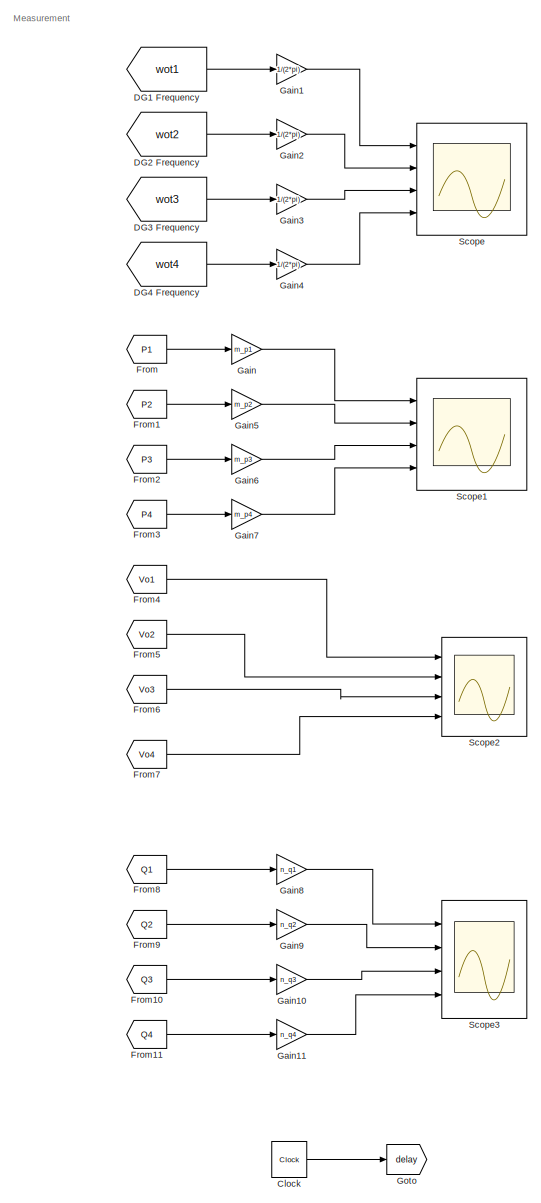
[diagram: root canvas - part 1/3, center side, full height]
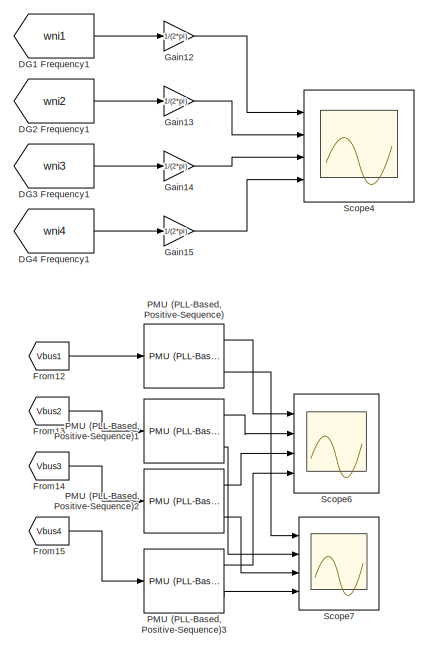
[diagram: root canvas - part 2/3, top right region]
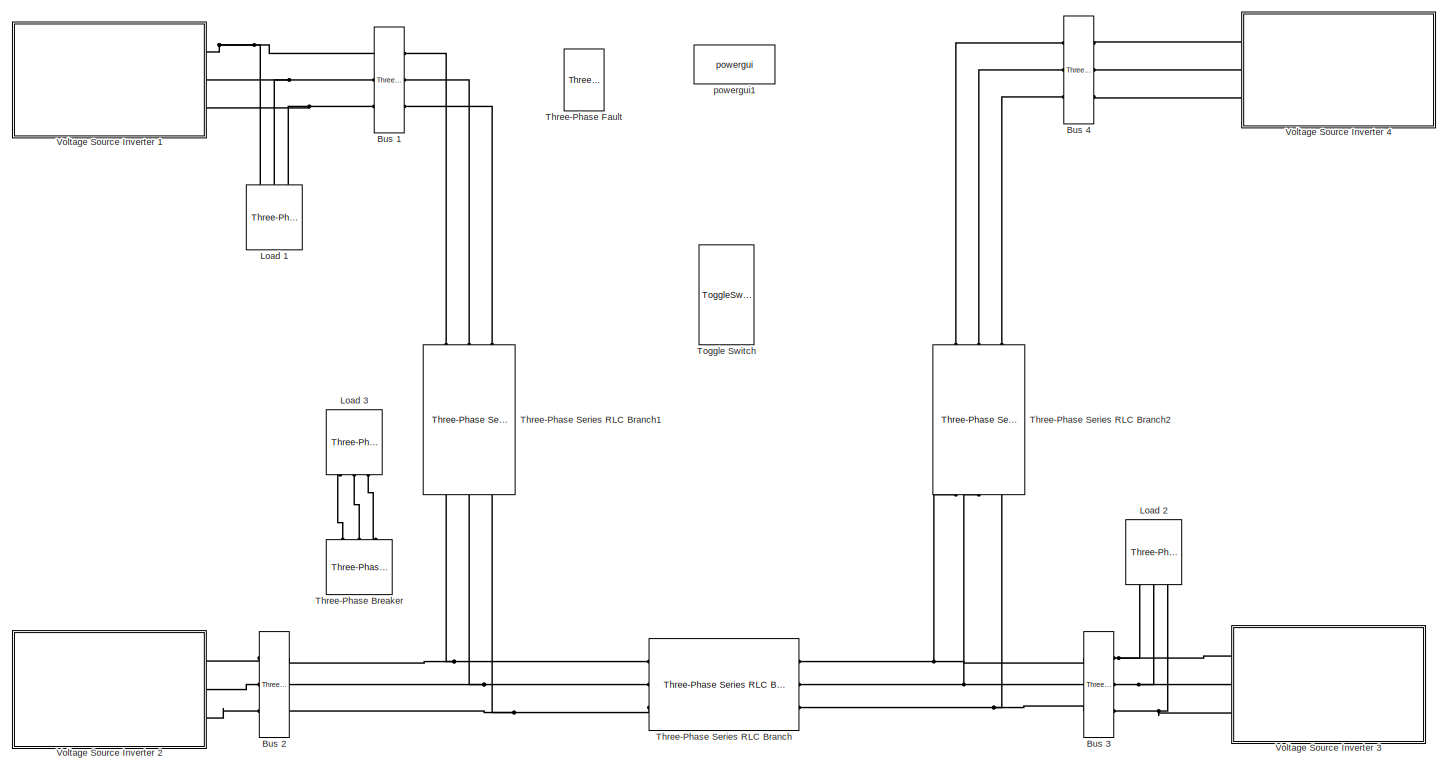
[diagram: root canvas - part 3/3, middle left region]
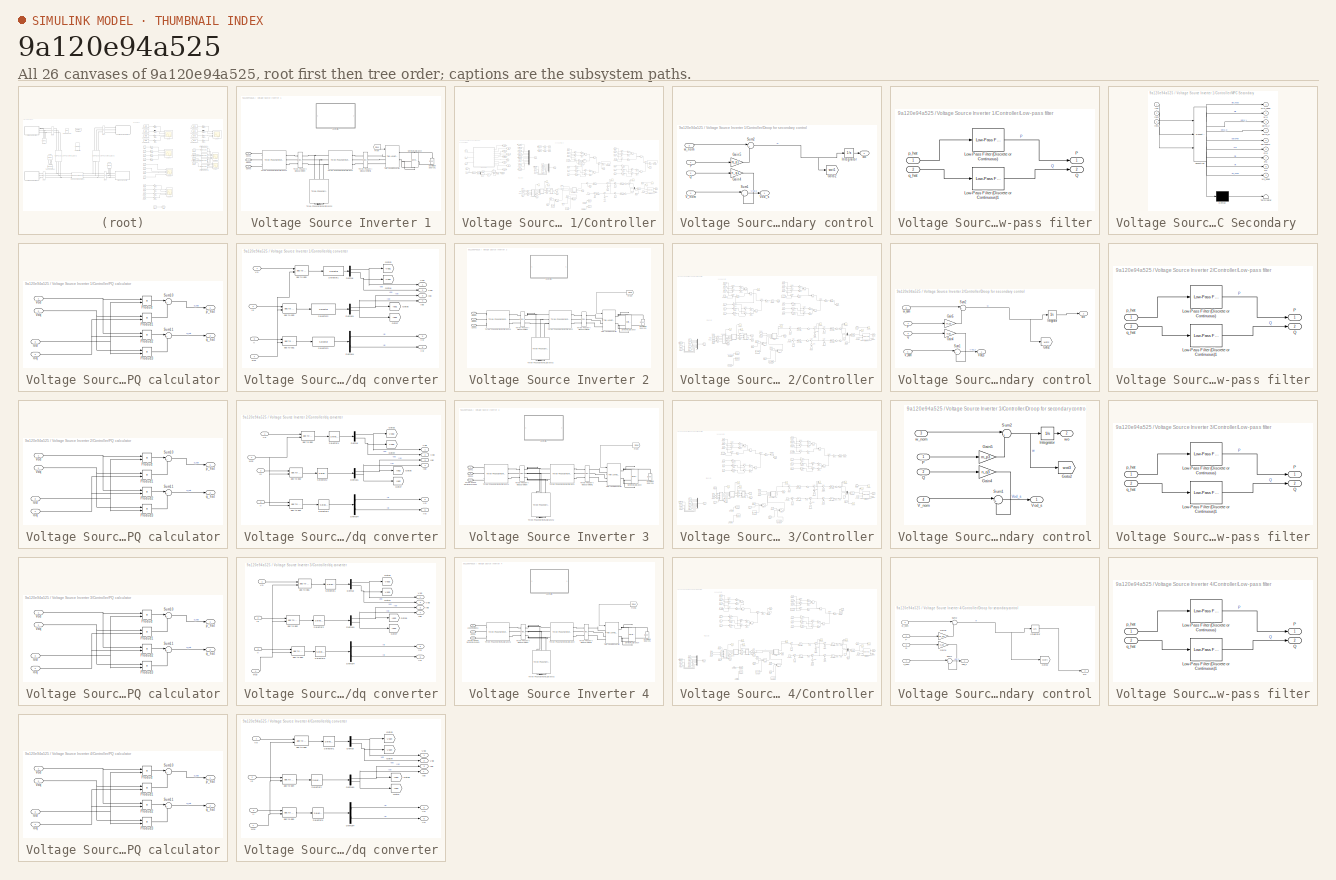
[diagram: thumbnail index - all 26 canvases of the model, root first then tree order]
MODEL slx_9a120e94a525
KIND model
CONFIG AbsTol = auto
CONFIG EnableMultiTasking = off
CONFIG FixedStep = auto
CONFIG MaxStep = auto
CONFIG MinStep = auto
CONFIG RelTol = 1e-3
CONFIG SampleTimeConstraint = Unconstrained
CONFIG SolverName = ode23tb
CONFIG StartTime = 0.0
CONFIG StopTime = 10
WORKSPACE source: mxarray member
WORKSPACE Ts: Simulink.Parameter (value not decoded)
WORKSPACE secondary_on: Simulink.Parameter (value not decoded)
BLOCK [Reference] Bus 1  REF=spsThreePhaseVIMeasurementLib/Three-Phase
V-I Measurement
  Ports = [0, 0, 0, 0, 0, 3, 3]
  SourceBlock = spsThreePhaseVIMeasurementLib/Three-Phase\nV-I Measurement
  SourceProductBaseCode = PS
  SourceType = Three-Phase VI Measurement
BLOCK [Reference] Bus 2  REF=spsThreePhaseVIMeasurementLib/Three-Phase
V-I Measurement
  Ports = [0, 0, 0, 0, 0, 3, 3]
  SourceBlock = spsThreePhaseVIMeasurementLib/Three-Phase\nV-I Measurement
  SourceProductBaseCode = PS
  SourceType = Three-Phase VI Measurement
BLOCK [Reference] Bus 3  REF=spsThreePhaseVIMeasurementLib/Three-Phase
V-I Measurement
  Ports = [0, 0, 0, 0, 0, 3, 3]
  SourceBlock = spsThreePhaseVIMeasurementLib/Three-Phase\nV-I Measurement
  SourceProductBaseCode = PS
  SourceType = Three-Phase VI Measurement
BLOCK [Reference] Bus 4  REF=spsThreePhaseVIMeasurementLib/Three-Phase
V-I Measurement
  Ports = [0, 0, 0, 0, 0, 3, 3]
  SourceBlock = spsThreePhaseVIMeasurementLib/Three-Phase\nV-I Measurement
  SourceProductBaseCode = PS
  SourceType = Three-Phase VI Measurement
BLOCK [Clock] Clock
  DisplayTime = on
BLOCK [From] DG1 Frequency
  GotoTag = wot1
  TagVisibility = global
BLOCK [From] DG1 Frequency1
  GotoTag = wni1
  TagVisibility = global
BLOCK [From] DG2 Frequency
  GotoTag = wot2
  TagVisibility = global
BLOCK [From] DG2 Frequency1
  GotoTag = wni2
  TagVisibility = global
BLOCK [From] DG3 Frequency
  GotoTag = wot3
  TagVisibility = global
BLOCK [From] DG3 Frequency1
  GotoTag = wni3
  TagVisibility = global
BLOCK [From] DG4 Frequency
  GotoTag = wot4
  TagVisibility = global
BLOCK [From] DG4 Frequency1
  GotoTag = wni4
  TagVisibility = global
BLOCK [From] From
  GotoTag = P1
  TagVisibility = global
BLOCK [From] From1
  GotoTag = P2
  TagVisibility = global
BLOCK [From] From10
  GotoTag = Q3
  TagVisibility = global
BLOCK [From] From11
  GotoTag = Q4
  TagVisibility = global
BLOCK [From] From12
  GotoTag = Vbus1
  TagVisibility = global
BLOCK [From] From13
  GotoTag = Vbus2
  TagVisibility = global
BLOCK [From] From14
  GotoTag = Vbus3
  TagVisibility = global
BLOCK [From] From15
  GotoTag = Vbus4
  TagVisibility = global
BLOCK [From] From2
  GotoTag = P3
  TagVisibility = global
BLOCK [From] From3
  GotoTag = P4
  TagVisibility = global
BLOCK [From] From4
  GotoTag = Vo1
  TagVisibility = global
BLOCK [From] From5
  GotoTag = Vo2
  TagVisibility = global
BLOCK [From] From6
  GotoTag = Vo3
  TagVisibility = global
BLOCK [From] From7
  GotoTag = Vo4
  TagVisibility = global
BLOCK [From] From8
  GotoTag = Q1
  TagVisibility = global
BLOCK [From] From9
  GotoTag = Q2
  TagVisibility = global
BLOCK [Gain] Gain
  Gain = m_p1
BLOCK [Gain] Gain1
  Gain = 1/(2*pi)
BLOCK [Gain] Gain10
  Gain = n_q3
BLOCK [Gain] Gain11
  Gain = n_q4
BLOCK [Gain] Gain12
  Gain = 1/(2*pi)
BLOCK [Gain] Gain13
  Gain = 1/(2*pi)
BLOCK [Gain] Gain14
  Gain = 1/(2*pi)
BLOCK [Gain] Gain15
  Gain = 1/(2*pi)
BLOCK [Gain] Gain2
  Gain = 1/(2*pi)
BLOCK [Gain] Gain3
  Gain = 1/(2*pi)
BLOCK [Gain] Gain4
  Gain = 1/(2*pi)
BLOCK [Gain] Gain5
  Gain = m_p2
BLOCK [Gain] Gain6
  Gain = m_p3
BLOCK [Gain] Gain7
  Gain = m_p4
BLOCK [Gain] Gain8
  Gain = n_q1
BLOCK [Gain] Gain9
  Gain = n_q2
BLOCK [Goto] Goto
  GotoTag = delay
  TagVisibility = global
BLOCK [Reference] Load 1  REF=spsThreePhaseSeriesRLCLoadLib/Three-Phase
Series RLC Load
  AttributesFormatString = \n
  NameLocation = right
  Ports = [0, 0, 0, 0, 0, 3]
  SourceBlock = spsThreePhaseSeriesRLCLoadLib/Three-Phase\nSeries RLC Load
  SourceProductBaseCode = PS
  SourceType = Three-Phase Series RLC Load
BLOCK [Reference] Load 2  REF=spsThreePhaseSeriesRLCLoadLib/Three-Phase
Series RLC Load
  AttributesFormatString = \n
  NameLocation = right
  Ports = [0, 0, 0, 0, 0, 3]
  SourceBlock = spsThreePhaseSeriesRLCLoadLib/Three-Phase\nSeries RLC Load
  SourceProductBaseCode = PS
  SourceType = Three-Phase Series RLC Load
BLOCK [Reference] Load 3  REF=spsThreePhaseSeriesRLCLoadLib/Three-Phase
Series RLC Load
  AttributesFormatString = \n
  NameLocation = left
  Ports = [0, 0, 0, 0, 0, 3]
  SourceBlock = spsThreePhaseSeriesRLCLoadLib/Three-Phase\nSeries RLC Load
  SourceProductBaseCode = PS
  SourceType = Three-Phase Series RLC Load
BLOCK [Reference] PMU (PLL-Based, Positive-Sequence)  REF=spsPMUPLLBasedPositiveSequenceLib/PMU
(PLL-Based,
Positive-Sequence)
  Ports = [1, 3]
  SourceBlock = spsPMUPLLBasedPositiveSequenceLib/PMU\n(PLL-Based,\nPositive-Sequence)
  SourceProductBaseCode = PS
  SourceType = PMU (PLL-Based, Positive-Sequence)
BLOCK [Reference] PMU (PLL-Based, Positive-Sequence)1  REF=spsPMUPLLBasedPositiveSequenceLib/PMU
(PLL-Based,
Positive-Sequence)
  Ports = [1, 3]
  SourceBlock = spsPMUPLLBasedPositiveSequenceLib/PMU\n(PLL-Based,\nPositive-Sequence)
  SourceProductBaseCode = PS
  SourceType = PMU (PLL-Based, Positive-Sequence)
BLOCK [Reference] PMU (PLL-Based, Positive-Sequence)2  REF=spsPMUPLLBasedPositiveSequenceLib/PMU
(PLL-Based,
Positive-Sequence)
  Ports = [1, 3]
  SourceBlock = spsPMUPLLBasedPositiveSequenceLib/PMU\n(PLL-Based,\nPositive-Sequence)
  SourceProductBaseCode = PS
  SourceType = PMU (PLL-Based, Positive-Sequence)
BLOCK [Reference] PMU (PLL-Based, Positive-Sequence)3  REF=spsPMUPLLBasedPositiveSequenceLib/PMU
(PLL-Based,
Positive-Sequence)
  Ports = [1, 3]
  SourceBlock = spsPMUPLLBasedPositiveSequenceLib/PMU\n(PLL-Based,\nPositive-Sequence)
  SourceProductBaseCode = PS
  SourceType = PMU (PLL-Based, Positive-Sequence)
BLOCK [Scope] Scope
  Floating = off
  NumInputPorts = 4
  Ports = [4]
  ScopeSpecificationString = Simulink.scopes.TimeScopeBlockCfg('CurrentConfiguration', extmgr.ConfigurationSet(extmgr.Configuration('Core','General UI',true,'FigureColor',[1 1 1]),extmgr.Configuration('Core','Source UI',true),extmgr.Configuration('Sources','WiredSimulink',true,'DataLoggingVariableName','ScopeData1'),extmgr.Configuration('Visuals','Time Domain',true,'SerializedDisplays',{struct('MinYLimReal','49.60348','MaxYLi...<+2287ch>
BLOCK [Scope] Scope1
  Floating = off
  NumInputPorts = 4
  Ports = [4]
  ScopeSpecificationString = Simulink.scopes.TimeScopeBlockCfg('CurrentConfiguration', extmgr.ConfigurationSet(extmgr.Configuration('Core','General UI',true,'FigureColor',[1 1 1]),extmgr.Configuration('Core','Source UI',true),extmgr.Configuration('Sources','WiredSimulink',true,'DataLoggingVariableName','ScopeData1'),extmgr.Configuration('Visuals','Time Domain',true,'SerializedDisplays',{struct('MinYLimReal','-1.83894','MaxYLi...<+1945ch>
BLOCK [Scope] Scope2
  Floating = off
  NumInputPorts = 4
  Ports = [4]
  ScopeSpecificationString = Simulink.scopes.TimeScopeBlockCfg('CurrentConfiguration', extmgr.ConfigurationSet(extmgr.Configuration('Core','General UI',true,'FigureColor',[1 1 1]),extmgr.Configuration('Core','Source UI',true),extmgr.Configuration('Sources','WiredSimulink',true,'DataLoggingVariableName','ScopeData2'),extmgr.Configuration('Visuals','Time Domain',true,'SerializedDisplays',{struct('MinYLimReal','-341.47125','MaxY...<+4454ch>
BLOCK [Scope] Scope3
  Floating = off
  NumInputPorts = 4
  Ports = [4]
  ScopeSpecificationString = Simulink.scopes.TimeScopeBlockCfg('CurrentConfiguration', extmgr.ConfigurationSet(extmgr.Configuration('Core','General UI',true),extmgr.Configuration('Core','Source UI',true),extmgr.Configuration('Sources','WiredSimulink',true,'DataLoggingVariableName','ScopeData3'),extmgr.Configuration('Visuals','Time Domain',true,'SerializedDisplays',{struct('MinYLimReal','-21.21342','MaxYLimReal','10.77202','YL...<+1472ch>
BLOCK [Scope] Scope4
  Floating = off
  NumInputPorts = 4
  Ports = [4]
  ScopeSpecificationString = Simulink.scopes.TimeScopeBlockCfg('CurrentConfiguration', extmgr.ConfigurationSet(extmgr.Configuration('Core','General UI',true,'FigureColor',[1 1 1]),extmgr.Configuration('Core','Source UI',true),extmgr.Configuration('Sources','WiredSimulink',true,'DataLoggingVariableName','ScopeData1'),extmgr.Configuration('Visuals','Time Domain',true,'SerializedDisplays',{struct('MinYLimReal','49.08707','MaxYLi...<+1960ch>
BLOCK [Scope] Scope6
  Floating = off
  NumInputPorts = 4
  Ports = [4]
  ScopeSpecificationString = Simulink.scopes.TimeScopeBlockCfg('CurrentConfiguration', extmgr.ConfigurationSet(extmgr.Configuration('Core','General UI',true,'FigureColor',[1 1 1]),extmgr.Configuration('Core','Source UI',true),extmgr.Configuration('Sources','WiredSimulink',true,'DataLoggingVariableName','ScopeData1'),extmgr.Configuration('Visuals','Time Domain',true,'SerializedDisplays',{struct('MinYLimReal','0.77004','MaxYLim...<+4385ch>
BLOCK [Scope] Scope7
  Floating = off
  NumInputPorts = 4
  Ports = [4]
  ScopeSpecificationString = Simulink.scopes.TimeScopeBlockCfg('CurrentConfiguration', extmgr.ConfigurationSet(extmgr.Configuration('Core','General UI',true,'FigureColor',[1 1 1]),extmgr.Configuration('Core','Source UI',true),extmgr.Configuration('Sources','WiredSimulink',true,'DataLoggingVariableName','ScopeData1'),extmgr.Configuration('Visuals','Time Domain',true,'SerializedDisplays',{struct('MinYLimReal','49.55323','MaxYLi...<+1950ch>
BLOCK [Reference] Three-Phase Breaker  REF=spsThreePhaseBreakerLib/Three-Phase Breaker
  NameLocation = right
  Ports = [0, 0, 0, 0, 0, 3, 3]
  SourceBlock = spsThreePhaseBreakerLib/Three-Phase Breaker
  SourceProductBaseCode = PS
  SourceType = Three-Phase Breaker
BLOCK [Reference] Three-Phase Fault  REF=spsThreePhaseFaultLib/Three-Phase Fault
  Commented = on
  Ports = [0, 0, 0, 0, 0, 3]
  SourceBlock = spsThreePhaseFaultLib/Three-Phase Fault
  SourceProductBaseCode = PS
  SourceType = Three-Phase Fault
BLOCK [Reference] Three-Phase Series RLC Branch  REF=spsThreePhaseSeriesRLCBranchLib/Three-Phase
Series RLC Branch
  AttributesFormatString = \n
  Ports = [0, 0, 0, 0, 0, 3, 3]
  SourceBlock = spsThreePhaseSeriesRLCBranchLib/Three-Phase\nSeries RLC Branch
  SourceProductBaseCode = PS
  SourceType = Three-Phase Series RLC Branch
BLOCK [Reference] Three-Phase Series RLC Branch1  REF=spsThreePhaseSeriesRLCBranchLib/Three-Phase
Series RLC Branch
  AttributesFormatString = \n
  NameLocation = left
  Ports = [0, 0, 0, 0, 0, 3, 3]
  SourceBlock = spsThreePhaseSeriesRLCBranchLib/Three-Phase\nSeries RLC Branch
  SourceProductBaseCode = PS
  SourceType = Three-Phase Series RLC Branch
BLOCK [Reference] Three-Phase Series RLC Branch2  REF=spsThreePhaseSeriesRLCBranchLib/Three-Phase
Series RLC Branch
  AttributesFormatString = \n
  NameLocation = left
  Ports = [0, 0, 0, 0, 0, 3, 3]
  SourceBlock = spsThreePhaseSeriesRLCBranchLib/Three-Phase\nSeries RLC Branch
  SourceProductBaseCode = PS
  SourceType = Three-Phase Series RLC Branch
BLOCK [ToggleSwitchBlock] Toggle Switch
BLOCK [SubSystem] Voltage Source Inverter 1
  Ports = [0, 0, 0, 0, 0, 3]
  RequestExecContextInheritance = off
BLOCK [PMIOPort] Voltage Source Inverter 1/Conn1
  Side = Left
BLOCK [PMIOPort] Voltage Source Inverter 1/Conn2
  Port = 2
  Side = Left
BLOCK [PMIOPort] Voltage Source Inverter 1/Conn3
  Port = 3
  Side = Left
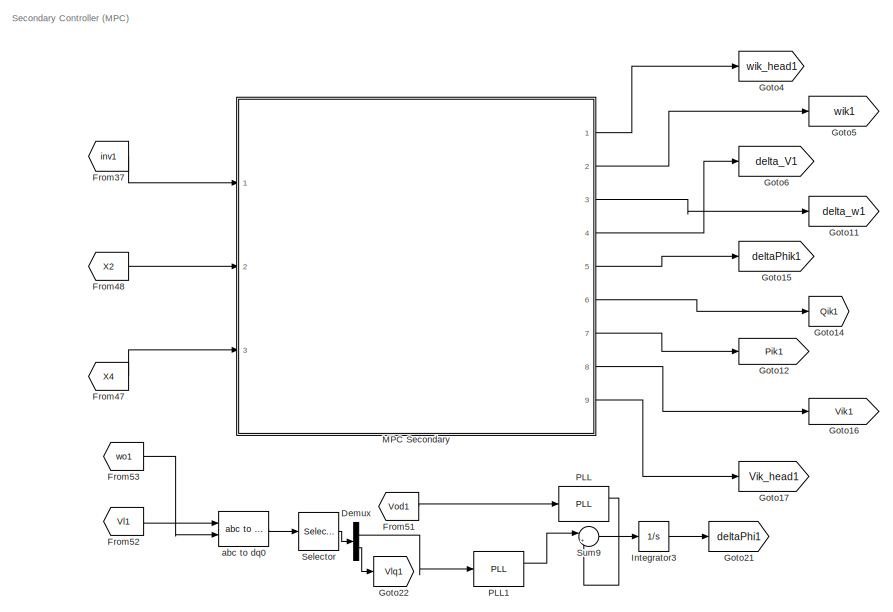
[diagram: Voltage Source Inverter 1/Controller - part 1/5, top left region]
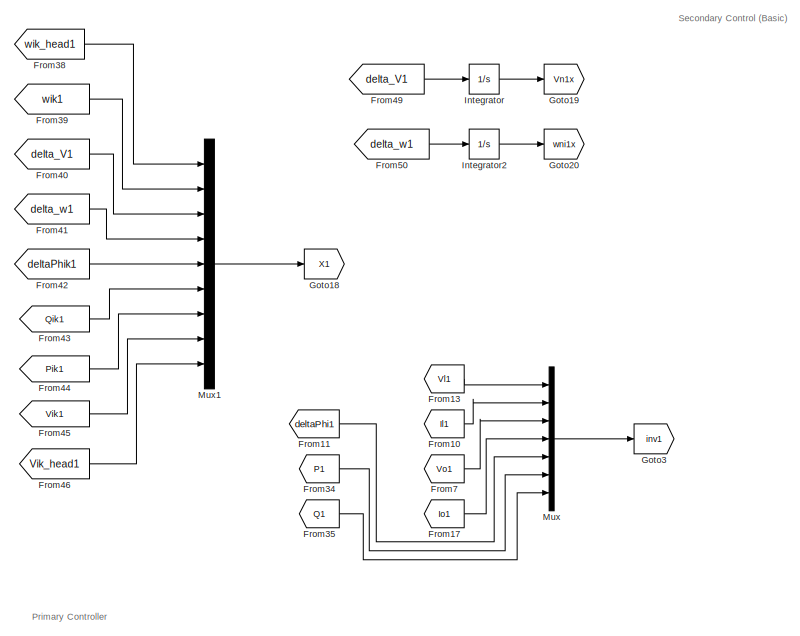
[diagram: Voltage Source Inverter 1/Controller - part 2/5, top center region]
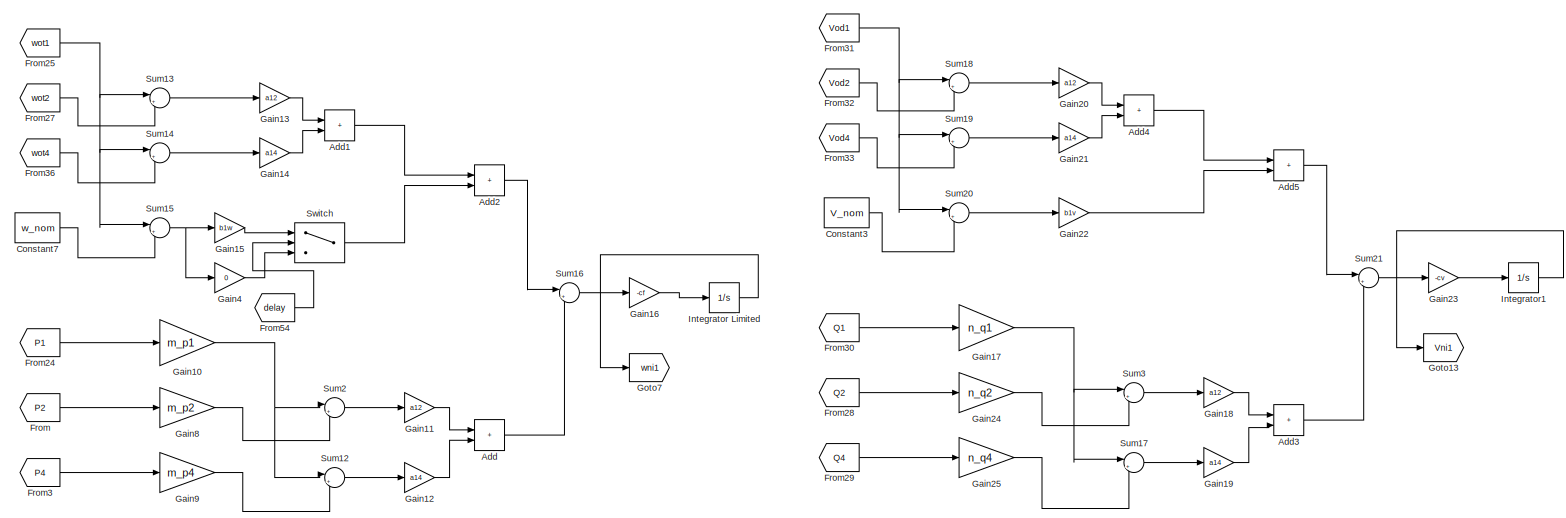
[diagram: Voltage Source Inverter 1/Controller - part 3/5, top right region]
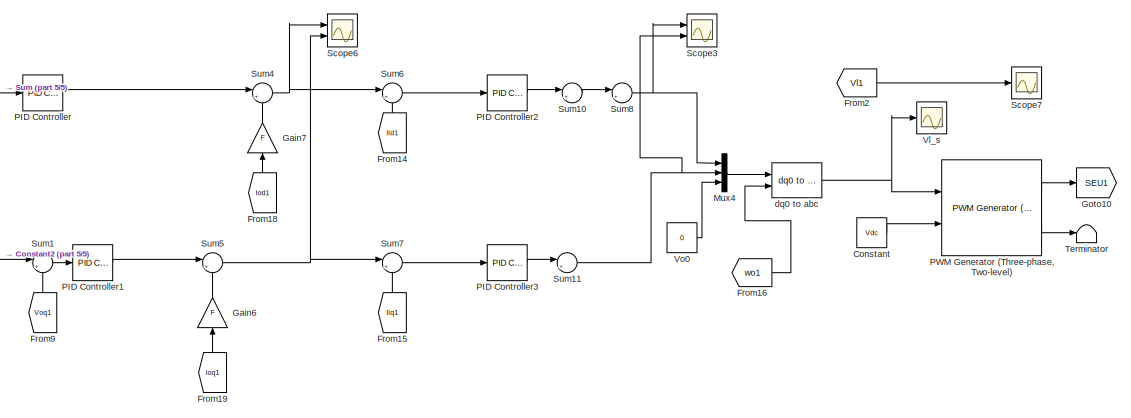
[diagram: Voltage Source Inverter 1/Controller - part 4/5, bottom right region]
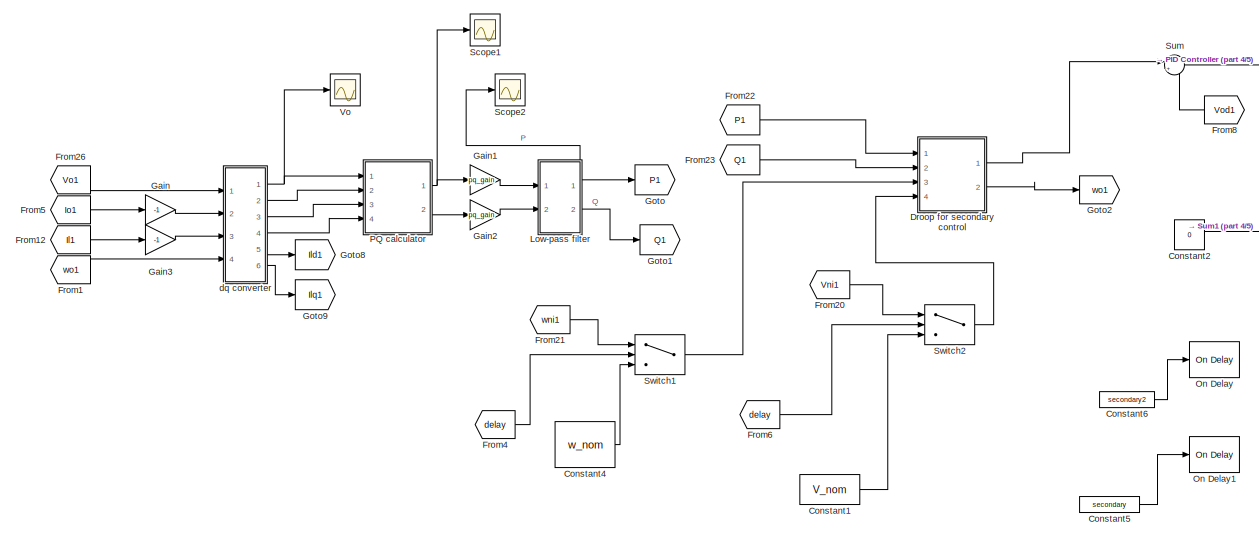
[diagram: Voltage Source Inverter 1/Controller - part 5/5, bottom center region]
BLOCK [SubSystem] Voltage Source Inverter 1/Controller
  Ports = []
  RequestExecContextInheritance = off
BLOCK [Sum] Voltage Source Inverter 1/Controller/Add
  IconShape = rectangular
  Ports = [2, 1]
BLOCK [Sum] Voltage Source Inverter 1/Controller/Add1
  IconShape = rectangular
  Ports = [2, 1]
BLOCK [Sum] Voltage Source Inverter 1/Controller/Add2
  IconShape = rectangular
  Ports = [2, 1]
BLOCK [Sum] Voltage Source Inverter 1/Controller/Add3
  IconShape = rectangular
  Ports = [2, 1]
BLOCK [Sum] Voltage Source Inverter 1/Controller/Add4
  IconShape = rectangular
  Ports = [2, 1]
BLOCK [Sum] Voltage Source Inverter 1/Controller/Add5
  IconShape = rectangular
  Ports = [2, 1]
BLOCK [Constant] Voltage Source Inverter 1/Controller/Constant
  Value = Vdc
BLOCK [Constant] Voltage Source Inverter 1/Controller/Constant1
  Value = V_nom
BLOCK [Constant] Voltage Source Inverter 1/Controller/Constant2
  Value = 0
BLOCK [Constant] Voltage Source Inverter 1/Controller/Constant3
  Value = V_nom
BLOCK [Constant] Voltage Source Inverter 1/Controller/Constant4
  Value = w_nom
BLOCK [Constant] Voltage Source Inverter 1/Controller/Constant5
  Value = secondary
BLOCK [Constant] Voltage Source Inverter 1/Controller/Constant6
  Value = secondary2
BLOCK [Constant] Voltage Source Inverter 1/Controller/Constant7
  Value = w_nom
BLOCK [Demux] Voltage Source Inverter 1/Controller/Demux
  Commented = on
  Outputs = 2
  Ports = [1, 2]
BLOCK [SubSystem] Voltage Source Inverter 1/Controller/Droop for secondary control
  Ports = [4, 2]
  RequestExecContextInheritance = off
BLOCK [Gain] Voltage Source Inverter 1/Controller/Droop for secondary control/Gain4
  Gain = n_q1
BLOCK [Gain] Voltage Source Inverter 1/Controller/Droop for secondary control/Gain5
  Gain = m_p1
BLOCK [Goto] Voltage Source Inverter 1/Controller/Droop for secondary control/Goto2
  GotoTag = wot1
  TagVisibility = global
BLOCK [Integrator] Voltage Source Inverter 1/Controller/Droop for secondary control/Integrator
  Ports = [1, 1]
  WrapState = on
  WrappedStateLowerValue = 0
  WrappedStateUpperValue = 2*pi
BLOCK [Inport] Voltage Source Inverter 1/Controller/Droop for secondary control/P
BLOCK [Inport] Voltage Source Inverter 1/Controller/Droop for secondary control/Q
  Port = 2
BLOCK [Sum] Voltage Source Inverter 1/Controller/Droop for secondary control/Sum1
  Inputs = |+-
  Ports = [2, 1]
BLOCK [Sum] Voltage Source Inverter 1/Controller/Droop for secondary control/Sum2
  Inputs = |+-
  Ports = [2, 1]
BLOCK [Inport] Voltage Source Inverter 1/Controller/Droop for secondary control/V_nom
  Port = 4
BLOCK [Outport] Voltage Source Inverter 1/Controller/Droop for secondary control/Vod_s
BLOCK [Inport] Voltage Source Inverter 1/Controller/Droop for secondary control/w_nom
  Port = 3
BLOCK [Outport] Voltage Source Inverter 1/Controller/Droop for secondary control/wo
  Port = 2
BLOCK [From] Voltage Source Inverter 1/Controller/From
  GotoTag = P2
  TagVisibility = global
BLOCK [From] Voltage Source Inverter 1/Controller/From1
  GotoTag = wo1
  TagVisibility = global
BLOCK [From] Voltage Source Inverter 1/Controller/From10
  Commented = on
  GotoTag = Il1
  TagVisibility = global
BLOCK [From] Voltage Source Inverter 1/Controller/From11
  Commented = on
  GotoTag = deltaPhi1
  TagVisibility = global
BLOCK [From] Voltage Source Inverter 1/Controller/From12
  GotoTag = Il1
  TagVisibility = global
BLOCK [From] Voltage Source Inverter 1/Controller/From13
  Commented = on
  GotoTag = Vl1
  TagVisibility = global
BLOCK [From] Voltage Source Inverter 1/Controller/From14
  GotoTag = Ild1
  NameLocation = right
  TagVisibility = global
BLOCK [From] Voltage Source Inverter 1/Controller/From15
  GotoTag = Ilq1
  NameLocation = right
  TagVisibility = global
BLOCK [From] Voltage Source Inverter 1/Controller/From16
  GotoTag = wo1
  TagVisibility = global
BLOCK [From] Voltage Source Inverter 1/Controller/From17
  Commented = on
  GotoTag = Io1
  TagVisibility = global
BLOCK [From] Voltage Source Inverter 1/Controller/From18
  GotoTag = Iod1
  NameLocation = right
  TagVisibility = global
BLOCK [From] Voltage Source Inverter 1/Controller/From19
  GotoTag = Ioq1
  NameLocation = right
  TagVisibility = global
BLOCK [From] Voltage Source Inverter 1/Controller/From2
  GotoTag = Vl1
  TagVisibility = global
BLOCK [From] Voltage Source Inverter 1/Controller/From20
  GotoTag = Vni1
  TagVisibility = global
BLOCK [From] Voltage Source Inverter 1/Controller/From21
  GotoTag = wni1
  TagVisibility = global
BLOCK [From] Voltage Source Inverter 1/Controller/From22
  GotoTag = P1
  TagVisibility = global
BLOCK [From] Voltage Source Inverter 1/Controller/From23
  GotoTag = Q1
  TagVisibility = global
BLOCK [From] Voltage Source Inverter 1/Controller/From24
  GotoTag = P1
  TagVisibility = global
BLOCK [From] Voltage Source Inverter 1/Controller/From25
  GotoTag = wot1
  TagVisibility = global
BLOCK [From] Voltage Source Inverter 1/Controller/From26
  GotoTag = Vo1
  TagVisibility = global
BLOCK [From] Voltage Source Inverter 1/Controller/From27
  GotoTag = wot2
  TagVisibility = global
BLOCK [From] Voltage Source Inverter 1/Controller/From28
  GotoTag = Q2
  TagVisibility = global
BLOCK [From] Voltage Source Inverter 1/Controller/From29
  GotoTag = Q4
  TagVisibility = global
BLOCK [From] Voltage Source Inverter 1/Controller/From3
  GotoTag = P4
  TagVisibility = global
BLOCK [From] Voltage Source Inverter 1/Controller/From30
  GotoTag = Q1
  TagVisibility = global
BLOCK [From] Voltage Source Inverter 1/Controller/From31
  GotoTag = Vod1
  TagVisibility = global
BLOCK [From] Voltage Source Inverter 1/Controller/From32
  GotoTag = Vod2
  TagVisibility = global
BLOCK [From] Voltage Source Inverter 1/Controller/From33
  GotoTag = Vod4
  TagVisibility = global
BLOCK [From] Voltage Source Inverter 1/Controller/From34
  Commented = on
  GotoTag = P1
  TagVisibility = global
BLOCK [From] Voltage Source Inverter 1/Controller/From35
  Commented = on
  GotoTag = Q1
  TagVisibility = global
BLOCK [From] Voltage Source Inverter 1/Controller/From36
  GotoTag = wot4
  TagVisibility = global
BLOCK [From] Voltage Source Inverter 1/Controller/From37
  Commented = on
  GotoTag = inv1
  TagVisibility = global
BLOCK [From] Voltage Source Inverter 1/Controller/From38
  Commented = on
  GotoTag = wik_head1
  TagVisibility = global
BLOCK [From] Voltage Source Inverter 1/Controller/From39
  Commented = on
  GotoTag = wik1
  TagVisibility = global
BLOCK [From] Voltage Source Inverter 1/Controller/From4
  GotoTag = delay
  TagVisibility = global
BLOCK [From] Voltage Source Inverter 1/Controller/From40
  Commented = on
  GotoTag = delta_V1
  TagVisibility = global
BLOCK [From] Voltage Source Inverter 1/Controller/From41
  Commented = on
  GotoTag = delta_w1
  TagVisibility = global
BLOCK [From] Voltage Source Inverter 1/Controller/From42
  Commented = on
  GotoTag = deltaPhik1
  TagVisibility = global
BLOCK [From] Voltage Source Inverter 1/Controller/From43
  Commented = on
  GotoTag = Qik1
  TagVisibility = global
BLOCK [From] Voltage Source Inverter 1/Controller/From44
  Commented = on
  GotoTag = Pik1
  TagVisibility = global
BLOCK [From] Voltage Source Inverter 1/Controller/From45
  Commented = on
  GotoTag = Vik1
  TagVisibility = global
BLOCK [From] Voltage Source Inverter 1/Controller/From46
  Commented = on
  GotoTag = Vik_head1
  TagVisibility = global
BLOCK [From] Voltage Source Inverter 1/Controller/From47
  Commented = on
  GotoTag = X4
BLOCK [From] Voltage Source Inverter 1/Controller/From48
  Commented = on
  GotoTag = X2
BLOCK [From] Voltage Source Inverter 1/Controller/From49
  Commented = on
  GotoTag = delta_V1
  TagVisibility = global
BLOCK [From] Voltage Source Inverter 1/Controller/From5
  GotoTag = Io1
  TagVisibility = global
BLOCK [From] Voltage Source Inverter 1/Controller/From50
  Commented = on
  GotoTag = delta_w1
  TagVisibility = global
BLOCK [From] Voltage Source Inverter 1/Controller/From51
  Commented = on
  GotoTag = Vod1
  TagVisibility = global
BLOCK [From] Voltage Source Inverter 1/Controller/From52
  Commented = on
  GotoTag = Vl1
  TagVisibility = global
BLOCK [From] Voltage Source Inverter 1/Controller/From53
  Commented = on
  GotoTag = wo1
  TagVisibility = global
BLOCK [From] Voltage Source Inverter 1/Controller/From54
  GotoTag = delay
  TagVisibility = global
BLOCK [From] Voltage Source Inverter 1/Controller/From6
  GotoTag = delay
  TagVisibility = global
BLOCK [From] Voltage Source Inverter 1/Controller/From7
  Commented = on
  GotoTag = Vo1
  TagVisibility = global
BLOCK [From] Voltage Source Inverter 1/Controller/From8
  GotoTag = Vod1
  NameLocation = top
  TagVisibility = global
BLOCK [From] Voltage Source Inverter 1/Controller/From9
  GotoTag = Voq1
  NameLocation = right
  TagVisibility = global
BLOCK [Gain] Voltage Source Inverter 1/Controller/Gain
  Gain = -1
BLOCK [Gain] Voltage Source Inverter 1/Controller/Gain1
  Gain = pq_gain
BLOCK [Gain] Voltage Source Inverter 1/Controller/Gain10
  Gain = m_p1
BLOCK [Gain] Voltage Source Inverter 1/Controller/Gain11
  Gain = a12
BLOCK [Gain] Voltage Source Inverter 1/Controller/Gain12
  Gain = a14
BLOCK [Gain] Voltage Source Inverter 1/Controller/Gain13
  Gain = a12
BLOCK [Gain] Voltage Source Inverter 1/Controller/Gain14
  Gain = a14
BLOCK [Gain] Voltage Source Inverter 1/Controller/Gain15
  Gain = b1w
BLOCK [Gain] Voltage Source Inverter 1/Controller/Gain16
  Gain = -cf
BLOCK [Gain] Voltage Source Inverter 1/Controller/Gain17
  Gain = n_q1
BLOCK [Gain] Voltage Source Inverter 1/Controller/Gain18
  Gain = a12
BLOCK [Gain] Voltage Source Inverter 1/Controller/Gain19
  Gain = a14
BLOCK [Gain] Voltage Source Inverter 1/Controller/Gain2
  Gain = pq_gain
BLOCK [Gain] Voltage Source Inverter 1/Controller/Gain20
  Gain = a12
BLOCK [Gain] Voltage Source Inverter 1/Controller/Gain21
  Gain = a14
BLOCK [Gain] Voltage Source Inverter 1/Controller/Gain22
  Gain = b1v
BLOCK [Gain] Voltage Source Inverter 1/Controller/Gain23
  Gain = -cv
BLOCK [Gain] Voltage Source Inverter 1/Controller/Gain24
  Gain = n_q2
BLOCK [Gain] Voltage Source Inverter 1/Controller/Gain25
  Gain = n_q4
BLOCK [Gain] Voltage Source Inverter 1/Controller/Gain3
  Gain = -1
BLOCK [Gain] Voltage Source Inverter 1/Controller/Gain4
  Gain = 0
BLOCK [Gain] Voltage Source Inverter 1/Controller/Gain6
  Gain = F
  NameLocation = right
BLOCK [Gain] Voltage Source Inverter 1/Controller/Gain7
  Gain = F
  NameLocation = right
BLOCK [Gain] Voltage Source Inverter 1/Controller/Gain8
  Gain = m_p2
BLOCK [Gain] Voltage Source Inverter 1/Controller/Gain9
  Gain = m_p4
BLOCK [Goto] Voltage Source Inverter 1/Controller/Goto
  GotoTag = P1
  TagVisibility = global
BLOCK [Goto] Voltage Source Inverter 1/Controller/Goto1
  GotoTag = Q1
  TagVisibility = global
BLOCK [Goto] Voltage Source Inverter 1/Controller/Goto10
  GotoTag = SEU1
  TagVisibility = global
BLOCK [Goto] Voltage Source Inverter 1/Controller/Goto11
  Commented = on
  GotoTag = delta_w1
  TagVisibility = global
BLOCK [Goto] Voltage Source Inverter 1/Controller/Goto12
  Commented = on
  GotoTag = Pik1
  TagVisibility = global
BLOCK [Goto] Voltage Source Inverter 1/Controller/Goto13
  GotoTag = Vni1
  TagVisibility = global
BLOCK [Goto] Voltage Source Inverter 1/Controller/Goto14
  Commented = on
  GotoTag = Qik1
  TagVisibility = global
BLOCK [Goto] Voltage Source Inverter 1/Controller/Goto15
  Commented = on
  GotoTag = deltaPhik1
  TagVisibility = global
BLOCK [Goto] Voltage Source Inverter 1/Controller/Goto16
  Commented = on
  GotoTag = Vik1
  TagVisibility = global
BLOCK [Goto] Voltage Source Inverter 1/Controller/Goto17
  Commented = on
  GotoTag = Vik_head1
  TagVisibility = global
BLOCK [Goto] Voltage Source Inverter 1/Controller/Goto18
  Commented = on
  GotoTag = X1
BLOCK [Goto] Voltage Source Inverter 1/Controller/Goto19
  Commented = on
  GotoTag = Vn1x
BLOCK [Goto] Voltage Source Inverter 1/Controller/Goto2
  GotoTag = wo1
  TagVisibility = global
BLOCK [Goto] Voltage Source Inverter 1/Controller/Goto20
  Commented = on
  GotoTag = wni1x
BLOCK [Goto] Voltage Source Inverter 1/Controller/Goto21
  Commented = on
  GotoTag = deltaPhi1
  TagVisibility = global
BLOCK [Goto] Voltage Source Inverter 1/Controller/Goto22
  Commented = on
  GotoTag = Vlq1
  TagVisibility = global
BLOCK [Goto] Voltage Source Inverter 1/Controller/Goto3
  Commented = on
  GotoTag = inv1
  TagVisibility = global
BLOCK [Goto] Voltage Source Inverter 1/Controller/Goto4
  Commented = on
  GotoTag = wik_head1
  TagVisibility = global
BLOCK [Goto] Voltage Source Inverter 1/Controller/Goto5
  Commented = on
  GotoTag = wik1
  TagVisibility = global
BLOCK [Goto] Voltage Source Inverter 1/Controller/Goto6
  Commented = on
  GotoTag = delta_V1
  TagVisibility = global
BLOCK [Goto] Voltage Source Inverter 1/Controller/Goto7
  GotoTag = wni1
  TagVisibility = global
BLOCK [Goto] Voltage Source Inverter 1/Controller/Goto8
  GotoTag = Ild1
  TagVisibility = global
BLOCK [Goto] Voltage Source Inverter 1/Controller/Goto9
  GotoTag = Ilq1
  TagVisibility = global
BLOCK [Integrator] Voltage Source Inverter 1/Controller/Integrator
  Commented = on
  Ports = [1, 1]
BLOCK [Integrator] Voltage Source Inverter 1/Controller/Integrator Limited
  InitialCondition = 50*2*pi
  LowerSaturationLimit = 50*2*pi
  Ports = [1, 1]
  UpperSaturationLimit = 51*2*pi
BLOCK [Integrator] Voltage Source Inverter 1/Controller/Integrator1
  InitialCondition = 311
  LowerSaturationLimit = 248.90
  Ports = [1, 1]
  UpperSaturationLimit = 373.35
BLOCK [Integrator] Voltage Source Inverter 1/Controller/Integrator2
  Commented = on
  Ports = [1, 1]
BLOCK [Integrator] Voltage Source Inverter 1/Controller/Integrator3
  Commented = on
  Ports = [1, 1]
BLOCK [SubSystem] Voltage Source Inverter 1/Controller/Low-pass filter
  Ports = [2, 2]
  RequestExecContextInheritance = off
BLOCK [Reference] Voltage Source Inverter 1/Controller/Low-pass filter/Low-Pass Filter (Discrete or Continuous)  REF=eeGeneralControl/Low-Pass Filter
(Discrete or Continuous)
  Ports = [1, 1]
  SourceBlock = eeGeneralControl/Low-Pass Filter\n(Discrete or Continuous)
  SourceProductBaseCode = PS
  SourceType = Low-Pass Filter (Discrete or Continuous)
BLOCK [Reference] Voltage Source Inverter 1/Controller/Low-pass filter/Low-Pass Filter (Discrete or Continuous)1  REF=eeGeneralControl/Low-Pass Filter
(Discrete or Continuous)
  Ports = [1, 1]
  SourceBlock = eeGeneralControl/Low-Pass Filter\n(Discrete or Continuous)
  SourceProductBaseCode = PS
  SourceType = Low-Pass Filter (Discrete or Continuous)
BLOCK [Outport] Voltage Source Inverter 1/Controller/Low-pass filter/P
BLOCK [Outport] Voltage Source Inverter 1/Controller/Low-pass filter/Q
  Port = 2
BLOCK [Inport] Voltage Source Inverter 1/Controller/Low-pass filter/p_hat
BLOCK [Inport] Voltage Source Inverter 1/Controller/Low-pass filter/q_hat
  Port = 2
BLOCK [SubSystem] Voltage Source Inverter 1/Controller/MPC Secondary  
  Commented = on
  ErrorFcn = Stateflow.Translate.translate
  PermitHierarchicalResolution = ExplicitOnly
  Ports = [3, 9]
  RequestExecContextInheritance = off
  SFBlockType = MATLAB Function
  TreatAsAtomicUnit = on
BLOCK [Demux] Voltage Source Inverter 1/Controller/MPC Secondary  / Demux 
  Outputs = 1
  Ports = [1, 1]
BLOCK [S-Function] Voltage Source Inverter 1/Controller/MPC Secondary  / SFunction 
  EnableBusSupport = on
  FunctionName = sf_sfun
  PortCounts = [3 10]
  Ports = [3, 10]
  SFcnIsStateOwnerBlock = off
  SFunctionDeploymentMode = off
  Tag = Stateflow S-Function 2
BLOCK [Terminator] Voltage Source Inverter 1/Controller/MPC Secondary  / Terminator 
BLOCK [Outport] Voltage Source Inverter 1/Controller/MPC Secondary  /Pik
  Port = 7
BLOCK [Outport] Voltage Source Inverter 1/Controller/MPC Secondary  /Qik
  Port = 6
BLOCK [Outport] Voltage Source Inverter 1/Controller/MPC Secondary  /Vik
  Port = 8
BLOCK [Outport] Voltage Source Inverter 1/Controller/MPC Secondary  /Vik_head
  Port = 9
BLOCK [Outport] Voltage Source Inverter 1/Controller/MPC Secondary  /deltaPhik
  Port = 5
BLOCK [Outport] Voltage Source Inverter 1/Controller/MPC Secondary  /delta_V
  Port = 3
BLOCK [Outport] Voltage Source Inverter 1/Controller/MPC Secondary  /delta_w
  Port = 4
BLOCK [Inport] Voltage Source Inverter 1/Controller/MPC Secondary  /invi
BLOCK [Inport] Voltage Source Inverter 1/Controller/MPC Secondary  /invj1
  Port = 2
BLOCK [Inport] Voltage Source Inverter 1/Controller/MPC Secondary  /invj2
  Port = 3
BLOCK [Outport] Voltage Source Inverter 1/Controller/MPC Secondary  /wik
  Port = 2
BLOCK [Outport] Voltage Source Inverter 1/Controller/MPC Secondary  /wik_head
BLOCK [Mux] Voltage Source Inverter 1/Controller/Mux
  Commented = on
  DisplayOption = bar
  Inputs = 7
  Ports = [7, 1]
BLOCK [Mux] Voltage Source Inverter 1/Controller/Mux1
  Commented = on
  DisplayOption = bar
  Inputs = 9
  Ports = [9, 1]
BLOCK [Mux] Voltage Source Inverter 1/Controller/Mux4
  DisplayOption = bar
  Inputs = 3
  Ports = [3, 1]
BLOCK [Reference] Voltage Source Inverter 1/Controller/On Delay  REF=spsOnDelayLib/On Delay
  Ports = [1, 1]
  SourceBlock = spsOnDelayLib/On Delay
  SourceProductBaseCode = PS
  SourceType = On/Off Delay
BLOCK [Reference] Voltage Source Inverter 1/Controller/On Delay1  REF=spsOnDelayLib/On Delay
  Ports = [1, 1]
  SourceBlock = spsOnDelayLib/On Delay
  SourceProductBaseCode = PS
  SourceType = On/Off Delay
BLOCK [Reference] Voltage Source Inverter 1/Controller/PID Controller  REF=slpidlib/PID Controller
  Ports = [1, 1]
  SourceBlock = slpidlib/PID Controller
  SourceProductBaseCode = SL
  SourceType = PID 1dof
BLOCK [Reference] Voltage Source Inverter 1/Controller/PID Controller1  REF=slpidlib/PID Controller
  Ports = [1, 1]
  SourceBlock = slpidlib/PID Controller
  SourceProductBaseCode = SL
  SourceType = PID 1dof
BLOCK [Reference] Voltage Source Inverter 1/Controller/PID Controller2  REF=slpidlib/PID Controller
  Ports = [1, 1]
  SourceBlock = slpidlib/PID Controller
  SourceProductBaseCode = SL
  SourceType = PID 1dof
BLOCK [Reference] Voltage Source Inverter 1/Controller/PID Controller3  REF=slpidlib/PID Controller
  Ports = [1, 1]
  SourceBlock = slpidlib/PID Controller
  SourceProductBaseCode = SL
  SourceType = PID 1dof
BLOCK [Reference] Voltage Source Inverter 1/Controller/PLL  REF=spsPLLLib/PLL
  Commented = on
  Ports = [1, 2]
  SourceBlock = spsPLLLib/PLL
  SourceProductBaseCode = PS
  SourceType = PLL
BLOCK [Reference] Voltage Source Inverter 1/Controller/PLL1  REF=spsPLLLib/PLL
  Commented = on
  Ports = [1, 2]
  SourceBlock = spsPLLLib/PLL
  SourceProductBaseCode = PS
  SourceType = PLL
BLOCK [SubSystem] Voltage Source Inverter 1/Controller/PQ calculator
  Ports = [4, 2]
  RequestExecContextInheritance = off
BLOCK [Inport] Voltage Source Inverter 1/Controller/PQ calculator/Iod
  Port = 3
BLOCK [Inport] Voltage Source Inverter 1/Controller/PQ calculator/Ioq
  Port = 4
BLOCK [Product] Voltage Source Inverter 1/Controller/PQ calculator/Product
  Ports = [2, 1]
BLOCK [Product] Voltage Source Inverter 1/Controller/PQ calculator/Product1
  Ports = [2, 1]
BLOCK [Product] Voltage Source Inverter 1/Controller/PQ calculator/Product2
  Ports = [2, 1]
BLOCK [Product] Voltage Source Inverter 1/Controller/PQ calculator/Product3
  Ports = [2, 1]
BLOCK [Sum] Voltage Source Inverter 1/Controller/PQ calculator/Sum10
  Inputs = |++
  Ports = [2, 1]
BLOCK [Sum] Voltage Source Inverter 1/Controller/PQ calculator/Sum11
  Inputs = |+-
  Ports = [2, 1]
BLOCK [Inport] Voltage Source Inverter 1/Controller/PQ calculator/Vod
BLOCK [Inport] Voltage Source Inverter 1/Controller/PQ calculator/Voq
  Port = 2
BLOCK [Outport] Voltage Source Inverter 1/Controller/PQ calculator/p_hat
BLOCK [Outport] Voltage Source Inverter 1/Controller/PQ calculator/q_hat
  Port = 2
BLOCK [Reference] Voltage Source Inverter 1/Controller/PWM Generator (Three-phase, Two-level)  REF=eePwmGeneratorTwoLevel/PWM Generator
(Three-phase, Two-level)
  Ports = [2, 2]
  SourceBlock = eePwmGeneratorTwoLevel/PWM Generator\n(Three-phase, Two-level)
  SourceProductBaseCode = PS
  SourceType = PWM Generator (three-phase, two-level)
BLOCK [Scope] Voltage Source Inverter 1/Controller/Scope1
  Floating = off
  NumInputPorts = 1
  Ports = [1]
  ScopeSpecificationString = Simulink.scopes.TimeScopeBlockCfg('CurrentConfiguration', extmgr.ConfigurationSet(extmgr.Configuration('Core','General UI',true),extmgr.Configuration('Core','Source UI',true),extmgr.Configuration('Sources','WiredSimulink',true,'DataLoggingVariableName','ScopeData1'),extmgr.Configuration('Visuals','Time Domain',true,'SerializedDisplays',{struct('MinYLimReal','-52645.80614','MaxYLimReal','52688.4231...<+1480ch>
BLOCK [Scope] Voltage Source Inverter 1/Controller/Scope2
  Floating = off
  NumInputPorts = 1
  Ports = [1]
  ScopeSpecificationString = Simulink.scopes.TimeScopeBlockCfg('CurrentConfiguration', extmgr.ConfigurationSet(extmgr.Configuration('Core','General UI',true),extmgr.Configuration('Core','Source UI',true),extmgr.Configuration('Sources','WiredSimulink',true,'DataLoggingVariableName','ScopeData3'),extmgr.Configuration('Visuals','Time Domain',true,'SerializedDisplays',{struct('MinYLimReal','24129.24563','MaxYLimReal','24649.37208...<+1465ch>
BLOCK [Scope] Voltage Source Inverter 1/Controller/Scope3
  Floating = off
  NumInputPorts = 2
  Ports = [2]
  ScopeSpecificationString = Simulink.scopes.TimeScopeBlockCfg('CurrentConfiguration', extmgr.ConfigurationSet(extmgr.Configuration('Core','General UI',true),extmgr.Configuration('Core','Source UI',true),extmgr.Configuration('Sources','WiredSimulink',true,'DataLoggingVariableName','ScopeData1'),extmgr.Configuration('Visuals','Time Domain',true,'SerializedDisplays',{struct('MinYLimReal','-874954225.79032','MaxYLimReal','787458...<+1509ch>
BLOCK [Scope] Voltage Source Inverter 1/Controller/Scope6
  Floating = off
  NumInputPorts = 2
  Ports = [2]
  ScopeSpecificationString = Simulink.scopes.TimeScopeBlockCfg('CurrentConfiguration', extmgr.ConfigurationSet(extmgr.Configuration('Core','General UI',true),extmgr.Configuration('Core','Source UI',true),extmgr.Configuration('Sources','WiredSimulink',true,'DataLoggingVariableName','ScopeData2'),extmgr.Configuration('Visuals','Time Domain',true,'SerializedDisplays',{struct('MinYLimReal','-24992.7013','MaxYLimReal','221710.2938...<+1477ch>
BLOCK [Scope] Voltage Source Inverter 1/Controller/Scope7
  Floating = off
  NumInputPorts = 1
  Ports = [1]
  ScopeSpecificationString = Simulink.scopes.TimeScopeBlockCfg('CurrentConfiguration', extmgr.ConfigurationSet(extmgr.Configuration('Core','General UI',true),extmgr.Configuration('Core','Source UI',true),extmgr.Configuration('Sources','WiredSimulink',true,'DataLoggingVariableName','ScopeData1'),extmgr.Configuration('Visuals','Time Domain',true,'SerializedDisplays',{struct('MinYLimReal','-348.26875','MaxYLimReal','323.63162','...<+1598ch>
BLOCK [Selector] Voltage Source Inverter 1/Controller/Selector
  Commented = on
  IndexOptions = Index vector (dialog)
  Indices = [1 2]
  InputPortWidth = 3
  OutputSizes = 1
  Ports = [1, 1]
BLOCK [Sum] Voltage Source Inverter 1/Controller/Sum
  Inputs = |+-
  Ports = [2, 1]
BLOCK [Sum] Voltage Source Inverter 1/Controller/Sum1
  Inputs = |+-
  Ports = [2, 1]
BLOCK [Sum] Voltage Source Inverter 1/Controller/Sum10
  Inputs = |++
  Ports = [2, 1]
BLOCK [Sum] Voltage Source Inverter 1/Controller/Sum11
  Inputs = |++
  Ports = [2, 1]
BLOCK [Sum] Voltage Source Inverter 1/Controller/Sum12
  Inputs = |+-
  Ports = [2, 1]
BLOCK [Sum] Voltage Source Inverter 1/Controller/Sum13
  Inputs = |+-
  Ports = [2, 1]
BLOCK [Sum] Voltage Source Inverter 1/Controller/Sum14
  Inputs = |+-
  Ports = [2, 1]
BLOCK [Sum] Voltage Source Inverter 1/Controller/Sum15
  Inputs = |+-
  Ports = [2, 1]
BLOCK [Sum] Voltage Source Inverter 1/Controller/Sum16
  Inputs = |++
  Ports = [2, 1]
BLOCK [Sum] Voltage Source Inverter 1/Controller/Sum17
  Inputs = |+-
  Ports = [2, 1]
BLOCK [Sum] Voltage Source Inverter 1/Controller/Sum18
  Inputs = |+-
  Ports = [2, 1]
BLOCK [Sum] Voltage Source Inverter 1/Controller/Sum19
  Inputs = |+-
  Ports = [2, 1]
BLOCK [Sum] Voltage Source Inverter 1/Controller/Sum2
  Inputs = |+-
  Ports = [2, 1]
BLOCK [Sum] Voltage Source Inverter 1/Controller/Sum20
  Inputs = |+-
  Ports = [2, 1]
BLOCK [Sum] Voltage Source Inverter 1/Controller/Sum21
  Inputs = |++
  Ports = [2, 1]
BLOCK [Sum] Voltage Source Inverter 1/Controller/Sum3
  Inputs = |+-
  Ports = [2, 1]
BLOCK [Sum] Voltage Source Inverter 1/Controller/Sum4
  Inputs = |++
  Ports = [2, 1]
BLOCK [Sum] Voltage Source Inverter 1/Controller/Sum5
  Inputs = |++
  Ports = [2, 1]
BLOCK [Sum] Voltage Source Inverter 1/Controller/Sum6
  Inputs = |+-
  Ports = [2, 1]
BLOCK [Sum] Voltage Source Inverter 1/Controller/Sum7
  Inputs = |+-
  Ports = [2, 1]
BLOCK [Sum] Voltage Source Inverter 1/Controller/Sum8
  Inputs = |+-
  Ports = [2, 1]
BLOCK [Sum] Voltage Source Inverter 1/Controller/Sum9
  Commented = on
  Inputs = |+-
  Ports = [2, 1]
BLOCK [Switch] Voltage Source Inverter 1/Controller/Switch
  Criteria = u2 > Threshold
  InputSameDT = off
  SaturateOnIntegerOverflow = off
  Threshold = time_thresh
BLOCK [Switch] Voltage Source Inverter 1/Controller/Switch1
  Criteria = u2 > Threshold
  InputSameDT = off
  SaturateOnIntegerOverflow = off
  Threshold = time_thresh
BLOCK [Switch] Voltage Source Inverter 1/Controller/Switch2
  Criteria = u2 > Threshold
  InputSameDT = off
  SaturateOnIntegerOverflow = off
  Threshold = time_thresh
BLOCK [Terminator] Voltage Source Inverter 1/Controller/Terminator
BLOCK [Scope] Voltage Source Inverter 1/Controller/Vl_s
  Floating = off
  NumInputPorts = 1
  Ports = [1]
  ScopeSpecificationString = Simulink.scopes.TimeScopeBlockCfg('CurrentConfiguration', extmgr.ConfigurationSet(extmgr.Configuration('Core','General UI',true),extmgr.Configuration('Core','Source UI',true),extmgr.Configuration('Sources','WiredSimulink',true,'DataLoggingVariableName','ScopeData1'),extmgr.Configuration('Visuals','Time Domain',true,'SerializedDisplays',{struct('MinYLimReal','-1184.88867','MaxYLimReal','1601.92925'...<+2116ch>
BLOCK [Scope] Voltage Source Inverter 1/Controller/Vo
  Floating = off
  NumInputPorts = 1
  Ports = [1]
  ScopeSpecificationString = Simulink.scopes.TimeScopeBlockCfg('CurrentConfiguration', extmgr.ConfigurationSet(extmgr.Configuration('Core','General UI',true),extmgr.Configuration('Core','Source UI',true),extmgr.Configuration('Sources','WiredSimulink',true,'DataLoggingVariableName','ScopeData2'),extmgr.Configuration('Visuals','Time Domain',true,'SerializedDisplays',{struct('MinYLimReal','-461.98203','MaxYLimReal','898.51158','...<+1763ch>
BLOCK [Constant] Voltage Source Inverter 1/Controller/Vo0
  Value = 0
BLOCK [Reference] Voltage Source Inverter 1/Controller/abc to dq0  REF=spsabctodq0Lib/abc to dq0
  Commented = on
  Ports = [2, 1]
  SourceBlock = spsabctodq0Lib/abc to dq0
  SourceProductBaseCode = PS
  SourceType = abc to dq0 Transformation
BLOCK [SubSystem] Voltage Source Inverter 1/Controller/dq converter
  Ports = [4, 6]
  RequestExecContextInheritance = off
BLOCK [Demux] Voltage Source Inverter 1/Controller/dq converter/Demux
  Outputs = 2
  Ports = [1, 2]
BLOCK [Demux] Voltage Source Inverter 1/Controller/dq converter/Demux1
  Outputs = 2
  Ports = [1, 2]
BLOCK [Demux] Voltage Source Inverter 1/Controller/dq converter/Demux4
  Outputs = 2
  Ports = [1, 2]
BLOCK [Goto] Voltage Source Inverter 1/Controller/dq converter/Goto3
  GotoTag = Vod1
  TagVisibility = global
BLOCK [Goto] Voltage Source Inverter 1/Controller/dq converter/Goto4
  GotoTag = Voq1
  TagVisibility = global
BLOCK [Goto] Voltage Source Inverter 1/Controller/dq converter/Goto6
  GotoTag = Iod1
  TagVisibility = global
BLOCK [Goto] Voltage Source Inverter 1/Controller/dq converter/Goto7
  GotoTag = Ioq1
  TagVisibility = global
BLOCK [Inport] Voltage Source Inverter 1/Controller/dq converter/Il
  Port = 3
BLOCK [Outport] Voltage Source Inverter 1/Controller/dq converter/Ild
  Port = 5
BLOCK [Outport] Voltage Source Inverter 1/Controller/dq converter/Ilq
  Port = 6
BLOCK [Inport] Voltage Source Inverter 1/Controller/dq converter/Io
  Port = 2
BLOCK [Outport] Voltage Source Inverter 1/Controller/dq converter/Iod
  Port = 3
BLOCK [Outport] Voltage Source Inverter 1/Controller/dq converter/Ioq
  Port = 4
BLOCK [Selector] Voltage Source Inverter 1/Controller/dq converter/Selector1
  IndexOptions = Index vector (dialog)
  Indices = [1 2]
  InputPortWidth = 3
  OutputSizes = 1
  Ports = [1, 1]
BLOCK [Selector] Voltage Source Inverter 1/Controller/dq converter/Selector2
  IndexOptions = Index vector (dialog)
  Indices = [1 2]
  InputPortWidth = 3
  OutputSizes = 1
  Ports = [1, 1]
BLOCK [Selector] Voltage Source Inverter 1/Controller/dq converter/Selector3
  IndexOptions = Index vector (dialog)
  Indices = [1 2]
  InputPortWidth = 3
  OutputSizes = 1
  Ports = [1, 1]
BLOCK [Inport] Voltage Source Inverter 1/Controller/dq converter/Vo
BLOCK [Outport] Voltage Source Inverter 1/Controller/dq converter/Vod
BLOCK [Outport] Voltage Source Inverter 1/Controller/dq converter/Voq
  Port = 2
BLOCK [Reference] Voltage Source Inverter 1/Controller/dq converter/abc to dq0  REF=spsabctodq0Lib/abc to dq0
  Ports = [2, 1]
  SourceBlock = spsabctodq0Lib/abc to dq0
  SourceProductBaseCode = PS
  SourceType = abc to dq0 Transformation
BLOCK [Reference] Voltage Source Inverter 1/Controller/dq converter/abc to dq1  REF=spsabctodq0Lib/abc to dq0
  Ports = [2, 1]
  SourceBlock = spsabctodq0Lib/abc to dq0
  SourceProductBaseCode = PS
  SourceType = abc to dq0 Transformation
BLOCK [Reference] Voltage Source Inverter 1/Controller/dq converter/abc to dq2  REF=spsabctodq0Lib/abc to dq0
  Ports = [2, 1]
  SourceBlock = spsabctodq0Lib/abc to dq0
  SourceProductBaseCode = PS
  SourceType = abc to dq0 Transformation
BLOCK [Inport] Voltage Source Inverter 1/Controller/dq converter/wo1
  Port = 4
BLOCK [Reference] Voltage Source Inverter 1/Controller/dq0 to abc  REF=spsdq0toabcLib/dq0 to abc
  Ports = [2, 1]
  SourceBlock = spsdq0toabcLib/dq0 to abc
  SourceProductBaseCode = PS
  SourceType = dq0 to abc Transformation
BLOCK [Reference] Voltage Source Inverter 1/DC Voltage Source1  REF=spsDCVoltageSourceLib/DC Voltage Source
  NameLocation = right
  Ports = [0, 0, 0, 0, 0, 1, 1]
  SourceBlock = spsDCVoltageSourceLib/DC Voltage Source
  SourceProductBaseCode = PS
  SourceType = DC Voltage Source
BLOCK [From] Voltage Source Inverter 1/From
  GotoTag = SEU1
  NameLocation = top
  TagVisibility = global
BLOCK [Reference] Voltage Source Inverter 1/Series RLC Branch  REF=spsSeriesRLCBranchLib/Series RLC Branch
  NameLocation = left
  Ports = [0, 0, 0, 0, 0, 1, 1]
  SourceBlock = spsSeriesRLCBranchLib/Series RLC Branch
  SourceProductBaseCode = PS
  SourceType = Series RLC Branch
BLOCK [Reference] Voltage Source Inverter 1/Three-Phase Series RLC Branch  REF=spsThreePhaseSeriesRLCBranchLib/Three-Phase
Series RLC Branch
  AttributesFormatString = \n
  Ports = [0, 0, 0, 0, 0, 3, 3]
  SourceBlock = spsThreePhaseSeriesRLCBranchLib/Three-Phase\nSeries RLC Branch
  SourceProductBaseCode = PS
  SourceType = Three-Phase Series RLC Branch
BLOCK [Reference] Voltage Source Inverter 1/Three-Phase Series RLC Branch1  REF=spsThreePhaseSeriesRLCBranchLib/Three-Phase
Series RLC Branch
  AttributesFormatString = \n
  Ports = [0, 0, 0, 0, 0, 3, 3]
  SourceBlock = spsThreePhaseSeriesRLCBranchLib/Three-Phase\nSeries RLC Branch
  SourceProductBaseCode = PS
  SourceType = Three-Phase Series RLC Branch
BLOCK [Reference] Voltage Source Inverter 1/Three-Phase Series RLC Branch2  REF=spsThreePhaseSeriesRLCBranchLib/Three-Phase
Series RLC Branch
  AttributesFormatString = \n
  NameLocation = left
  Ports = [0, 0, 0, 0, 0, 3, 3]
  SourceBlock = spsThreePhaseSeriesRLCBranchLib/Three-Phase\nSeries RLC Branch
  SourceProductBaseCode = PS
  SourceType = Three-Phase Series RLC Branch
BLOCK [Reference] Voltage Source Inverter 1/Three-Phase V-I Measurement  REF=spsThreePhaseVIMeasurementLib/Three-Phase
V-I Measurement
  Ports = [0, 0, 0, 0, 0, 3, 3]
  SourceBlock = spsThreePhaseVIMeasurementLib/Three-Phase\nV-I Measurement
  SourceProductBaseCode = PS
  SourceType = Three-Phase VI Measurement
BLOCK [Reference] Voltage Source Inverter 1/Three-Phase V-I Measurement1  REF=spsThreePhaseVIMeasurementLib/Three-Phase
V-I Measurement
  Ports = [0, 0, 0, 0, 0, 3, 3]
  SourceBlock = spsThreePhaseVIMeasurementLib/Three-Phase\nV-I Measurement
  SourceProductBaseCode = PS
  SourceType = Three-Phase VI Measurement
BLOCK [Reference] Voltage Source Inverter 1/Two-Level Converter  REF=spsTwoLevelConverterLib/Two-Level Converter
  Ports = [2, 0, 0, 0, 0, 3, 2]
  SourceBlock = spsTwoLevelConverterLib/Two-Level Converter
  SourceProductBaseCode = PS
  SourceType = Two-Level Converter
BLOCK [SubSystem] Voltage Source Inverter 2
  Ports = [0, 0, 0, 0, 0, 3]
  RequestExecContextInheritance = off
BLOCK [PMIOPort] Voltage Source Inverter 2/Conn1
  Side = Left
BLOCK [PMIOPort] Voltage Source Inverter 2/Conn2
  Port = 2
  Side = Left
BLOCK [PMIOPort] Voltage Source Inverter 2/Conn3
  Port = 3
  Side = Left
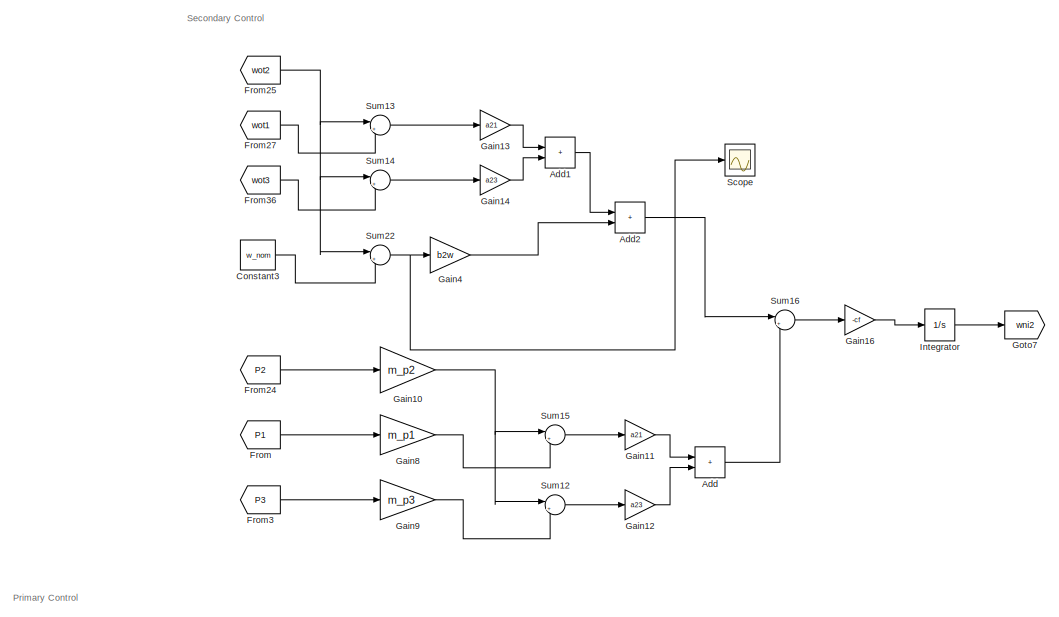
[diagram: Voltage Source Inverter 2/Controller - part 1/4, top left region]
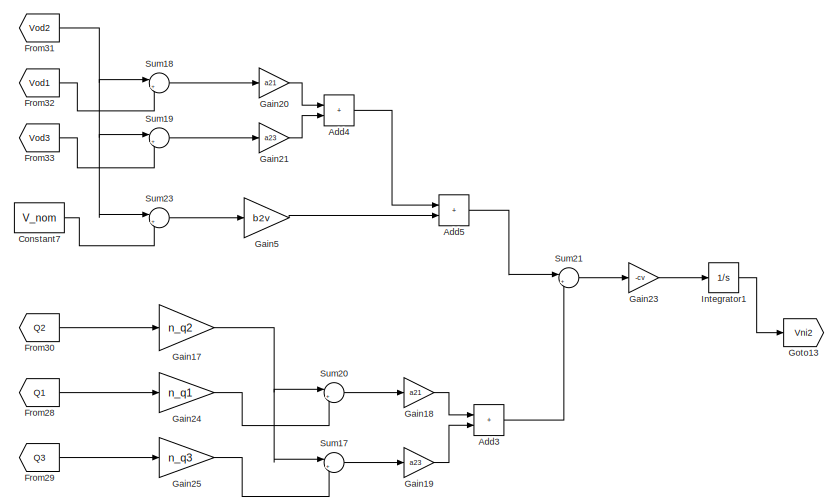
[diagram: Voltage Source Inverter 2/Controller - part 2/4, top right region]
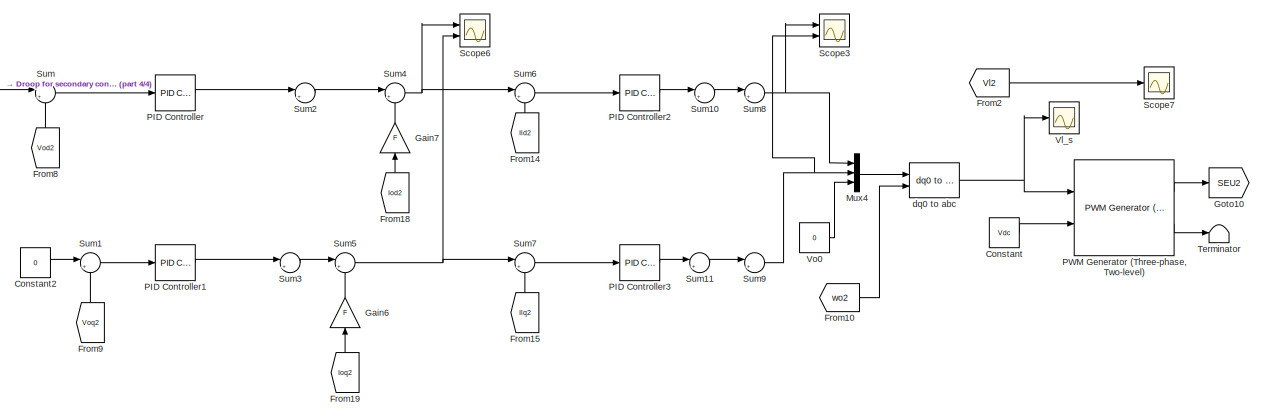
[diagram: Voltage Source Inverter 2/Controller - part 3/4, middle right region]
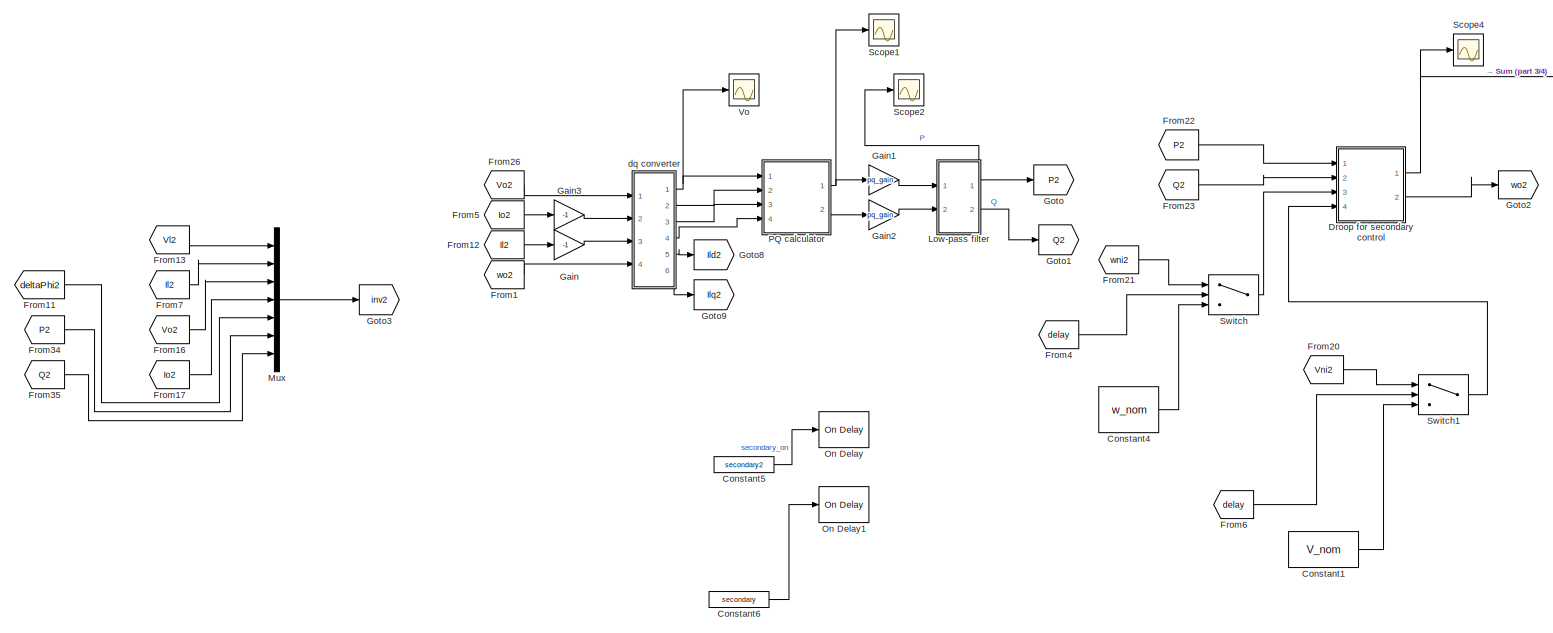
[diagram: Voltage Source Inverter 2/Controller - part 4/4, bottom left region]
BLOCK [SubSystem] Voltage Source Inverter 2/Controller
  Ports = []
  RequestExecContextInheritance = off
BLOCK [Sum] Voltage Source Inverter 2/Controller/Add
  IconShape = rectangular
  Ports = [2, 1]
BLOCK [Sum] Voltage Source Inverter 2/Controller/Add1
  IconShape = rectangular
  Ports = [2, 1]
BLOCK [Sum] Voltage Source Inverter 2/Controller/Add2
  IconShape = rectangular
  Ports = [2, 1]
BLOCK [Sum] Voltage Source Inverter 2/Controller/Add3
  IconShape = rectangular
  Ports = [2, 1]
BLOCK [Sum] Voltage Source Inverter 2/Controller/Add4
  IconShape = rectangular
  Ports = [2, 1]
BLOCK [Sum] Voltage Source Inverter 2/Controller/Add5
  IconShape = rectangular
  Ports = [2, 1]
BLOCK [Constant] Voltage Source Inverter 2/Controller/Constant
  Value = Vdc
BLOCK [Constant] Voltage Source Inverter 2/Controller/Constant1
  Value = V_nom
BLOCK [Constant] Voltage Source Inverter 2/Controller/Constant2
  Value = 0
BLOCK [Constant] Voltage Source Inverter 2/Controller/Constant3
  Value = w_nom
BLOCK [Constant] Voltage Source Inverter 2/Controller/Constant4
  Value = w_nom
BLOCK [Constant] Voltage Source Inverter 2/Controller/Constant5
  Value = secondary2
BLOCK [Constant] Voltage Source Inverter 2/Controller/Constant6
  Value = secondary
BLOCK [Constant] Voltage Source Inverter 2/Controller/Constant7
  Value = V_nom
BLOCK [SubSystem] Voltage Source Inverter 2/Controller/Droop for secondary control
  Ports = [4, 2]
  RequestExecContextInheritance = off
BLOCK [Gain] Voltage Source Inverter 2/Controller/Droop for secondary control/Gain4
  Gain = n_q2
BLOCK [Gain] Voltage Source Inverter 2/Controller/Droop for secondary control/Gain5
  Gain = m_p2
BLOCK [Goto] Voltage Source Inverter 2/Controller/Droop for secondary control/Goto2
  GotoTag = wot2
  TagVisibility = global
BLOCK [Integrator] Voltage Source Inverter 2/Controller/Droop for secondary control/Integrator
  Ports = [1, 1]
  WrapState = on
  WrappedStateLowerValue = 0
  WrappedStateUpperValue = 2*pi
BLOCK [Inport] Voltage Source Inverter 2/Controller/Droop for secondary control/P
BLOCK [Inport] Voltage Source Inverter 2/Controller/Droop for secondary control/Q
  Port = 2
BLOCK [Sum] Voltage Source Inverter 2/Controller/Droop for secondary control/Sum1
  Inputs = |+-
  Ports = [2, 1]
BLOCK [Sum] Voltage Source Inverter 2/Controller/Droop for secondary control/Sum2
  Inputs = |+-
  Ports = [2, 1]
BLOCK [Inport] Voltage Source Inverter 2/Controller/Droop for secondary control/V_nom
  Port = 4
BLOCK [Outport] Voltage Source Inverter 2/Controller/Droop for secondary control/Vod_s
BLOCK [Inport] Voltage Source Inverter 2/Controller/Droop for secondary control/w_nom
  Port = 3
BLOCK [Outport] Voltage Source Inverter 2/Controller/Droop for secondary control/wo
  Port = 2
BLOCK [From] Voltage Source Inverter 2/Controller/From
  GotoTag = P1
  TagVisibility = global
BLOCK [From] Voltage Source Inverter 2/Controller/From1
  GotoTag = wo2
  TagVisibility = global
BLOCK [From] Voltage Source Inverter 2/Controller/From10
  GotoTag = wo2
  TagVisibility = global
BLOCK [From] Voltage Source Inverter 2/Controller/From11
  GotoTag = deltaPhi2
BLOCK [From] Voltage Source Inverter 2/Controller/From12
  GotoTag = Il2
  TagVisibility = global
BLOCK [From] Voltage Source Inverter 2/Controller/From13
  GotoTag = Vl2
  TagVisibility = global
BLOCK [From] Voltage Source Inverter 2/Controller/From14
  GotoTag = Ild2
  NameLocation = right
  TagVisibility = global
BLOCK [From] Voltage Source Inverter 2/Controller/From15
  GotoTag = Ilq2
  NameLocation = right
  TagVisibility = global
BLOCK [From] Voltage Source Inverter 2/Controller/From16
  GotoTag = Vo2
  TagVisibility = global
BLOCK [From] Voltage Source Inverter 2/Controller/From17
  GotoTag = Io2
  TagVisibility = global
BLOCK [From] Voltage Source Inverter 2/Controller/From18
  GotoTag = Iod2
  NameLocation = right
  TagVisibility = global
BLOCK [From] Voltage Source Inverter 2/Controller/From19
  GotoTag = Ioq2
  NameLocation = right
  TagVisibility = global
BLOCK [From] Voltage Source Inverter 2/Controller/From2
  GotoTag = Vl2
  TagVisibility = global
BLOCK [From] Voltage Source Inverter 2/Controller/From20
  GotoTag = Vni2
  TagVisibility = global
BLOCK [From] Voltage Source Inverter 2/Controller/From21
  GotoTag = wni2
  TagVisibility = global
BLOCK [From] Voltage Source Inverter 2/Controller/From22
  GotoTag = P2
  TagVisibility = global
BLOCK [From] Voltage Source Inverter 2/Controller/From23
  GotoTag = Q2
  TagVisibility = global
BLOCK [From] Voltage Source Inverter 2/Controller/From24
  GotoTag = P2
  TagVisibility = global
BLOCK [From] Voltage Source Inverter 2/Controller/From25
  GotoTag = wot2
  TagVisibility = global
BLOCK [From] Voltage Source Inverter 2/Controller/From26
  GotoTag = Vo2
  TagVisibility = global
BLOCK [From] Voltage Source Inverter 2/Controller/From27
  GotoTag = wot1
  TagVisibility = global
BLOCK [From] Voltage Source Inverter 2/Controller/From28
  GotoTag = Q1
  TagVisibility = global
BLOCK [From] Voltage Source Inverter 2/Controller/From29
  GotoTag = Q3
  TagVisibility = global
BLOCK [From] Voltage Source Inverter 2/Controller/From3
  GotoTag = P3
  TagVisibility = global
BLOCK [From] Voltage Source Inverter 2/Controller/From30
  GotoTag = Q2
  TagVisibility = global
BLOCK [From] Voltage Source Inverter 2/Controller/From31
  GotoTag = Vod2
  TagVisibility = global
BLOCK [From] Voltage Source Inverter 2/Controller/From32
  GotoTag = Vod1
  TagVisibility = global
BLOCK [From] Voltage Source Inverter 2/Controller/From33
  GotoTag = Vod3
  TagVisibility = global
BLOCK [From] Voltage Source Inverter 2/Controller/From34
  GotoTag = P2
  TagVisibility = global
BLOCK [From] Voltage Source Inverter 2/Controller/From35
  GotoTag = Q2
  TagVisibility = global
BLOCK [From] Voltage Source Inverter 2/Controller/From36
  GotoTag = wot3
  TagVisibility = global
BLOCK [From] Voltage Source Inverter 2/Controller/From4
  GotoTag = delay
  TagVisibility = global
BLOCK [From] Voltage Source Inverter 2/Controller/From5
  GotoTag = Io2
  TagVisibility = global
BLOCK [From] Voltage Source Inverter 2/Controller/From6
  GotoTag = delay
  TagVisibility = global
BLOCK [From] Voltage Source Inverter 2/Controller/From7
  GotoTag = Il2
  TagVisibility = global
BLOCK [From] Voltage Source Inverter 2/Controller/From8
  GotoTag = Vod2
  NameLocation = right
  TagVisibility = global
BLOCK [From] Voltage Source Inverter 2/Controller/From9
  GotoTag = Voq2
  NameLocation = right
  TagVisibility = global
BLOCK [Gain] Voltage Source Inverter 2/Controller/Gain
  Gain = -1
BLOCK [Gain] Voltage Source Inverter 2/Controller/Gain1
  Gain = pq_gain
BLOCK [Gain] Voltage Source Inverter 2/Controller/Gain10
  Gain = m_p2
BLOCK [Gain] Voltage Source Inverter 2/Controller/Gain11
  Gain = a21
BLOCK [Gain] Voltage Source Inverter 2/Controller/Gain12
  Gain = a23
BLOCK [Gain] Voltage Source Inverter 2/Controller/Gain13
  Gain = a21
BLOCK [Gain] Voltage Source Inverter 2/Controller/Gain14
  Gain = a23
BLOCK [Gain] Voltage Source Inverter 2/Controller/Gain16
  Gain = -cf
BLOCK [Gain] Voltage Source Inverter 2/Controller/Gain17
  Gain = n_q2
BLOCK [Gain] Voltage Source Inverter 2/Controller/Gain18
  Gain = a21
BLOCK [Gain] Voltage Source Inverter 2/Controller/Gain19
  Gain = a23
BLOCK [Gain] Voltage Source Inverter 2/Controller/Gain2
  Gain = pq_gain
BLOCK [Gain] Voltage Source Inverter 2/Controller/Gain20
  Gain = a21
BLOCK [Gain] Voltage Source Inverter 2/Controller/Gain21
  Gain = a23
BLOCK [Gain] Voltage Source Inverter 2/Controller/Gain23
  Gain = -cv
BLOCK [Gain] Voltage Source Inverter 2/Controller/Gain24
  Gain = n_q1
BLOCK [Gain] Voltage Source Inverter 2/Controller/Gain25
  Gain = n_q3
BLOCK [Gain] Voltage Source Inverter 2/Controller/Gain3
  Gain = -1
BLOCK [Gain] Voltage Source Inverter 2/Controller/Gain4
  Gain = b2w
BLOCK [Gain] Voltage Source Inverter 2/Controller/Gain5
  Gain = b2v
BLOCK [Gain] Voltage Source Inverter 2/Controller/Gain6
  Gain = F
  NameLocation = right
BLOCK [Gain] Voltage Source Inverter 2/Controller/Gain7
  Gain = F
  NameLocation = right
BLOCK [Gain] Voltage Source Inverter 2/Controller/Gain8
  Gain = m_p1
BLOCK [Gain] Voltage Source Inverter 2/Controller/Gain9
  Gain = m_p3
BLOCK [Goto] Voltage Source Inverter 2/Controller/Goto
  GotoTag = P2
  TagVisibility = global
BLOCK [Goto] Voltage Source Inverter 2/Controller/Goto1
  GotoTag = Q2
  TagVisibility = global
BLOCK [Goto] Voltage Source Inverter 2/Controller/Goto10
  GotoTag = SEU2
  TagVisibility = global
BLOCK [Goto] Voltage Source Inverter 2/Controller/Goto13
  GotoTag = Vni2
  TagVisibility = global
BLOCK [Goto] Voltage Source Inverter 2/Controller/Goto2
  GotoTag = wo2
  TagVisibility = global
BLOCK [Goto] Voltage Source Inverter 2/Controller/Goto3
  GotoTag = inv2
  TagVisibility = global
BLOCK [Goto] Voltage Source Inverter 2/Controller/Goto7
  GotoTag = wni2
  TagVisibility = global
BLOCK [Goto] Voltage Source Inverter 2/Controller/Goto8
  GotoTag = Ild2
  TagVisibility = global
BLOCK [Goto] Voltage Source Inverter 2/Controller/Goto9
  GotoTag = Ilq2
  TagVisibility = global
BLOCK [Integrator] Voltage Source Inverter 2/Controller/Integrator
  InitialCondition = 50*2*pi
  LowerSaturationLimit = 50*2*pi
  Ports = [1, 1]
  UpperSaturationLimit = 51*2*pi
BLOCK [Integrator] Voltage Source Inverter 2/Controller/Integrator1
  InitialCondition = 311
  LowerSaturationLimit = 248.90
  Ports = [1, 1]
  UpperSaturationLimit = 373.35
BLOCK [SubSystem] Voltage Source Inverter 2/Controller/Low-pass filter
  Ports = [2, 2]
  RequestExecContextInheritance = off
BLOCK [Reference] Voltage Source Inverter 2/Controller/Low-pass filter/Low-Pass Filter (Discrete or Continuous)  REF=eeGeneralControl/Low-Pass Filter
(Discrete or Continuous)
  Ports = [1, 1]
  SourceBlock = eeGeneralControl/Low-Pass Filter\n(Discrete or Continuous)
  SourceProductBaseCode = PS
  SourceType = Low-Pass Filter (Discrete or Continuous)
BLOCK [Reference] Voltage Source Inverter 2/Controller/Low-pass filter/Low-Pass Filter (Discrete or Continuous)1  REF=eeGeneralControl/Low-Pass Filter
(Discrete or Continuous)
  Ports = [1, 1]
  SourceBlock = eeGeneralControl/Low-Pass Filter\n(Discrete or Continuous)
  SourceProductBaseCode = PS
  SourceType = Low-Pass Filter (Discrete or Continuous)
BLOCK [Outport] Voltage Source Inverter 2/Controller/Low-pass filter/P
BLOCK [Outport] Voltage Source Inverter 2/Controller/Low-pass filter/Q
  Port = 2
BLOCK [Inport] Voltage Source Inverter 2/Controller/Low-pass filter/p_hat
BLOCK [Inport] Voltage Source Inverter 2/Controller/Low-pass filter/q_hat
  Port = 2
BLOCK [Mux] Voltage Source Inverter 2/Controller/Mux
  DisplayOption = bar
  Inputs = 7
  Ports = [7, 1]
BLOCK [Mux] Voltage Source Inverter 2/Controller/Mux4
  DisplayOption = bar
  Inputs = 3
  Ports = [3, 1]
BLOCK [Reference] Voltage Source Inverter 2/Controller/On Delay  REF=spsOnDelayLib/On Delay
  Ports = [1, 1]
  SourceBlock = spsOnDelayLib/On Delay
  SourceProductBaseCode = PS
  SourceType = On/Off Delay
BLOCK [Reference] Voltage Source Inverter 2/Controller/On Delay1  REF=spsOnDelayLib/On Delay
  Ports = [1, 1]
  SourceBlock = spsOnDelayLib/On Delay
  SourceProductBaseCode = PS
  SourceType = On/Off Delay
BLOCK [Reference] Voltage Source Inverter 2/Controller/PID Controller  REF=slpidlib/PID Controller
  Ports = [1, 1]
  SourceBlock = slpidlib/PID Controller
  SourceProductBaseCode = SL
  SourceType = PID 1dof
BLOCK [Reference] Voltage Source Inverter 2/Controller/PID Controller1  REF=slpidlib/PID Controller
  Ports = [1, 1]
  SourceBlock = slpidlib/PID Controller
  SourceProductBaseCode = SL
  SourceType = PID 1dof
BLOCK [Reference] Voltage Source Inverter 2/Controller/PID Controller2  REF=slpidlib/PID Controller
  Ports = [1, 1]
  SourceBlock = slpidlib/PID Controller
  SourceProductBaseCode = SL
  SourceType = PID 1dof
BLOCK [Reference] Voltage Source Inverter 2/Controller/PID Controller3  REF=slpidlib/PID Controller
  Ports = [1, 1]
  SourceBlock = slpidlib/PID Controller
  SourceProductBaseCode = SL
  SourceType = PID 1dof
BLOCK [SubSystem] Voltage Source Inverter 2/Controller/PQ calculator
  Ports = [4, 2]
  RequestExecContextInheritance = off
BLOCK [Inport] Voltage Source Inverter 2/Controller/PQ calculator/Iod
  Port = 3
BLOCK [Inport] Voltage Source Inverter 2/Controller/PQ calculator/Ioq
  Port = 4
BLOCK [Product] Voltage Source Inverter 2/Controller/PQ calculator/Product
  Ports = [2, 1]
BLOCK [Product] Voltage Source Inverter 2/Controller/PQ calculator/Product1
  Ports = [2, 1]
BLOCK [Product] Voltage Source Inverter 2/Controller/PQ calculator/Product2
  Ports = [2, 1]
BLOCK [Product] Voltage Source Inverter 2/Controller/PQ calculator/Product3
  Ports = [2, 1]
BLOCK [Sum] Voltage Source Inverter 2/Controller/PQ calculator/Sum10
  Inputs = |++
  Ports = [2, 1]
BLOCK [Sum] Voltage Source Inverter 2/Controller/PQ calculator/Sum11
  Inputs = |+-
  Ports = [2, 1]
BLOCK [Inport] Voltage Source Inverter 2/Controller/PQ calculator/Vod
BLOCK [Inport] Voltage Source Inverter 2/Controller/PQ calculator/Voq
  Port = 2
BLOCK [Outport] Voltage Source Inverter 2/Controller/PQ calculator/p_hat
BLOCK [Outport] Voltage Source Inverter 2/Controller/PQ calculator/q_hat
  Port = 2
BLOCK [Reference] Voltage Source Inverter 2/Controller/PWM Generator (Three-phase, Two-level)  REF=eePwmGeneratorTwoLevel/PWM Generator
(Three-phase, Two-level)
  Ports = [2, 2]
  SourceBlock = eePwmGeneratorTwoLevel/PWM Generator\n(Three-phase, Two-level)
  SourceProductBaseCode = PS
  SourceType = PWM Generator (three-phase, two-level)
BLOCK [Scope] Voltage Source Inverter 2/Controller/Scope
  Floating = off
  NumInputPorts = 1
  Ports = [1]
  ScopeSpecificationString = Simulink.scopes.TimeScopeBlockCfg('CurrentConfiguration', extmgr.ConfigurationSet(extmgr.Configuration('Core','General UI',true),extmgr.Configuration('Core','Source UI',true),extmgr.Configuration('Sources','WiredSimulink',true,'DataLoggingVariableName','ScopeData1'),extmgr.Configuration('Visuals','Time Domain',true,'SerializedDisplays',{struct('MinYLimReal','-2.45383','MaxYLimReal','0.79823','YLab...<+1418ch>
BLOCK [Scope] Voltage Source Inverter 2/Controller/Scope1
  Floating = off
  NumInputPorts = 1
  Ports = [1]
  ScopeSpecificationString = Simulink.scopes.TimeScopeBlockCfg('CurrentConfiguration', extmgr.ConfigurationSet(extmgr.Configuration('Core','General UI',true),extmgr.Configuration('Core','Source UI',true),extmgr.Configuration('Sources','WiredSimulink',true,'DataLoggingVariableName','ScopeData1'),extmgr.Configuration('Visuals','Time Domain',true,'SerializedDisplays',{struct('MinYLimReal','-65275.35448','MaxYLimReal','27152.4241...<+1486ch>
BLOCK [Scope] Voltage Source Inverter 2/Controller/Scope2
  Floating = off
  NumInputPorts = 1
  Ports = [1]
  ScopeSpecificationString = Simulink.scopes.TimeScopeBlockCfg('CurrentConfiguration', extmgr.ConfigurationSet(extmgr.Configuration('Core','General UI',true),extmgr.Configuration('Core','Source UI',true),extmgr.Configuration('Sources','WiredSimulink',true,'DataLoggingVariableName','ScopeData3'),extmgr.Configuration('Visuals','Time Domain',true,'SerializedDisplays',{struct('MinYLimReal','-96681.51611','MaxYLimReal','36276.9768...<+1468ch>
BLOCK [Scope] Voltage Source Inverter 2/Controller/Scope3
  Floating = off
  NumInputPorts = 2
  Ports = [2]
  ScopeSpecificationString = Simulink.scopes.TimeScopeBlockCfg('CurrentConfiguration', extmgr.ConfigurationSet(extmgr.Configuration('Core','General UI',true),extmgr.Configuration('Core','Source UI',true),extmgr.Configuration('Sources','WiredSimulink',true,'DataLoggingVariableName','ScopeData1'),extmgr.Configuration('Visuals','Time Domain',true,'SerializedDisplays',{struct('MinYLimReal','-2922228.58829','MaxYLimReal','4834627....<+1488ch>
BLOCK [Scope] Voltage Source Inverter 2/Controller/Scope4
  Floating = off
  NumInputPorts = 1
  Ports = [1]
  ScopeSpecificationString = Simulink.scopes.TimeScopeBlockCfg('CurrentConfiguration', extmgr.ConfigurationSet(extmgr.Configuration('Core','General UI',true),extmgr.Configuration('Core','Source UI',true),extmgr.Configuration('Sources','WiredSimulink',true,'DataLoggingVariableName','ScopeData2'),extmgr.Configuration('Visuals','Time Domain',true,'SerializedDisplays',{struct('MinYLimReal','229.48563','MaxYLimReal','323.95263','Y...<+1786ch>
BLOCK [Scope] Voltage Source Inverter 2/Controller/Scope6
  Floating = off
  NumInputPorts = 2
  Ports = [2]
  ScopeSpecificationString = Simulink.scopes.TimeScopeBlockCfg('CurrentConfiguration', extmgr.ConfigurationSet(extmgr.Configuration('Core','General UI',true),extmgr.Configuration('Core','Source UI',true),extmgr.Configuration('Sources','WiredSimulink',true,'DataLoggingVariableName','ScopeData2'),extmgr.Configuration('Visuals','Time Domain',true,'SerializedDisplays',{struct('MinYLimReal','-6068.59058','MaxYLimReal','6923.02451'...<+1467ch>
BLOCK [Scope] Voltage Source Inverter 2/Controller/Scope7
  Floating = off
  NumInputPorts = 1
  Ports = [1]
  ScopeSpecificationString = Simulink.scopes.TimeScopeBlockCfg('CurrentConfiguration', extmgr.ConfigurationSet(extmgr.Configuration('Core','General UI',true),extmgr.Configuration('Core','Source UI',true),extmgr.Configuration('Sources','WiredSimulink',true,'DataLoggingVariableName','ScopeData1'),extmgr.Configuration('Visuals','Time Domain',true,'SerializedDisplays',{struct('MinYLimReal','-434.23111','MaxYLimReal','461.43356','...<+1598ch>
BLOCK [Sum] Voltage Source Inverter 2/Controller/Sum
  Inputs = |+-
  Ports = [2, 1]
BLOCK [Sum] Voltage Source Inverter 2/Controller/Sum1
  Inputs = |+-
  Ports = [2, 1]
BLOCK [Sum] Voltage Source Inverter 2/Controller/Sum10
  Inputs = |++
  Ports = [2, 1]
BLOCK [Sum] Voltage Source Inverter 2/Controller/Sum11
  Inputs = |++
  Ports = [2, 1]
BLOCK [Sum] Voltage Source Inverter 2/Controller/Sum12
  Inputs = |+-
  Ports = [2, 1]
BLOCK [Sum] Voltage Source Inverter 2/Controller/Sum13
  Inputs = |+-
  Ports = [2, 1]
BLOCK [Sum] Voltage Source Inverter 2/Controller/Sum14
  Inputs = |+-
  Ports = [2, 1]
BLOCK [Sum] Voltage Source Inverter 2/Controller/Sum15
  Inputs = |+-
  Ports = [2, 1]
BLOCK [Sum] Voltage Source Inverter 2/Controller/Sum16
  Inputs = |++
  Ports = [2, 1]
BLOCK [Sum] Voltage Source Inverter 2/Controller/Sum17
  Inputs = |+-
  Ports = [2, 1]
BLOCK [Sum] Voltage Source Inverter 2/Controller/Sum18
  Inputs = |+-
  Ports = [2, 1]
BLOCK [Sum] Voltage Source Inverter 2/Controller/Sum19
  Inputs = |+-
  Ports = [2, 1]
BLOCK [Sum] Voltage Source Inverter 2/Controller/Sum2
  Inputs = |+-
  Ports = [2, 1]
BLOCK [Sum] Voltage Source Inverter 2/Controller/Sum20
  Inputs = |+-
  Ports = [2, 1]
BLOCK [Sum] Voltage Source Inverter 2/Controller/Sum21
  Inputs = |++
  Ports = [2, 1]
BLOCK [Sum] Voltage Source Inverter 2/Controller/Sum22
  Inputs = |+-
  Ports = [2, 1]
BLOCK [Sum] Voltage Source Inverter 2/Controller/Sum23
  Inputs = |+-
  Ports = [2, 1]
BLOCK [Sum] Voltage Source Inverter 2/Controller/Sum3
  Inputs = |++
  Ports = [2, 1]
BLOCK [Sum] Voltage Source Inverter 2/Controller/Sum4
  Inputs = |++
  Ports = [2, 1]
BLOCK [Sum] Voltage Source Inverter 2/Controller/Sum5
  Inputs = |++
  Ports = [2, 1]
BLOCK [Sum] Voltage Source Inverter 2/Controller/Sum6
  Inputs = |+-
  Ports = [2, 1]
BLOCK [Sum] Voltage Source Inverter 2/Controller/Sum7
  Inputs = |+-
  Ports = [2, 1]
BLOCK [Sum] Voltage Source Inverter 2/Controller/Sum8
  Inputs = |+-
  Ports = [2, 1]
BLOCK [Sum] Voltage Source Inverter 2/Controller/Sum9
  Inputs = |++
  Ports = [2, 1]
BLOCK [Switch] Voltage Source Inverter 2/Controller/Switch
  Criteria = u2 > Threshold
  InputSameDT = off
  SaturateOnIntegerOverflow = off
  Threshold = time_thresh
BLOCK [Switch] Voltage Source Inverter 2/Controller/Switch1
  Criteria = u2 > Threshold
  InputSameDT = off
  SaturateOnIntegerOverflow = off
  Threshold = time_thresh
BLOCK [Terminator] Voltage Source Inverter 2/Controller/Terminator
BLOCK [Scope] Voltage Source Inverter 2/Controller/Vl_s
  Floating = off
  NumInputPorts = 1
  Ports = [1]
  ScopeSpecificationString = Simulink.scopes.TimeScopeBlockCfg('CurrentConfiguration', extmgr.ConfigurationSet(extmgr.Configuration('Core','General UI',true),extmgr.Configuration('Core','Source UI',true),extmgr.Configuration('Sources','WiredSimulink',true,'DataLoggingVariableName','ScopeData1'),extmgr.Configuration('Visuals','Time Domain',true,'SerializedDisplays',{struct('MinYLimReal','-2559293.2844','MaxYLimReal','2606783.9...<+2134ch>
BLOCK [Scope] Voltage Source Inverter 2/Controller/Vo
  Floating = off
  NumInputPorts = 1
  Ports = [1]
  ScopeSpecificationString = Simulink.scopes.TimeScopeBlockCfg('CurrentConfiguration', extmgr.ConfigurationSet(extmgr.Configuration('Core','General UI',true),extmgr.Configuration('Core','Source UI',true),extmgr.Configuration('Sources','WiredSimulink',true,'DataLoggingVariableName','ScopeData2'),extmgr.Configuration('Visuals','Time Domain',true,'SerializedDisplays',{struct('MinYLimReal','282.12361','MaxYLimReal','395.79799','Y...<+1763ch>
BLOCK [Constant] Voltage Source Inverter 2/Controller/Vo0
  Value = 0
BLOCK [SubSystem] Voltage Source Inverter 2/Controller/dq converter
  Ports = [4, 6]
  RequestExecContextInheritance = off
BLOCK [Demux] Voltage Source Inverter 2/Controller/dq converter/Demux
  Outputs = 2
  Ports = [1, 2]
BLOCK [Demux] Voltage Source Inverter 2/Controller/dq converter/Demux1
  Outputs = 2
  Ports = [1, 2]
BLOCK [Demux] Voltage Source Inverter 2/Controller/dq converter/Demux4
  Outputs = 2
  Ports = [1, 2]
BLOCK [Goto] Voltage Source Inverter 2/Controller/dq converter/Goto3
  GotoTag = Vod2
  TagVisibility = global
BLOCK [Goto] Voltage Source Inverter 2/Controller/dq converter/Goto4
  GotoTag = Voq2
  TagVisibility = global
BLOCK [Goto] Voltage Source Inverter 2/Controller/dq converter/Goto6
  GotoTag = Iod2
  TagVisibility = global
BLOCK [Goto] Voltage Source Inverter 2/Controller/dq converter/Goto7
  GotoTag = Ioq2
  TagVisibility = global
BLOCK [Inport] Voltage Source Inverter 2/Controller/dq converter/Il
  Port = 3
BLOCK [Outport] Voltage Source Inverter 2/Controller/dq converter/Ild
  Port = 5
BLOCK [Outport] Voltage Source Inverter 2/Controller/dq converter/Ilq
  Port = 6
BLOCK [Inport] Voltage Source Inverter 2/Controller/dq converter/Io
  Port = 2
BLOCK [Outport] Voltage Source Inverter 2/Controller/dq converter/Iod
  Port = 3
BLOCK [Outport] Voltage Source Inverter 2/Controller/dq converter/Ioq
  Port = 4
BLOCK [Selector] Voltage Source Inverter 2/Controller/dq converter/Selector1
  IndexOptions = Index vector (dialog)
  Indices = [1 2]
  InputPortWidth = 3
  OutputSizes = 1
  Ports = [1, 1]
BLOCK [Selector] Voltage Source Inverter 2/Controller/dq converter/Selector2
  IndexOptions = Index vector (dialog)
  Indices = [1 2]
  InputPortWidth = 3
  OutputSizes = 1
  Ports = [1, 1]
BLOCK [Selector] Voltage Source Inverter 2/Controller/dq converter/Selector3
  IndexOptions = Index vector (dialog)
  Indices = [1 2]
  InputPortWidth = 3
  OutputSizes = 1
  Ports = [1, 1]
BLOCK [Inport] Voltage Source Inverter 2/Controller/dq converter/Vo
BLOCK [Outport] Voltage Source Inverter 2/Controller/dq converter/Vod
BLOCK [Outport] Voltage Source Inverter 2/Controller/dq converter/Voq
  Port = 2
BLOCK [Reference] Voltage Source Inverter 2/Controller/dq converter/abc to dq0  REF=spsabctodq0Lib/abc to dq0
  Ports = [2, 1]
  SourceBlock = spsabctodq0Lib/abc to dq0
  SourceProductBaseCode = PS
  SourceType = abc to dq0 Transformation
BLOCK [Reference] Voltage Source Inverter 2/Controller/dq converter/abc to dq1  REF=spsabctodq0Lib/abc to dq0
  Ports = [2, 1]
  SourceBlock = spsabctodq0Lib/abc to dq0
  SourceProductBaseCode = PS
  SourceType = abc to dq0 Transformation
BLOCK [Reference] Voltage Source Inverter 2/Controller/dq converter/abc to dq2  REF=spsabctodq0Lib/abc to dq0
  Ports = [2, 1]
  SourceBlock = spsabctodq0Lib/abc to dq0
  SourceProductBaseCode = PS
  SourceType = abc to dq0 Transformation
BLOCK [Inport] Voltage Source Inverter 2/Controller/dq converter/wo2
  Port = 4
BLOCK [Reference] Voltage Source Inverter 2/Controller/dq0 to abc  REF=spsdq0toabcLib/dq0 to abc
  Ports = [2, 1]
  SourceBlock = spsdq0toabcLib/dq0 to abc
  SourceProductBaseCode = PS
  SourceType = dq0 to abc Transformation
BLOCK [Reference] Voltage Source Inverter 2/DC Voltage Source1  REF=spsDCVoltageSourceLib/DC Voltage Source
  NameLocation = right
  Ports = [0, 0, 0, 0, 0, 1, 1]
  SourceBlock = spsDCVoltageSourceLib/DC Voltage Source
  SourceProductBaseCode = PS
  SourceType = DC Voltage Source
BLOCK [From] Voltage Source Inverter 2/From
  GotoTag = SEU2
  TagVisibility = global
BLOCK [Reference] Voltage Source Inverter 2/Series RLC Branch  REF=spsSeriesRLCBranchLib/Series RLC Branch
  NameLocation = left
  Ports = [0, 0, 0, 0, 0, 1, 1]
  SourceBlock = spsSeriesRLCBranchLib/Series RLC Branch
  SourceProductBaseCode = PS
  SourceType = Series RLC Branch
BLOCK [Reference] Voltage Source Inverter 2/Three-Phase Series RLC Branch  REF=spsThreePhaseSeriesRLCBranchLib/Three-Phase
Series RLC Branch
  AttributesFormatString = \n
  Ports = [0, 0, 0, 0, 0, 3, 3]
  SourceBlock = spsThreePhaseSeriesRLCBranchLib/Three-Phase\nSeries RLC Branch
  SourceProductBaseCode = PS
  SourceType = Three-Phase Series RLC Branch
BLOCK [Reference] Voltage Source Inverter 2/Three-Phase Series RLC Branch1  REF=spsThreePhaseSeriesRLCBranchLib/Three-Phase
Series RLC Branch
  AttributesFormatString = \n
  Ports = [0, 0, 0, 0, 0, 3, 3]
  SourceBlock = spsThreePhaseSeriesRLCBranchLib/Three-Phase\nSeries RLC Branch
  SourceProductBaseCode = PS
  SourceType = Three-Phase Series RLC Branch
BLOCK [Reference] Voltage Source Inverter 2/Three-Phase Series RLC Branch2  REF=spsThreePhaseSeriesRLCBranchLib/Three-Phase
Series RLC Branch
  AttributesFormatString = \n
  NameLocation = left
  Ports = [0, 0, 0, 0, 0, 3, 3]
  SourceBlock = spsThreePhaseSeriesRLCBranchLib/Three-Phase\nSeries RLC Branch
  SourceProductBaseCode = PS
  SourceType = Three-Phase Series RLC Branch
BLOCK [Reference] Voltage Source Inverter 2/Three-Phase V-I Measurement  REF=spsThreePhaseVIMeasurementLib/Three-Phase
V-I Measurement
  Ports = [0, 0, 0, 0, 0, 3, 3]
  SourceBlock = spsThreePhaseVIMeasurementLib/Three-Phase\nV-I Measurement
  SourceProductBaseCode = PS
  SourceType = Three-Phase VI Measurement
BLOCK [Reference] Voltage Source Inverter 2/Three-Phase V-I Measurement1  REF=spsThreePhaseVIMeasurementLib/Three-Phase
V-I Measurement
  Ports = [0, 0, 0, 0, 0, 3, 3]
  SourceBlock = spsThreePhaseVIMeasurementLib/Three-Phase\nV-I Measurement
  SourceProductBaseCode = PS
  SourceType = Three-Phase VI Measurement
BLOCK [Reference] Voltage Source Inverter 2/Two-Level Converter  REF=spsTwoLevelConverterLib/Two-Level Converter
  Ports = [2, 0, 0, 0, 0, 3, 2]
  SourceBlock = spsTwoLevelConverterLib/Two-Level Converter
  SourceProductBaseCode = PS
  SourceType = Two-Level Converter
BLOCK [SubSystem] Voltage Source Inverter 3
  Ports = [0, 0, 0, 0, 0, 3]
  RequestExecContextInheritance = off
BLOCK [PMIOPort] Voltage Source Inverter 3/Conn1
  Side = Left
BLOCK [PMIOPort] Voltage Source Inverter 3/Conn2
  Port = 2
  Side = Left
BLOCK [SubSystem] Voltage Source Inverter 3/Controller
  Ports = []
  RequestExecContextInheritance = off
BLOCK [Sum] Voltage Source Inverter 3/Controller/Add
  IconShape = rectangular
  Ports = [2, 1]
BLOCK [Sum] Voltage Source Inverter 3/Controller/Add1
  IconShape = rectangular
  Ports = [2, 1]
BLOCK [Sum] Voltage Source Inverter 3/Controller/Add2
  IconShape = rectangular
  Ports = [2, 1]
BLOCK [Sum] Voltage Source Inverter 3/Controller/Add3
  IconShape = rectangular
  Ports = [2, 1]
BLOCK [Sum] Voltage Source Inverter 3/Controller/Add4
  IconShape = rectangular
  Ports = [2, 1]
BLOCK [Sum] Voltage Source Inverter 3/Controller/Add5
  IconShape = rectangular
  Ports = [2, 1]
BLOCK [Constant] Voltage Source Inverter 3/Controller/Constant
  Value = Vdc
BLOCK [Constant] Voltage Source Inverter 3/Controller/Constant1
  Value = 0
BLOCK [Constant] Voltage Source Inverter 3/Controller/Constant2
  Value = V_nom
BLOCK [Constant] Voltage Source Inverter 3/Controller/Constant3
  Value = w_nom
BLOCK [Constant] Voltage Source Inverter 3/Controller/Constant4
  Value = w_nom
BLOCK [Constant] Voltage Source Inverter 3/Controller/Constant5
  Value = secondary
BLOCK [Constant] Voltage Source Inverter 3/Controller/Constant6
  Value = secondary2
BLOCK [Constant] Voltage Source Inverter 3/Controller/Constant7
  Value = V_nom
BLOCK [SubSystem] Voltage Source Inverter 3/Controller/Droop for secondary control
  Ports = [4, 2]
  RequestExecContextInheritance = off
BLOCK [Gain] Voltage Source Inverter 3/Controller/Droop for secondary control/Gain4
  Gain = n_q3
BLOCK [Gain] Voltage Source Inverter 3/Controller/Droop for secondary control/Gain5
  Gain = m_p3
BLOCK [Goto] Voltage Source Inverter 3/Controller/Droop for secondary control/Goto2
  GotoTag = wot3
  TagVisibility = global
BLOCK [Integrator] Voltage Source Inverter 3/Controller/Droop for secondary control/Integrator
  Ports = [1, 1]
  WrapState = on
  WrappedStateLowerValue = 0
  WrappedStateUpperValue = 2*pi
BLOCK [Inport] Voltage Source Inverter 3/Controller/Droop for secondary control/P
BLOCK [Inport] Voltage Source Inverter 3/Controller/Droop for secondary control/Q
  Port = 2
BLOCK [Sum] Voltage Source Inverter 3/Controller/Droop for secondary control/Sum1
  Inputs = |+-
  Ports = [2, 1]
BLOCK [Sum] Voltage Source Inverter 3/Controller/Droop for secondary control/Sum2
  Inputs = |+-
  Ports = [2, 1]
BLOCK [Inport] Voltage Source Inverter 3/Controller/Droop for secondary control/V_nom
  Port = 4
BLOCK [Outport] Voltage Source Inverter 3/Controller/Droop for secondary control/Vod_s
BLOCK [Inport] Voltage Source Inverter 3/Controller/Droop for secondary control/w_nom
  Port = 3
BLOCK [Outport] Voltage Source Inverter 3/Controller/Droop for secondary control/wo
  Port = 2
BLOCK [From] Voltage Source Inverter 3/Controller/From
  GotoTag = P2
  TagVisibility = global
BLOCK [From] Voltage Source Inverter 3/Controller/From1
  GotoTag = wo3
  TagVisibility = global
BLOCK [From] Voltage Source Inverter 3/Controller/From10
  GotoTag = Il3
  TagVisibility = global
BLOCK [From] Voltage Source Inverter 3/Controller/From11
  GotoTag = deltaPhi3
BLOCK [From] Voltage Source Inverter 3/Controller/From12
  GotoTag = Il3
  TagVisibility = global
BLOCK [From] Voltage Source Inverter 3/Controller/From13
  GotoTag = Vl3
  TagVisibility = global
BLOCK [From] Voltage Source Inverter 3/Controller/From14
  GotoTag = Ild3
  NameLocation = right
  TagVisibility = global
BLOCK [From] Voltage Source Inverter 3/Controller/From15
  GotoTag = Ilq3
  NameLocation = right
  TagVisibility = global
BLOCK [From] Voltage Source Inverter 3/Controller/From16
  GotoTag = wo3
  TagVisibility = global
BLOCK [From] Voltage Source Inverter 3/Controller/From17
  GotoTag = Io3
  TagVisibility = global
BLOCK [From] Voltage Source Inverter 3/Controller/From18
  GotoTag = Iod3
  NameLocation = right
  TagVisibility = global
BLOCK [From] Voltage Source Inverter 3/Controller/From19
  GotoTag = Ioq3
  NameLocation = right
  TagVisibility = global
BLOCK [From] Voltage Source Inverter 3/Controller/From2
  GotoTag = Vl3
  TagVisibility = global
BLOCK [From] Voltage Source Inverter 3/Controller/From20
  GotoTag = Vni3
  TagVisibility = global
BLOCK [From] Voltage Source Inverter 3/Controller/From21
  GotoTag = wni3
  TagVisibility = global
BLOCK [From] Voltage Source Inverter 3/Controller/From22
  GotoTag = P3
  TagVisibility = global
BLOCK [From] Voltage Source Inverter 3/Controller/From23
  GotoTag = Q3
  TagVisibility = global
BLOCK [From] Voltage Source Inverter 3/Controller/From24
  GotoTag = P3
  TagVisibility = global
BLOCK [From] Voltage Source Inverter 3/Controller/From25
  GotoTag = wot3
  TagVisibility = global
BLOCK [From] Voltage Source Inverter 3/Controller/From26
  GotoTag = Vo3
  TagVisibility = global
BLOCK [From] Voltage Source Inverter 3/Controller/From27
  GotoTag = Q2
  TagVisibility = global
BLOCK [From] Voltage Source Inverter 3/Controller/From28
  GotoTag = Q4
  TagVisibility = global
BLOCK [From] Voltage Source Inverter 3/Controller/From29
  GotoTag = Q3
  TagVisibility = global
BLOCK [From] Voltage Source Inverter 3/Controller/From3
  GotoTag = P4
  TagVisibility = global
BLOCK [From] Voltage Source Inverter 3/Controller/From30
  GotoTag = Vod3
  TagVisibility = global
BLOCK [From] Voltage Source Inverter 3/Controller/From31
  GotoTag = Vod2
  TagVisibility = global
BLOCK [From] Voltage Source Inverter 3/Controller/From32
  GotoTag = wot2
  TagVisibility = global
BLOCK [From] Voltage Source Inverter 3/Controller/From33
  GotoTag = Vod4
  TagVisibility = global
BLOCK [From] Voltage Source Inverter 3/Controller/From34
  GotoTag = P3
  TagVisibility = global
BLOCK [From] Voltage Source Inverter 3/Controller/From35
  GotoTag = Q3
  TagVisibility = global
BLOCK [From] Voltage Source Inverter 3/Controller/From36
  GotoTag = wot4
  TagVisibility = global
BLOCK [From] Voltage Source Inverter 3/Controller/From4
  GotoTag = delay
  TagVisibility = global
BLOCK [From] Voltage Source Inverter 3/Controller/From5
  GotoTag = Io3
  TagVisibility = global
BLOCK [From] Voltage Source Inverter 3/Controller/From6
  GotoTag = delay
  TagVisibility = global
BLOCK [From] Voltage Source Inverter 3/Controller/From7
  GotoTag = Vo3
  TagVisibility = global
BLOCK [From] Voltage Source Inverter 3/Controller/From8
  GotoTag = Vod3
  NameLocation = right
  TagVisibility = global
BLOCK [From] Voltage Source Inverter 3/Controller/From9
  GotoTag = Voq3
  NameLocation = right
  TagVisibility = global
BLOCK [Gain] Voltage Source Inverter 3/Controller/Gain
  Gain = b3w
BLOCK [Gain] Voltage Source Inverter 3/Controller/Gain1
  Gain = pq_gain
BLOCK [Gain] Voltage Source Inverter 3/Controller/Gain10
  Gain = m_p3
BLOCK [Gain] Voltage Source Inverter 3/Controller/Gain11
  Gain = a32
BLOCK [Gain] Voltage Source Inverter 3/Controller/Gain12
  Gain = a34
BLOCK [Gain] Voltage Source Inverter 3/Controller/Gain13
  Gain = a32
BLOCK [Gain] Voltage Source Inverter 3/Controller/Gain14
  Gain = a34
BLOCK [Gain] Voltage Source Inverter 3/Controller/Gain16
  Gain = -cf
BLOCK [Gain] Voltage Source Inverter 3/Controller/Gain17
  Gain = n_q3
BLOCK [Gain] Voltage Source Inverter 3/Controller/Gain18
  Gain = a32
BLOCK [Gain] Voltage Source Inverter 3/Controller/Gain19
  Gain = a34
BLOCK [Gain] Voltage Source Inverter 3/Controller/Gain2
  Gain = pq_gain
BLOCK [Gain] Voltage Source Inverter 3/Controller/Gain20
  Gain = a32
BLOCK [Gain] Voltage Source Inverter 3/Controller/Gain21
  Gain = a34
BLOCK [Gain] Voltage Source Inverter 3/Controller/Gain23
  Gain = -cv
BLOCK [Gain] Voltage Source Inverter 3/Controller/Gain24
  Gain = n_q2
BLOCK [Gain] Voltage Source Inverter 3/Controller/Gain25
  Gain = n_q4
BLOCK [Gain] Voltage Source Inverter 3/Controller/Gain3
  Gain = -1
BLOCK [Gain] Voltage Source Inverter 3/Controller/Gain4
  Gain = -1
BLOCK [Gain] Voltage Source Inverter 3/Controller/Gain5
  Gain = b3v
BLOCK [Gain] Voltage Source Inverter 3/Controller/Gain6
  Gain = F
  NameLocation = right
BLOCK [Gain] Voltage Source Inverter 3/Controller/Gain7
  Gain = F
  NameLocation = right
BLOCK [Gain] Voltage Source Inverter 3/Controller/Gain8
  Gain = m_p2
BLOCK [Gain] Voltage Source Inverter 3/Controller/Gain9
  Gain = m_p4
BLOCK [Goto] Voltage Source Inverter 3/Controller/Goto
  GotoTag = P3
  TagVisibility = global
BLOCK [Goto] Voltage Source Inverter 3/Controller/Goto1
  GotoTag = Q3
  TagVisibility = global
BLOCK [Goto] Voltage Source Inverter 3/Controller/Goto10
  GotoTag = SEU3
  TagVisibility = global
BLOCK [Goto] Voltage Source Inverter 3/Controller/Goto13
  GotoTag = Vni3
  TagVisibility = global
BLOCK [Goto] Voltage Source Inverter 3/Controller/Goto2
  GotoTag = wo3
  TagVisibility = global
BLOCK [Goto] Voltage Source Inverter 3/Controller/Goto3
  GotoTag = inv3
  TagVisibility = global
BLOCK [Goto] Voltage Source Inverter 3/Controller/Goto7
  GotoTag = wni3
  TagVisibility = global
BLOCK [Goto] Voltage Source Inverter 3/Controller/Goto8
  GotoTag = Ild3
  TagVisibility = global
BLOCK [Goto] Voltage Source Inverter 3/Controller/Goto9
  GotoTag = Ilq3
  TagVisibility = global
BLOCK [Integrator] Voltage Source Inverter 3/Controller/Integrator
  InitialCondition = 50*2*pi
  LowerSaturationLimit = 50*2*pi
  Ports = [1, 1]
  UpperSaturationLimit = 51*2*pi
BLOCK [Integrator] Voltage Source Inverter 3/Controller/Integrator1
  InitialCondition = 311
  LowerSaturationLimit = 248.90
  Ports = [1, 1]
  UpperSaturationLimit = 373.35
BLOCK [SubSystem] Voltage Source Inverter 3/Controller/Low-pass filter
  Ports = [2, 2]
  RequestExecContextInheritance = off
BLOCK [Reference] Voltage Source Inverter 3/Controller/Low-pass filter/Low-Pass Filter (Discrete or Continuous)  REF=eeGeneralControl/Low-Pass Filter
(Discrete or Continuous)
  Ports = [1, 1]
  SourceBlock = eeGeneralControl/Low-Pass Filter\n(Discrete or Continuous)
  SourceProductBaseCode = PS
  SourceType = Low-Pass Filter (Discrete or Continuous)
BLOCK [Reference] Voltage Source Inverter 3/Controller/Low-pass filter/Low-Pass Filter (Discrete or Continuous)1  REF=eeGeneralControl/Low-Pass Filter
(Discrete or Continuous)
  Ports = [1, 1]
  SourceBlock = eeGeneralControl/Low-Pass Filter\n(Discrete or Continuous)
  SourceProductBaseCode = PS
  SourceType = Low-Pass Filter (Discrete or Continuous)
BLOCK [Outport] Voltage Source Inverter 3/Controller/Low-pass filter/P
BLOCK [Outport] Voltage Source Inverter 3/Controller/Low-pass filter/Q
  Port = 2
BLOCK [Inport] Voltage Source Inverter 3/Controller/Low-pass filter/p_hat
BLOCK [Inport] Voltage Source Inverter 3/Controller/Low-pass filter/q_hat
  Port = 2
BLOCK [Mux] Voltage Source Inverter 3/Controller/Mux
  DisplayOption = bar
  Inputs = 7
  Ports = [7, 1]
BLOCK [Mux] Voltage Source Inverter 3/Controller/Mux4
  DisplayOption = bar
  Inputs = 3
  Ports = [3, 1]
BLOCK [Reference] Voltage Source Inverter 3/Controller/On Delay  REF=spsOnDelayLib/On Delay
  Ports = [1, 1]
  SourceBlock = spsOnDelayLib/On Delay
  SourceProductBaseCode = PS
  SourceType = On/Off Delay
BLOCK [Reference] Voltage Source Inverter 3/Controller/On Delay1  REF=spsOnDelayLib/On Delay
  Ports = [1, 1]
  SourceBlock = spsOnDelayLib/On Delay
  SourceProductBaseCode = PS
  SourceType = On/Off Delay
BLOCK [Reference] Voltage Source Inverter 3/Controller/PID Controller  REF=slpidlib/PID Controller
  Ports = [1, 1]
  SourceBlock = slpidlib/PID Controller
  SourceProductBaseCode = SL
  SourceType = PID 1dof
BLOCK [Reference] Voltage Source Inverter 3/Controller/PID Controller1  REF=slpidlib/PID Controller
  Ports = [1, 1]
  SourceBlock = slpidlib/PID Controller
  SourceProductBaseCode = SL
  SourceType = PID 1dof
BLOCK [Reference] Voltage Source Inverter 3/Controller/PID Controller2  REF=slpidlib/PID Controller
  Ports = [1, 1]
  SourceBlock = slpidlib/PID Controller
  SourceProductBaseCode = SL
  SourceType = PID 1dof
BLOCK [Reference] Voltage Source Inverter 3/Controller/PID Controller3  REF=slpidlib/PID Controller
  Ports = [1, 1]
  SourceBlock = slpidlib/PID Controller
  SourceProductBaseCode = SL
  SourceType = PID 1dof
BLOCK [SubSystem] Voltage Source Inverter 3/Controller/PQ calculator
  Ports = [4, 2]
  RequestExecContextInheritance = off
BLOCK [Inport] Voltage Source Inverter 3/Controller/PQ calculator/Iod
  Port = 3
BLOCK [Inport] Voltage Source Inverter 3/Controller/PQ calculator/Ioq
  Port = 4
BLOCK [Product] Voltage Source Inverter 3/Controller/PQ calculator/Product
  Ports = [2, 1]
BLOCK [Product] Voltage Source Inverter 3/Controller/PQ calculator/Product1
  Ports = [2, 1]
BLOCK [Product] Voltage Source Inverter 3/Controller/PQ calculator/Product2
  Ports = [2, 1]
BLOCK [Product] Voltage Source Inverter 3/Controller/PQ calculator/Product3
  Ports = [2, 1]
BLOCK [Sum] Voltage Source Inverter 3/Controller/PQ calculator/Sum10
  Inputs = |++
  Ports = [2, 1]
BLOCK [Sum] Voltage Source Inverter 3/Controller/PQ calculator/Sum11
  Inputs = |+-
  Ports = [2, 1]
BLOCK [Inport] Voltage Source Inverter 3/Controller/PQ calculator/Vod
BLOCK [Inport] Voltage Source Inverter 3/Controller/PQ calculator/Voq
  Port = 2
BLOCK [Outport] Voltage Source Inverter 3/Controller/PQ calculator/p_hat
BLOCK [Outport] Voltage Source Inverter 3/Controller/PQ calculator/q_hat
  Port = 2
BLOCK [Reference] Voltage Source Inverter 3/Controller/PWM Generator (Three-phase, Two-level)  REF=eePwmGeneratorTwoLevel/PWM Generator
(Three-phase, Two-level)
  Ports = [2, 2]
  SourceBlock = eePwmGeneratorTwoLevel/PWM Generator\n(Three-phase, Two-level)
  SourceProductBaseCode = PS
  SourceType = PWM Generator (three-phase, two-level)
BLOCK [Scope] Voltage Source Inverter 3/Controller/Scope
  Floating = off
  NumInputPorts = 1
  Ports = [1]
  ScopeSpecificationString = Simulink.scopes.TimeScopeBlockCfg('CurrentConfiguration', extmgr.ConfigurationSet(extmgr.Configuration('Core','General UI',true),extmgr.Configuration('Core','Source UI',true),extmgr.Configuration('Sources','WiredSimulink',true,'DataLoggingVariableName','ScopeData4'),extmgr.Configuration('Visuals','Time Domain',true,'SerializedDisplays',{struct('MinYLimReal','-0.7854','MaxYLimReal','7.06858','YLabe...<+1428ch>
BLOCK [Scope] Voltage Source Inverter 3/Controller/Scope1
  Floating = off
  NumInputPorts = 1
  Ports = [1]
  ScopeSpecificationString = Simulink.scopes.TimeScopeBlockCfg('CurrentConfiguration', extmgr.ConfigurationSet(extmgr.Configuration('Core','General UI',true),extmgr.Configuration('Core','Source UI',true),extmgr.Configuration('Sources','WiredSimulink',true,'DataLoggingVariableName','ScopeData1'),extmgr.Configuration('Visuals','Time Domain',true,'SerializedDisplays',{struct('MinYLimReal','-1029535.83856','MaxYLimReal','1466196....<+1502ch>
BLOCK [Scope] Voltage Source Inverter 3/Controller/Scope2
  Floating = off
  NumInputPorts = 1
  Ports = [1]
  ScopeSpecificationString = Simulink.scopes.TimeScopeBlockCfg('CurrentConfiguration', extmgr.ConfigurationSet(extmgr.Configuration('Core','General UI',true),extmgr.Configuration('Core','Source UI',true),extmgr.Configuration('Sources','WiredSimulink',true,'DataLoggingVariableName','ScopeData3'),extmgr.Configuration('Visuals','Time Domain',true,'SerializedDisplays',{struct('MinYLimReal','-122739.74336','MaxYLimReal','683558.07...<+1778ch>
BLOCK [Scope] Voltage Source Inverter 3/Controller/Scope3
  Floating = off
  NumInputPorts = 2
  Ports = [2]
  ScopeSpecificationString = Simulink.scopes.TimeScopeBlockCfg('CurrentConfiguration', extmgr.ConfigurationSet(extmgr.Configuration('Core','General UI',true),extmgr.Configuration('Core','Source UI',true),extmgr.Configuration('Sources','WiredSimulink',true,'DataLoggingVariableName','ScopeData1'),extmgr.Configuration('Visuals','Time Domain',true,'SerializedDisplays',{struct('MinYLimReal','-7021471.94677','MaxYLimReal','8630593....<+1488ch>
BLOCK [Scope] Voltage Source Inverter 3/Controller/Scope4
  Floating = off
  NumInputPorts = 2
  Ports = [2]
  ScopeSpecificationString = Simulink.scopes.TimeScopeBlockCfg('CurrentConfiguration', extmgr.ConfigurationSet(extmgr.Configuration('Core','General UI',true),extmgr.Configuration('Core','Source UI',true),extmgr.Configuration('Sources','WiredSimulink',true,'DataLoggingVariableName','ScopeData1'),extmgr.Configuration('Visuals','Time Domain',true,'SerializedDisplays',{struct('MinYLimReal','-4132.47982','MaxYLimReal','3489.155','...<+1513ch>
BLOCK [Scope] Voltage Source Inverter 3/Controller/Scope6
  Floating = off
  NumInputPorts = 2
  Ports = [2]
  ScopeSpecificationString = Simulink.scopes.TimeScopeBlockCfg('CurrentConfiguration', extmgr.ConfigurationSet(extmgr.Configuration('Core','General UI',true),extmgr.Configuration('Core','Source UI',true),extmgr.Configuration('Sources','WiredSimulink',true,'DataLoggingVariableName','ScopeData2'),extmgr.Configuration('Visuals','Time Domain',true,'SerializedDisplays',{struct('MinYLimReal','-1716.4979','MaxYLimReal','1700.25012',...<+1466ch>
BLOCK [Scope] Voltage Source Inverter 3/Controller/Scope7
  Floating = off
  NumInputPorts = 1
  Ports = [1]
  ScopeSpecificationString = Simulink.scopes.TimeScopeBlockCfg('CurrentConfiguration', extmgr.ConfigurationSet(extmgr.Configuration('Core','General UI',true),extmgr.Configuration('Core','Source UI',true),extmgr.Configuration('Sources','WiredSimulink',true,'DataLoggingVariableName','ScopeData1'),extmgr.Configuration('Visuals','Time Domain',true,'SerializedDisplays',{struct('MinYLimReal','-440.65047','MaxYLimReal','423.58245','...<+1598ch>
BLOCK [Sum] Voltage Source Inverter 3/Controller/Sum
  Inputs = |+-
  Ports = [2, 1]
BLOCK [Sum] Voltage Source Inverter 3/Controller/Sum1
  Inputs = |+-
  Ports = [2, 1]
BLOCK [Sum] Voltage Source Inverter 3/Controller/Sum10
  Inputs = |++
  Ports = [2, 1]
BLOCK [Sum] Voltage Source Inverter 3/Controller/Sum11
  Inputs = |++
  Ports = [2, 1]
BLOCK [Sum] Voltage Source Inverter 3/Controller/Sum12
  Inputs = |+-
  Ports = [2, 1]
BLOCK [Sum] Voltage Source Inverter 3/Controller/Sum13
  Inputs = |+-
  Ports = [2, 1]
BLOCK [Sum] Voltage Source Inverter 3/Controller/Sum14
  Inputs = |+-
  Ports = [2, 1]
BLOCK [Sum] Voltage Source Inverter 3/Controller/Sum15
  Inputs = |+-
  Ports = [2, 1]
BLOCK [Sum] Voltage Source Inverter 3/Controller/Sum16
  Inputs = |++
  Ports = [2, 1]
BLOCK [Sum] Voltage Source Inverter 3/Controller/Sum17
  Inputs = |+-
  Ports = [2, 1]
BLOCK [Sum] Voltage Source Inverter 3/Controller/Sum18
  Inputs = |+-
  Ports = [2, 1]
BLOCK [Sum] Voltage Source Inverter 3/Controller/Sum19
  Inputs = |+-
  Ports = [2, 1]
BLOCK [Sum] Voltage Source Inverter 3/Controller/Sum2
  Inputs = |+-
  Ports = [2, 1]
BLOCK [Sum] Voltage Source Inverter 3/Controller/Sum20
  Inputs = |+-
  Ports = [2, 1]
BLOCK [Sum] Voltage Source Inverter 3/Controller/Sum21
  Inputs = |++
  Ports = [2, 1]
BLOCK [Sum] Voltage Source Inverter 3/Controller/Sum22
  Inputs = |+-
  Ports = [2, 1]
BLOCK [Sum] Voltage Source Inverter 3/Controller/Sum23
  Inputs = |+-
  Ports = [2, 1]
BLOCK [Sum] Voltage Source Inverter 3/Controller/Sum3
  Inputs = |++
  Ports = [2, 1]
BLOCK [Sum] Voltage Source Inverter 3/Controller/Sum4
  Inputs = |++
  Ports = [2, 1]
BLOCK [Sum] Voltage Source Inverter 3/Controller/Sum5
  Inputs = |++
  Ports = [2, 1]
BLOCK [Sum] Voltage Source Inverter 3/Controller/Sum6
  Inputs = |+-
  Ports = [2, 1]
BLOCK [Sum] Voltage Source Inverter 3/Controller/Sum7
  Inputs = |+-
  Ports = [2, 1]
BLOCK [Sum] Voltage Source Inverter 3/Controller/Sum8
  Inputs = |+-
  Ports = [2, 1]
BLOCK [Sum] Voltage Source Inverter 3/Controller/Sum9
  Inputs = |++
  Ports = [2, 1]
BLOCK [Switch] Voltage Source Inverter 3/Controller/Switch1
  Criteria = u2 > Threshold
  InputSameDT = off
  SaturateOnIntegerOverflow = off
  Threshold = time_thresh
BLOCK [Switch] Voltage Source Inverter 3/Controller/Switch2
  Criteria = u2 > Threshold
  InputSameDT = off
  SaturateOnIntegerOverflow = off
  Threshold = time_thresh
BLOCK [Terminator] Voltage Source Inverter 3/Controller/Terminator
BLOCK [Scope] Voltage Source Inverter 3/Controller/Vl_s
  Floating = off
  NumInputPorts = 1
  Ports = [1]
  ScopeSpecificationString = Simulink.scopes.TimeScopeBlockCfg('CurrentConfiguration', extmgr.ConfigurationSet(extmgr.Configuration('Core','General UI',true),extmgr.Configuration('Core','Source UI',true),extmgr.Configuration('Sources','WiredSimulink',true,'DataLoggingVariableName','ScopeData1'),extmgr.Configuration('Visuals','Time Domain',true,'SerializedDisplays',{struct('MinYLimReal','-40466.8267','MaxYLimReal','40431.62156...<+2122ch>
BLOCK [Scope] Voltage Source Inverter 3/Controller/Vo
  Floating = off
  NumInputPorts = 1
  Ports = [1]
  ScopeSpecificationString = Simulink.scopes.TimeScopeBlockCfg('CurrentConfiguration', extmgr.ConfigurationSet(extmgr.Configuration('Core','General UI',true),extmgr.Configuration('Core','Source UI',true),extmgr.Configuration('Sources','WiredSimulink',true,'DataLoggingVariableName','ScopeData2'),extmgr.Configuration('Visuals','Time Domain',true,'SerializedDisplays',{struct('MinYLimReal','-43.55642','MaxYLimReal','392.00776','Y...<+1759ch>
BLOCK [Constant] Voltage Source Inverter 3/Controller/Vo0
  Value = 0
BLOCK [SubSystem] Voltage Source Inverter 3/Controller/dq converter
  Ports = [4, 6]
  RequestExecContextInheritance = off
BLOCK [Demux] Voltage Source Inverter 3/Controller/dq converter/Demux
  Outputs = 2
  Ports = [1, 2]
BLOCK [Demux] Voltage Source Inverter 3/Controller/dq converter/Demux1
  Outputs = 2
  Ports = [1, 2]
BLOCK [Demux] Voltage Source Inverter 3/Controller/dq converter/Demux4
  Outputs = 2
  Ports = [1, 2]
BLOCK [Goto] Voltage Source Inverter 3/Controller/dq converter/Goto3
  GotoTag = Vod3
  TagVisibility = global
BLOCK [Goto] Voltage Source Inverter 3/Controller/dq converter/Goto4
  GotoTag = Voq3
  TagVisibility = global
BLOCK [Goto] Voltage Source Inverter 3/Controller/dq converter/Goto6
  GotoTag = Iod3
  TagVisibility = global
BLOCK [Goto] Voltage Source Inverter 3/Controller/dq converter/Goto7
  GotoTag = Ioq3
  TagVisibility = global
BLOCK [Inport] Voltage Source Inverter 3/Controller/dq converter/Il
  Port = 3
BLOCK [Outport] Voltage Source Inverter 3/Controller/dq converter/Ild
  Port = 5
BLOCK [Outport] Voltage Source Inverter 3/Controller/dq converter/Ilq
  Port = 6
BLOCK [Inport] Voltage Source Inverter 3/Controller/dq converter/Io
  Port = 2
BLOCK [Outport] Voltage Source Inverter 3/Controller/dq converter/Iod
  Port = 3
BLOCK [Outport] Voltage Source Inverter 3/Controller/dq converter/Ioq
  Port = 4
BLOCK [Selector] Voltage Source Inverter 3/Controller/dq converter/Selector1
  IndexOptions = Index vector (dialog)
  Indices = [1 2]
  InputPortWidth = 3
  OutputSizes = 1
  Ports = [1, 1]
BLOCK [Selector] Voltage Source Inverter 3/Controller/dq converter/Selector2
  IndexOptions = Index vector (dialog)
  Indices = [1 2]
  InputPortWidth = 3
  OutputSizes = 1
  Ports = [1, 1]
BLOCK [Selector] Voltage Source Inverter 3/Controller/dq converter/Selector3
  IndexOptions = Index vector (dialog)
  Indices = [1 2]
  InputPortWidth = 3
  OutputSizes = 1
  Ports = [1, 1]
BLOCK [Inport] Voltage Source Inverter 3/Controller/dq converter/Vo
BLOCK [Outport] Voltage Source Inverter 3/Controller/dq converter/Vod
BLOCK [Outport] Voltage Source Inverter 3/Controller/dq converter/Voq
  Port = 2
BLOCK [Reference] Voltage Source Inverter 3/Controller/dq converter/abc to dq0  REF=spsabctodq0Lib/abc to dq0
  Ports = [2, 1]
  SourceBlock = spsabctodq0Lib/abc to dq0
  SourceProductBaseCode = PS
  SourceType = abc to dq0 Transformation
BLOCK [Reference] Voltage Source Inverter 3/Controller/dq converter/abc to dq1  REF=spsabctodq0Lib/abc to dq0
  Ports = [2, 1]
  SourceBlock = spsabctodq0Lib/abc to dq0
  SourceProductBaseCode = PS
  SourceType = abc to dq0 Transformation
BLOCK [Reference] Voltage Source Inverter 3/Controller/dq converter/abc to dq2  REF=spsabctodq0Lib/abc to dq0
  Ports = [2, 1]
  SourceBlock = spsabctodq0Lib/abc to dq0
  SourceProductBaseCode = PS
  SourceType = abc to dq0 Transformation
BLOCK [Inport] Voltage Source Inverter 3/Controller/dq converter/wo3
  Port = 4
BLOCK [Reference] Voltage Source Inverter 3/Controller/dq0 to abc  REF=spsdq0toabcLib/dq0 to abc
  Ports = [2, 1]
  SourceBlock = spsdq0toabcLib/dq0 to abc
  SourceProductBaseCode = PS
  SourceType = dq0 to abc Transformation
BLOCK [Reference] Voltage Source Inverter 3/DC Voltage Source1  REF=spsDCVoltageSourceLib/DC Voltage Source
  NameLocation = right
  Ports = [0, 0, 0, 0, 0, 1, 1]
  SourceBlock = spsDCVoltageSourceLib/DC Voltage Source
  SourceProductBaseCode = PS
  SourceType = DC Voltage Source
BLOCK [From] Voltage Source Inverter 3/From
  GotoTag = SEU3
  TagVisibility = global
BLOCK [Reference] Voltage Source Inverter 3/Series RLC Branch  REF=spsSeriesRLCBranchLib/Series RLC Branch
  NameLocation = left
  Ports = [0, 0, 0, 0, 0, 1, 1]
  SourceBlock = spsSeriesRLCBranchLib/Series RLC Branch
  SourceProductBaseCode = PS
  SourceType = Series RLC Branch
BLOCK [Reference] Voltage Source Inverter 3/Three-Phase Series RLC Branch  REF=spsThreePhaseSeriesRLCBranchLib/Three-Phase
Series RLC Branch
  AttributesFormatString = \n
  Ports = [0, 0, 0, 0, 0, 3, 3]
  SourceBlock = spsThreePhaseSeriesRLCBranchLib/Three-Phase\nSeries RLC Branch
  SourceProductBaseCode = PS
  SourceType = Three-Phase Series RLC Branch
BLOCK [Reference] Voltage Source Inverter 3/Three-Phase Series RLC Branch1  REF=spsThreePhaseSeriesRLCBranchLib/Three-Phase
Series RLC Branch
  AttributesFormatString = \n
  Ports = [0, 0, 0, 0, 0, 3, 3]
  SourceBlock = spsThreePhaseSeriesRLCBranchLib/Three-Phase\nSeries RLC Branch
  SourceProductBaseCode = PS
  SourceType = Three-Phase Series RLC Branch
BLOCK [Reference] Voltage Source Inverter 3/Three-Phase Series RLC Branch2  REF=spsThreePhaseSeriesRLCBranchLib/Three-Phase
Series RLC Branch
  AttributesFormatString = \n
  NameLocation = left
  Ports = [0, 0, 0, 0, 0, 3, 3]
  SourceBlock = spsThreePhaseSeriesRLCBranchLib/Three-Phase\nSeries RLC Branch
  SourceProductBaseCode = PS
  SourceType = Three-Phase Series RLC Branch
BLOCK [PMIOPort] Voltage Source Inverter 3/Three-Phase Series RLC Load1
  Port = 3
  Side = Left
BLOCK [Reference] Voltage Source Inverter 3/Three-Phase V-I Measurement  REF=spsThreePhaseVIMeasurementLib/Three-Phase
V-I Measurement
  Ports = [0, 0, 0, 0, 0, 3, 3]
  SourceBlock = spsThreePhaseVIMeasurementLib/Three-Phase\nV-I Measurement
  SourceProductBaseCode = PS
  SourceType = Three-Phase VI Measurement
BLOCK [Reference] Voltage Source Inverter 3/Three-Phase V-I Measurement1  REF=spsThreePhaseVIMeasurementLib/Three-Phase
V-I Measurement
  Ports = [0, 0, 0, 0, 0, 3, 3]
  SourceBlock = spsThreePhaseVIMeasurementLib/Three-Phase\nV-I Measurement
  SourceProductBaseCode = PS
  SourceType = Three-Phase VI Measurement
BLOCK [Reference] Voltage Source Inverter 3/Two-Level Converter  REF=spsTwoLevelConverterLib/Two-Level Converter
  Ports = [2, 0, 0, 0, 0, 3, 2]
  SourceBlock = spsTwoLevelConverterLib/Two-Level Converter
  SourceProductBaseCode = PS
  SourceType = Two-Level Converter
BLOCK [SubSystem] Voltage Source Inverter 4
  Ports = [0, 0, 0, 0, 0, 3]
  RequestExecContextInheritance = off
BLOCK [PMIOPort] Voltage Source Inverter 4/Conn5
  Port = 2
  Side = Left
BLOCK [SubSystem] Voltage Source Inverter 4/Controller
  Ports = []
  RequestExecContextInheritance = off
BLOCK [Sum] Voltage Source Inverter 4/Controller/Add
  IconShape = rectangular
  Ports = [2, 1]
BLOCK [Sum] Voltage Source Inverter 4/Controller/Add1
  IconShape = rectangular
  Ports = [2, 1]
BLOCK [Sum] Voltage Source Inverter 4/Controller/Add2
  IconShape = rectangular
  Ports = [2, 1]
BLOCK [Sum] Voltage Source Inverter 4/Controller/Add3
  IconShape = rectangular
  Ports = [2, 1]
BLOCK [Sum] Voltage Source Inverter 4/Controller/Add4
  IconShape = rectangular
  Ports = [2, 1]
BLOCK [Sum] Voltage Source Inverter 4/Controller/Add5
  IconShape = rectangular
  Ports = [2, 1]
BLOCK [Constant] Voltage Source Inverter 4/Controller/Constant
  Value = Vdc
BLOCK [Constant] Voltage Source Inverter 4/Controller/Constant1
  Value = 0
BLOCK [Constant] Voltage Source Inverter 4/Controller/Constant2
  Value = V_nom
BLOCK [Constant] Voltage Source Inverter 4/Controller/Constant3
  Value = w_nom
BLOCK [Constant] Voltage Source Inverter 4/Controller/Constant4
  Value = w_nom
BLOCK [Constant] Voltage Source Inverter 4/Controller/Constant5
  Value = secondary
BLOCK [Constant] Voltage Source Inverter 4/Controller/Constant6
  Value = secondary2
BLOCK [Constant] Voltage Source Inverter 4/Controller/Constant7
  Value = V_nom
BLOCK [SubSystem] Voltage Source Inverter 4/Controller/Droop for secondary control
  Ports = [4, 2]
  RequestExecContextInheritance = off
BLOCK [Gain] Voltage Source Inverter 4/Controller/Droop for secondary control/Gain4
  Gain = n_q4
BLOCK [Gain] Voltage Source Inverter 4/Controller/Droop for secondary control/Gain5
  Gain = m_p4
BLOCK [Goto] Voltage Source Inverter 4/Controller/Droop for secondary control/Goto2
  GotoTag = wot4
  TagVisibility = global
BLOCK [Integrator] Voltage Source Inverter 4/Controller/Droop for secondary control/Integrator
  Ports = [1, 1]
  WrapState = on
  WrappedStateLowerValue = 0
  WrappedStateUpperValue = 2*pi
BLOCK [Inport] Voltage Source Inverter 4/Controller/Droop for secondary control/P
BLOCK [Inport] Voltage Source Inverter 4/Controller/Droop for secondary control/Q
  Port = 2
BLOCK [Sum] Voltage Source Inverter 4/Controller/Droop for secondary control/Sum1
  Inputs = |+-
  Ports = [2, 1]
BLOCK [Sum] Voltage Source Inverter 4/Controller/Droop for secondary control/Sum2
  Inputs = |+-
  Ports = [2, 1]
BLOCK [Inport] Voltage Source Inverter 4/Controller/Droop for secondary control/V_nom
  Port = 4
BLOCK [Outport] Voltage Source Inverter 4/Controller/Droop for secondary control/Vod_s
BLOCK [Inport] Voltage Source Inverter 4/Controller/Droop for secondary control/w_nom
  Port = 3
BLOCK [Outport] Voltage Source Inverter 4/Controller/Droop for secondary control/wo
  Port = 2
BLOCK [From] Voltage Source Inverter 4/Controller/From
  GotoTag = P1
  TagVisibility = global
BLOCK [From] Voltage Source Inverter 4/Controller/From1
  GotoTag = wo4
  TagVisibility = global
BLOCK [From] Voltage Source Inverter 4/Controller/From10
  GotoTag = deltaPhi4
BLOCK [From] Voltage Source Inverter 4/Controller/From11
  GotoTag = Vl4
  TagVisibility = global
BLOCK [From] Voltage Source Inverter 4/Controller/From12
  GotoTag = Il4
  TagVisibility = global
BLOCK [From] Voltage Source Inverter 4/Controller/From13
  GotoTag = wo4
  TagVisibility = global
BLOCK [From] Voltage Source Inverter 4/Controller/From14
  GotoTag = Ild4
  NameLocation = right
  TagVisibility = global
BLOCK [From] Voltage Source Inverter 4/Controller/From15
  GotoTag = Ilq4
  NameLocation = right
  TagVisibility = global
BLOCK [From] Voltage Source Inverter 4/Controller/From16
  GotoTag = Vo4
  TagVisibility = global
BLOCK [From] Voltage Source Inverter 4/Controller/From17
  GotoTag = Io4
  TagVisibility = global
BLOCK [From] Voltage Source Inverter 4/Controller/From18
  GotoTag = Iod4
  NameLocation = right
  TagVisibility = global
BLOCK [From] Voltage Source Inverter 4/Controller/From19
  GotoTag = Ioq4
  NameLocation = right
  TagVisibility = global
BLOCK [From] Voltage Source Inverter 4/Controller/From2
  GotoTag = Vl4
  TagVisibility = global
BLOCK [From] Voltage Source Inverter 4/Controller/From20
  GotoTag = Vni4
  TagVisibility = global
BLOCK [From] Voltage Source Inverter 4/Controller/From21
  GotoTag = wni4
  TagVisibility = global
BLOCK [From] Voltage Source Inverter 4/Controller/From24
  GotoTag = P4
  TagVisibility = global
BLOCK [From] Voltage Source Inverter 4/Controller/From25
  GotoTag = wot4
  TagVisibility = global
BLOCK [From] Voltage Source Inverter 4/Controller/From26
  GotoTag = Vo4
  TagVisibility = global
BLOCK [From] Voltage Source Inverter 4/Controller/From27
  GotoTag = Q1
  TagVisibility = global
BLOCK [From] Voltage Source Inverter 4/Controller/From28
  GotoTag = Q3
  TagVisibility = global
BLOCK [From] Voltage Source Inverter 4/Controller/From29
  GotoTag = Q4
  TagVisibility = global
BLOCK [From] Voltage Source Inverter 4/Controller/From3
  GotoTag = P3
  TagVisibility = global
BLOCK [From] Voltage Source Inverter 4/Controller/From30
  GotoTag = Vod4
  TagVisibility = global
BLOCK [From] Voltage Source Inverter 4/Controller/From31
  GotoTag = Vod1
  TagVisibility = global
BLOCK [From] Voltage Source Inverter 4/Controller/From32
  GotoTag = wot1
  TagVisibility = global
BLOCK [From] Voltage Source Inverter 4/Controller/From33
  GotoTag = Vod3
  TagVisibility = global
BLOCK [From] Voltage Source Inverter 4/Controller/From34
  GotoTag = P4
  TagVisibility = global
BLOCK [From] Voltage Source Inverter 4/Controller/From35
  GotoTag = Q4
  TagVisibility = global
BLOCK [From] Voltage Source Inverter 4/Controller/From36
  GotoTag = wot3
  TagVisibility = global
BLOCK [From] Voltage Source Inverter 4/Controller/From4
  GotoTag = delay
  TagVisibility = global
BLOCK [From] Voltage Source Inverter 4/Controller/From5
  GotoTag = Io4
  TagVisibility = global
BLOCK [From] Voltage Source Inverter 4/Controller/From6
  GotoTag = delay
  TagVisibility = global
BLOCK [From] Voltage Source Inverter 4/Controller/From7
  GotoTag = Il4
  TagVisibility = global
BLOCK [From] Voltage Source Inverter 4/Controller/From8
  GotoTag = Vod4
  NameLocation = right
  TagVisibility = global
BLOCK [From] Voltage Source Inverter 4/Controller/From9
  GotoTag = Voq4
  NameLocation = right
  TagVisibility = global
BLOCK [Gain] Voltage Source Inverter 4/Controller/Gain
  Gain = -1
BLOCK [Gain] Voltage Source Inverter 4/Controller/Gain1
  Gain = pq_gain
BLOCK [Gain] Voltage Source Inverter 4/Controller/Gain10
  Gain = m_p4
BLOCK [Gain] Voltage Source Inverter 4/Controller/Gain11
  Gain = a41
BLOCK [Gain] Voltage Source Inverter 4/Controller/Gain12
  Gain = a43
BLOCK [Gain] Voltage Source Inverter 4/Controller/Gain13
  Gain = a41
BLOCK [Gain] Voltage Source Inverter 4/Controller/Gain14
  Gain = a43
BLOCK [Gain] Voltage Source Inverter 4/Controller/Gain15
  Gain = b4w
BLOCK [Gain] Voltage Source Inverter 4/Controller/Gain16
  Gain = -cf
BLOCK [Gain] Voltage Source Inverter 4/Controller/Gain17
  Gain = n_q4
BLOCK [Gain] Voltage Source Inverter 4/Controller/Gain18
  Gain = a41
BLOCK [Gain] Voltage Source Inverter 4/Controller/Gain19
  Gain = a43
BLOCK [Gain] Voltage Source Inverter 4/Controller/Gain2
  Gain = pq_gain
BLOCK [Gain] Voltage Source Inverter 4/Controller/Gain20
  Gain = a41
BLOCK [Gain] Voltage Source Inverter 4/Controller/Gain21
  Gain = a43
BLOCK [Gain] Voltage Source Inverter 4/Controller/Gain23
  Gain = -cv
BLOCK [Gain] Voltage Source Inverter 4/Controller/Gain24
  Gain = n_q1
BLOCK [Gain] Voltage Source Inverter 4/Controller/Gain25
  Gain = n_q3
BLOCK [Gain] Voltage Source Inverter 4/Controller/Gain3
  Gain = -1
BLOCK [Gain] Voltage Source Inverter 4/Controller/Gain4
  Gain = b4v
BLOCK [Gain] Voltage Source Inverter 4/Controller/Gain6
  Gain = F
  NameLocation = right
BLOCK [Gain] Voltage Source Inverter 4/Controller/Gain7
  Gain = F
  NameLocation = right
BLOCK [Gain] Voltage Source Inverter 4/Controller/Gain8
  Gain = m_p1
BLOCK [Gain] Voltage Source Inverter 4/Controller/Gain9
  Gain = m_p3
BLOCK [Goto] Voltage Source Inverter 4/Controller/Goto
  GotoTag = P4
  TagVisibility = global
BLOCK [Goto] Voltage Source Inverter 4/Controller/Goto1
  GotoTag = Q4
  TagVisibility = global
BLOCK [Goto] Voltage Source Inverter 4/Controller/Goto10
  GotoTag = SEU4
  TagVisibility = global
BLOCK [Goto] Voltage Source Inverter 4/Controller/Goto13
  GotoTag = Vni4
  TagVisibility = global
BLOCK [Goto] Voltage Source Inverter 4/Controller/Goto2
  GotoTag = wo4
  TagVisibility = global
BLOCK [Goto] Voltage Source Inverter 4/Controller/Goto3
  GotoTag = inv4
  TagVisibility = global
BLOCK [Goto] Voltage Source Inverter 4/Controller/Goto7
  GotoTag = wni4
  TagVisibility = global
BLOCK [Goto] Voltage Source Inverter 4/Controller/Goto8
  GotoTag = Ild4
  TagVisibility = global
BLOCK [Goto] Voltage Source Inverter 4/Controller/Goto9
  GotoTag = Ilq4
  TagVisibility = global
BLOCK [Integrator] Voltage Source Inverter 4/Controller/Integrator
  InitialCondition = 50*2*pi
  LowerSaturationLimit = 50*2*pi
  Ports = [1, 1]
  UpperSaturationLimit = 51*2*pi
BLOCK [Integrator] Voltage Source Inverter 4/Controller/Integrator1
  InitialCondition = 311
  LowerSaturationLimit = 248.90
  Ports = [1, 1]
  UpperSaturationLimit = 373.35
BLOCK [SubSystem] Voltage Source Inverter 4/Controller/Low-pass filter
  Ports = [2, 2]
  RequestExecContextInheritance = off
BLOCK [Reference] Voltage Source Inverter 4/Controller/Low-pass filter/Low-Pass Filter (Discrete or Continuous)  REF=eeGeneralControl/Low-Pass Filter
(Discrete or Continuous)
  Ports = [1, 1]
  SourceBlock = eeGeneralControl/Low-Pass Filter\n(Discrete or Continuous)
  SourceProductBaseCode = PS
  SourceType = Low-Pass Filter (Discrete or Continuous)
BLOCK [Reference] Voltage Source Inverter 4/Controller/Low-pass filter/Low-Pass Filter (Discrete or Continuous)1  REF=eeGeneralControl/Low-Pass Filter
(Discrete or Continuous)
  Ports = [1, 1]
  SourceBlock = eeGeneralControl/Low-Pass Filter\n(Discrete or Continuous)
  SourceProductBaseCode = PS
  SourceType = Low-Pass Filter (Discrete or Continuous)
BLOCK [Outport] Voltage Source Inverter 4/Controller/Low-pass filter/P
BLOCK [Outport] Voltage Source Inverter 4/Controller/Low-pass filter/Q
  Port = 2
BLOCK [Inport] Voltage Source Inverter 4/Controller/Low-pass filter/p_hat
BLOCK [Inport] Voltage Source Inverter 4/Controller/Low-pass filter/q_hat
  Port = 2
BLOCK [Mux] Voltage Source Inverter 4/Controller/Mux
  DisplayOption = bar
  Inputs = 7
  Ports = [7, 1]
BLOCK [Mux] Voltage Source Inverter 4/Controller/Mux4
  DisplayOption = bar
  Inputs = 3
  Ports = [3, 1]
BLOCK [Reference] Voltage Source Inverter 4/Controller/On Delay  REF=spsOnDelayLib/On Delay
  Ports = [1, 1]
  SourceBlock = spsOnDelayLib/On Delay
  SourceProductBaseCode = PS
  SourceType = On/Off Delay
BLOCK [Reference] Voltage Source Inverter 4/Controller/On Delay1  REF=spsOnDelayLib/On Delay
  Ports = [1, 1]
  SourceBlock = spsOnDelayLib/On Delay
  SourceProductBaseCode = PS
  SourceType = On/Off Delay
BLOCK [Reference] Voltage Source Inverter 4/Controller/PID Controller  REF=slpidlib/PID Controller
  Ports = [1, 1]
  SourceBlock = slpidlib/PID Controller
  SourceProductBaseCode = SL
  SourceType = PID 1dof
BLOCK [Reference] Voltage Source Inverter 4/Controller/PID Controller1  REF=slpidlib/PID Controller
  Ports = [1, 1]
  SourceBlock = slpidlib/PID Controller
  SourceProductBaseCode = SL
  SourceType = PID 1dof
BLOCK [Reference] Voltage Source Inverter 4/Controller/PID Controller2  REF=slpidlib/PID Controller
  Ports = [1, 1]
  SourceBlock = slpidlib/PID Controller
  SourceProductBaseCode = SL
  SourceType = PID 1dof
BLOCK [Reference] Voltage Source Inverter 4/Controller/PID Controller3  REF=slpidlib/PID Controller
  Ports = [1, 1]
  SourceBlock = slpidlib/PID Controller
  SourceProductBaseCode = SL
  SourceType = PID 1dof
BLOCK [SubSystem] Voltage Source Inverter 4/Controller/PQ calculator
  Ports = [4, 2]
  RequestExecContextInheritance = off
BLOCK [Inport] Voltage Source Inverter 4/Controller/PQ calculator/Iod
  Port = 3
BLOCK [Inport] Voltage Source Inverter 4/Controller/PQ calculator/Ioq
  Port = 4
BLOCK [Product] Voltage Source Inverter 4/Controller/PQ calculator/Product
  Ports = [2, 1]
BLOCK [Product] Voltage Source Inverter 4/Controller/PQ calculator/Product1
  Ports = [2, 1]
BLOCK [Product] Voltage Source Inverter 4/Controller/PQ calculator/Product2
  Ports = [2, 1]
BLOCK [Product] Voltage Source Inverter 4/Controller/PQ calculator/Product3
  Ports = [2, 1]
BLOCK [Sum] Voltage Source Inverter 4/Controller/PQ calculator/Sum10
  Inputs = |++
  Ports = [2, 1]
BLOCK [Sum] Voltage Source Inverter 4/Controller/PQ calculator/Sum11
  Inputs = |+-
  Ports = [2, 1]
BLOCK [Inport] Voltage Source Inverter 4/Controller/PQ calculator/Vod
BLOCK [Inport] Voltage Source Inverter 4/Controller/PQ calculator/Voq
  Port = 2
BLOCK [Outport] Voltage Source Inverter 4/Controller/PQ calculator/p_hat
BLOCK [Outport] Voltage Source Inverter 4/Controller/PQ calculator/q_hat
  Port = 2
BLOCK [Reference] Voltage Source Inverter 4/Controller/PWM Generator (Three-phase, Two-level)  REF=eePwmGeneratorTwoLevel/PWM Generator
(Three-phase, Two-level)
  Ports = [2, 2]
  SourceBlock = eePwmGeneratorTwoLevel/PWM Generator\n(Three-phase, Two-level)
  SourceProductBaseCode = PS
  SourceType = PWM Generator (three-phase, two-level)
BLOCK [Scope] Voltage Source Inverter 4/Controller/Scope
  Floating = off
  NumInputPorts = 1
  Ports = [1]
  ScopeSpecificationString = Simulink.scopes.TimeScopeBlockCfg('CurrentConfiguration', extmgr.ConfigurationSet(extmgr.Configuration('Core','General UI',true),extmgr.Configuration('Core','Source UI',true),extmgr.Configuration('Sources','WiredSimulink',true,'DataLoggingVariableName','ScopeData1'),extmgr.Configuration('Visuals','Time Domain',true,'SerializedDisplays',{struct('MinYLimReal','310.3713','MaxYLimReal','311.24769','YL...<+1458ch>
BLOCK [Scope] Voltage Source Inverter 4/Controller/Scope1
  Floating = off
  NumInputPorts = 1
  Ports = [1]
  ScopeSpecificationString = Simulink.scopes.TimeScopeBlockCfg('CurrentConfiguration', extmgr.ConfigurationSet(extmgr.Configuration('Core','General UI',true),extmgr.Configuration('Core','Source UI',true),extmgr.Configuration('Sources','WiredSimulink',true,'DataLoggingVariableName','ScopeData1'),extmgr.Configuration('Visuals','Time Domain',true,'SerializedDisplays',{struct('MinYLimReal','-27260.57777','MaxYLimReal','18937.0082...<+1480ch>
BLOCK [Scope] Voltage Source Inverter 4/Controller/Scope2
  Floating = off
  NumInputPorts = 1
  Ports = [1]
  ScopeSpecificationString = Simulink.scopes.TimeScopeBlockCfg('CurrentConfiguration', extmgr.ConfigurationSet(extmgr.Configuration('Core','General UI',true),extmgr.Configuration('Core','Source UI',true),extmgr.Configuration('Sources','WiredSimulink',true,'DataLoggingVariableName','ScopeData3'),extmgr.Configuration('Visuals','Time Domain',true,'SerializedDisplays',{struct('MinYLimReal','-185.87782','MaxYLimReal','1672.90037',...<+1454ch>
BLOCK [Scope] Voltage Source Inverter 4/Controller/Scope3
  Floating = off
  NumInputPorts = 2
  Ports = [2]
  ScopeSpecificationString = Simulink.scopes.TimeScopeBlockCfg('CurrentConfiguration', extmgr.ConfigurationSet(extmgr.Configuration('Core','General UI',true),extmgr.Configuration('Core','Source UI',true),extmgr.Configuration('Sources','WiredSimulink',true,'DataLoggingVariableName','ScopeData1'),extmgr.Configuration('Visuals','Time Domain',true,'SerializedDisplays',{struct('MinYLimReal','-621.75928','MaxYLimReal','2004.80965',...<+1463ch>
BLOCK [Scope] Voltage Source Inverter 4/Controller/Scope6
  Floating = off
  NumInputPorts = 2
  Ports = [2]
  ScopeSpecificationString = Simulink.scopes.TimeScopeBlockCfg('CurrentConfiguration', extmgr.ConfigurationSet(extmgr.Configuration('Core','General UI',true),extmgr.Configuration('Core','Source UI',true),extmgr.Configuration('Sources','WiredSimulink',true,'DataLoggingVariableName','ScopeData2'),extmgr.Configuration('Visuals','Time Domain',true,'SerializedDisplays',{struct('MinYLimReal','-6473.54341','MaxYLimReal','30202.04474...<+1471ch>
BLOCK [Scope] Voltage Source Inverter 4/Controller/Scope7
  Floating = off
  NumInputPorts = 1
  Ports = [1]
  ScopeSpecificationString = Simulink.scopes.TimeScopeBlockCfg('CurrentConfiguration', extmgr.ConfigurationSet(extmgr.Configuration('Core','General UI',true),extmgr.Configuration('Core','Source UI',true),extmgr.Configuration('Sources','WiredSimulink',true,'DataLoggingVariableName','ScopeData1'),extmgr.Configuration('Visuals','Time Domain',true,'SerializedDisplays',{struct('MinYLimReal','-434.23111','MaxYLimReal','461.43356','...<+1598ch>
BLOCK [Sum] Voltage Source Inverter 4/Controller/Sum
  Inputs = |+-
  Ports = [2, 1]
BLOCK [Sum] Voltage Source Inverter 4/Controller/Sum1
  Inputs = |+-
  Ports = [2, 1]
BLOCK [Sum] Voltage Source Inverter 4/Controller/Sum10
  Inputs = |++
  Ports = [2, 1]
BLOCK [Sum] Voltage Source Inverter 4/Controller/Sum11
  Inputs = |++
  Ports = [2, 1]
BLOCK [Sum] Voltage Source Inverter 4/Controller/Sum12
  Inputs = |+-
  Ports = [2, 1]
BLOCK [Sum] Voltage Source Inverter 4/Controller/Sum13
  Inputs = |+-
  Ports = [2, 1]
BLOCK [Sum] Voltage Source Inverter 4/Controller/Sum14
  Inputs = |+-
  Ports = [2, 1]
BLOCK [Sum] Voltage Source Inverter 4/Controller/Sum15
  Inputs = |+-
  Ports = [2, 1]
BLOCK [Sum] Voltage Source Inverter 4/Controller/Sum16
  Inputs = |++
  Ports = [2, 1]
BLOCK [Sum] Voltage Source Inverter 4/Controller/Sum17
  Inputs = |+-
  Ports = [2, 1]
BLOCK [Sum] Voltage Source Inverter 4/Controller/Sum18
  Inputs = |+-
  Ports = [2, 1]
BLOCK [Sum] Voltage Source Inverter 4/Controller/Sum19
  Inputs = |+-
  Ports = [2, 1]
BLOCK [Sum] Voltage Source Inverter 4/Controller/Sum2
  Inputs = |+-
  Ports = [2, 1]
BLOCK [Sum] Voltage Source Inverter 4/Controller/Sum20
  Inputs = |+-
  Ports = [2, 1]
BLOCK [Sum] Voltage Source Inverter 4/Controller/Sum21
  Inputs = |++
  Ports = [2, 1]
BLOCK [Sum] Voltage Source Inverter 4/Controller/Sum22
  Inputs = |+-
  Ports = [2, 1]
BLOCK [Sum] Voltage Source Inverter 4/Controller/Sum23
  Inputs = |+-
  Ports = [2, 1]
BLOCK [Sum] Voltage Source Inverter 4/Controller/Sum3
  Inputs = |++
  Ports = [2, 1]
BLOCK [Sum] Voltage Source Inverter 4/Controller/Sum4
  Inputs = |++
  Ports = [2, 1]
BLOCK [Sum] Voltage Source Inverter 4/Controller/Sum5
  Inputs = |++
  Ports = [2, 1]
BLOCK [Sum] Voltage Source Inverter 4/Controller/Sum6
  Inputs = |+-
  Ports = [2, 1]
BLOCK [Sum] Voltage Source Inverter 4/Controller/Sum7
  Inputs = |+-
  Ports = [2, 1]
BLOCK [Sum] Voltage Source Inverter 4/Controller/Sum8
  Inputs = |+-
  Ports = [2, 1]
BLOCK [Sum] Voltage Source Inverter 4/Controller/Sum9
  Inputs = |++
  Ports = [2, 1]
BLOCK [Switch] Voltage Source Inverter 4/Controller/Switch1
  Criteria = u2 > Threshold
  InputSameDT = off
  SaturateOnIntegerOverflow = off
  Threshold = time_thresh
BLOCK [Switch] Voltage Source Inverter 4/Controller/Switch2
  Criteria = u2 > Threshold
  InputSameDT = off
  SaturateOnIntegerOverflow = off
  Threshold = time_thresh
BLOCK [Terminator] Voltage Source Inverter 4/Controller/Terminator
BLOCK [Scope] Voltage Source Inverter 4/Controller/Vl_s
  Floating = off
  NumInputPorts = 1
  Ports = [1]
  ScopeSpecificationString = Simulink.scopes.TimeScopeBlockCfg('CurrentConfiguration', extmgr.ConfigurationSet(extmgr.Configuration('Core','General UI',true),extmgr.Configuration('Core','Source UI',true),extmgr.Configuration('Sources','WiredSimulink',true,'DataLoggingVariableName','ScopeData1'),extmgr.Configuration('Visuals','Time Domain',true,'SerializedDisplays',{struct('MinYLimReal','-1887.16452','MaxYLimReal','2117.65368'...<+2118ch>
BLOCK [Scope] Voltage Source Inverter 4/Controller/Vo
  Floating = off
  NumInputPorts = 1
  Ports = [1]
  ScopeSpecificationString = Simulink.scopes.TimeScopeBlockCfg('CurrentConfiguration', extmgr.ConfigurationSet(extmgr.Configuration('Core','General UI',true),extmgr.Configuration('Core','Source UI',true),extmgr.Configuration('Sources','WiredSimulink',true,'DataLoggingVariableName','ScopeData2'),extmgr.Configuration('Visuals','Time Domain',true,'SerializedDisplays',{struct('MinYLimReal','-1258.94798','MaxYLimReal','1760.91107'...<+1771ch>
BLOCK [Constant] Voltage Source Inverter 4/Controller/Vo0
  Value = 0
BLOCK [SubSystem] Voltage Source Inverter 4/Controller/dq converter
  Ports = [4, 6]
  RequestExecContextInheritance = off
BLOCK [Demux] Voltage Source Inverter 4/Controller/dq converter/Demux
  Outputs = 2
  Ports = [1, 2]
BLOCK [Demux] Voltage Source Inverter 4/Controller/dq converter/Demux1
  Outputs = 2
  Ports = [1, 2]
BLOCK [Demux] Voltage Source Inverter 4/Controller/dq converter/Demux4
  Outputs = 2
  Ports = [1, 2]
BLOCK [Goto] Voltage Source Inverter 4/Controller/dq converter/Goto3
  GotoTag = Vod4
  TagVisibility = global
BLOCK [Goto] Voltage Source Inverter 4/Controller/dq converter/Goto4
  GotoTag = Voq4
  TagVisibility = global
BLOCK [Goto] Voltage Source Inverter 4/Controller/dq converter/Goto6
  GotoTag = Iod4
  TagVisibility = global
BLOCK [Goto] Voltage Source Inverter 4/Controller/dq converter/Goto7
  GotoTag = Ioq4
  TagVisibility = global
BLOCK [Inport] Voltage Source Inverter 4/Controller/dq converter/Il
  Port = 3
BLOCK [Outport] Voltage Source Inverter 4/Controller/dq converter/Ild
  Port = 5
BLOCK [Outport] Voltage Source Inverter 4/Controller/dq converter/Ilq
  Port = 6
BLOCK [Inport] Voltage Source Inverter 4/Controller/dq converter/Io
  Port = 2
BLOCK [Outport] Voltage Source Inverter 4/Controller/dq converter/Iod
  Port = 3
BLOCK [Outport] Voltage Source Inverter 4/Controller/dq converter/Ioq
  Port = 4
BLOCK [Selector] Voltage Source Inverter 4/Controller/dq converter/Selector1
  IndexOptions = Index vector (dialog)
  Indices = [1 2]
  InputPortWidth = 3
  OutputSizes = 1
  Ports = [1, 1]
BLOCK [Selector] Voltage Source Inverter 4/Controller/dq converter/Selector2
  IndexOptions = Index vector (dialog)
  Indices = [1 2]
  InputPortWidth = 3
  OutputSizes = 1
  Ports = [1, 1]
BLOCK [Selector] Voltage Source Inverter 4/Controller/dq converter/Selector3
  IndexOptions = Index vector (dialog)
  Indices = [1 2]
  InputPortWidth = 3
  OutputSizes = 1
  Ports = [1, 1]
BLOCK [Inport] Voltage Source Inverter 4/Controller/dq converter/Vo
BLOCK [Outport] Voltage Source Inverter 4/Controller/dq converter/Vod
BLOCK [Outport] Voltage Source Inverter 4/Controller/dq converter/Voq
  Port = 2
BLOCK [Reference] Voltage Source Inverter 4/Controller/dq converter/abc to dq0  REF=spsabctodq0Lib/abc to dq0
  Ports = [2, 1]
  SourceBlock = spsabctodq0Lib/abc to dq0
  SourceProductBaseCode = PS
  SourceType = abc to dq0 Transformation
BLOCK [Reference] Voltage Source Inverter 4/Controller/dq converter/abc to dq4  REF=spsabctodq0Lib/abc to dq0
  Ports = [2, 1]
  SourceBlock = spsabctodq0Lib/abc to dq0
  SourceProductBaseCode = PS
  SourceType = abc to dq0 Transformation
BLOCK [Reference] Voltage Source Inverter 4/Controller/dq converter/abc to dq5  REF=spsabctodq0Lib/abc to dq0
  Ports = [2, 1]
  SourceBlock = spsabctodq0Lib/abc to dq0
  SourceProductBaseCode = PS
  SourceType = abc to dq0 Transformation
BLOCK [Inport] Voltage Source Inverter 4/Controller/dq converter/wo4
  Port = 4
BLOCK [Reference] Voltage Source Inverter 4/Controller/dq0 to abc  REF=spsdq0toabcLib/dq0 to abc
  Ports = [2, 1]
  SourceBlock = spsdq0toabcLib/dq0 to abc
  SourceProductBaseCode = PS
  SourceType = dq0 to abc Transformation
BLOCK [Reference] Voltage Source Inverter 4/DC Voltage Source1  REF=spsDCVoltageSourceLib/DC Voltage Source
  NameLocation = right
  Ports = [0, 0, 0, 0, 0, 1, 1]
  SourceBlock = spsDCVoltageSourceLib/DC Voltage Source
  SourceProductBaseCode = PS
  SourceType = DC Voltage Source
BLOCK [From] Voltage Source Inverter 4/From1
  GotoTag = SEU4
  TagVisibility = global
BLOCK [PMIOPort] Voltage Source Inverter 4/Load Flow Bus1
  Side = Left
BLOCK [Reference] Voltage Source Inverter 4/Series RLC Branch  REF=spsSeriesRLCBranchLib/Series RLC Branch
  NameLocation = left
  Ports = [0, 0, 0, 0, 0, 1, 1]
  SourceBlock = spsSeriesRLCBranchLib/Series RLC Branch
  SourceProductBaseCode = PS
  SourceType = Series RLC Branch
BLOCK [Reference] Voltage Source Inverter 4/Three-Phase Series RLC Branch  REF=spsThreePhaseSeriesRLCBranchLib/Three-Phase
Series RLC Branch
  AttributesFormatString = \n
  Ports = [0, 0, 0, 0, 0, 3, 3]
  SourceBlock = spsThreePhaseSeriesRLCBranchLib/Three-Phase\nSeries RLC Branch
  SourceProductBaseCode = PS
  SourceType = Three-Phase Series RLC Branch
BLOCK [Reference] Voltage Source Inverter 4/Three-Phase Series RLC Branch1  REF=spsThreePhaseSeriesRLCBranchLib/Three-Phase
Series RLC Branch
  AttributesFormatString = \n
  Ports = [0, 0, 0, 0, 0, 3, 3]
  SourceBlock = spsThreePhaseSeriesRLCBranchLib/Three-Phase\nSeries RLC Branch
  SourceProductBaseCode = PS
  SourceType = Three-Phase Series RLC Branch
BLOCK [Reference] Voltage Source Inverter 4/Three-Phase Series RLC Branch2  REF=spsThreePhaseSeriesRLCBranchLib/Three-Phase
Series RLC Branch
  AttributesFormatString = \n
  NameLocation = left
  Ports = [0, 0, 0, 0, 0, 3, 3]
  SourceBlock = spsThreePhaseSeriesRLCBranchLib/Three-Phase\nSeries RLC Branch
  SourceProductBaseCode = PS
  SourceType = Three-Phase Series RLC Branch
BLOCK [PMIOPort] Voltage Source Inverter 4/Three-Phase Series RLC Load1
  Port = 3
  Side = Left
BLOCK [Reference] Voltage Source Inverter 4/Three-Phase V-I Measurement  REF=spsThreePhaseVIMeasurementLib/Three-Phase
V-I Measurement
  Ports = [0, 0, 0, 0, 0, 3, 3]
  SourceBlock = spsThreePhaseVIMeasurementLib/Three-Phase\nV-I Measurement
  SourceProductBaseCode = PS
  SourceType = Three-Phase VI Measurement
BLOCK [Reference] Voltage Source Inverter 4/Three-Phase V-I Measurement1  REF=spsThreePhaseVIMeasurementLib/Three-Phase
V-I Measurement
  Ports = [0, 0, 0, 0, 0, 3, 3]
  SourceBlock = spsThreePhaseVIMeasurementLib/Three-Phase\nV-I Measurement
  SourceProductBaseCode = PS
  SourceType = Three-Phase VI Measurement
BLOCK [Reference] Voltage Source Inverter 4/Two-Level Converter  REF=spsTwoLevelConverterLib/Two-Level Converter
  Ports = [2, 0, 0, 0, 0, 3, 2]
  SourceBlock = spsTwoLevelConverterLib/Two-Level Converter
  SourceProductBaseCode = PS
  SourceType = Two-Level Converter
BLOCK [Reference] powergui1  REF=spspowerguiLib/powergui
  Ports = []
  Priority = 1
  SourceBlock = spspowerguiLib/powergui
  SourceProductBaseCode = PS
  SourceType = PSB option menu block
ANNOTATION (root): Measurement
ANNOTATION Voltage Source Inverter 1/Controller: Primary Controller
ANNOTATION Voltage Source Inverter 1/Controller: Secondary Control (Basic)
ANNOTATION Voltage Source Inverter 1/Controller: Secondary Controller (MPC)
ANNOTATION Voltage Source Inverter 2/Controller: Primary Control
ANNOTATION Voltage Source Inverter 2/Controller: Secondary Control
ANNOTATION Voltage Source Inverter 3/Controller: Primary Control
ANNOTATION Voltage Source Inverter 3/Controller: Secondary Control
ANNOTATION Voltage Source Inverter 4/Controller: Primary Control
ANNOTATION Voltage Source Inverter 4/Controller: Secondary Control
LINE Clock:1 -> Goto:1
LINE DG1 Frequency1:1 -> Gain12:1
LINE DG1 Frequency:1 -> Gain1:1
LINE DG2 Frequency1:1 -> Gain13:1
LINE DG2 Frequency:1 -> Gain2:1
LINE DG3 Frequency1:1 -> Gain14:1
LINE DG3 Frequency:1 -> Gain3:1
LINE DG4 Frequency1:1 -> Gain15:1
LINE DG4 Frequency:1 -> Gain4:1
LINE From10:1 -> Gain10:1
LINE From11:1 -> Gain11:1
LINE From12:1 -> PMU (PLL-Based, Positive-Sequence):1
LINE From13:1 -> PMU (PLL-Based, Positive-Sequence)1:1
LINE From14:1 -> PMU (PLL-Based, Positive-Sequence)2:1
LINE From15:1 -> PMU (PLL-Based, Positive-Sequence)3:1
LINE From1:1 -> Gain5:1
LINE From2:1 -> Gain6:1
LINE From3:1 -> Gain7:1
LINE From4:1 -> Scope2:1
LINE From5:1 -> Scope2:2
LINE From6:1 -> Scope2:3
LINE From7:1 -> Scope2:4
LINE From8:1 -> Gain8:1
LINE From9:1 -> Gain9:1
LINE From:1 -> Gain:1
LINE Gain10:1 -> Scope3:3
LINE Gain11:1 -> Scope3:4
LINE Gain12:1 -> Scope4:1
LINE Gain13:1 -> Scope4:2
LINE Gain14:1 -> Scope4:3
LINE Gain15:1 -> Scope4:4
LINE Gain1:1 -> Scope:1
LINE Gain2:1 -> Scope:2
LINE Gain3:1 -> Scope:3
LINE Gain4:1 -> Scope:4
LINE Gain5:1 -> Scope1:2
LINE Gain6:1 -> Scope1:3
LINE Gain7:1 -> Scope1:4
LINE Gain8:1 -> Scope3:1
LINE Gain9:1 -> Scope3:2
LINE Gain:1 -> Scope1:1
LINE PMU (PLL-Based, Positive-Sequence)1:1 -> Scope6:2
LINE PMU (PLL-Based, Positive-Sequence)1:3 -> Scope7:2
LINE PMU (PLL-Based, Positive-Sequence)2:1 -> Scope6:3
LINE PMU (PLL-Based, Positive-Sequence)2:3 -> Scope7:3
LINE PMU (PLL-Based, Positive-Sequence)3:1 -> Scope6:4
LINE PMU (PLL-Based, Positive-Sequence)3:3 -> Scope7:4
LINE PMU (PLL-Based, Positive-Sequence):1 -> Scope6:1
LINE PMU (PLL-Based, Positive-Sequence):3 -> Scope7:1
LINE Voltage Source Inverter 1/Controller/Add1:1 -> Voltage Source Inverter 1/Controller/Add2:1
LINE Voltage Source Inverter 1/Controller/Add2:1 -> Voltage Source Inverter 1/Controller/Sum16:1
LINE Voltage Source Inverter 1/Controller/Add3:1 -> Voltage Source Inverter 1/Controller/Sum21:2
LINE Voltage Source Inverter 1/Controller/Add4:1 -> Voltage Source Inverter 1/Controller/Add5:1
LINE Voltage Source Inverter 1/Controller/Add5:1 -> Voltage Source Inverter 1/Controller/Sum21:1
LINE Voltage Source Inverter 1/Controller/Add:1 -> Voltage Source Inverter 1/Controller/Sum16:2
LINE Voltage Source Inverter 1/Controller/Constant1:1 -> Voltage Source Inverter 1/Controller/Switch2:3
LINE Voltage Source Inverter 1/Controller/Constant2:1 -> Voltage Source Inverter 1/Controller/Sum1:1
LINE Voltage Source Inverter 1/Controller/Constant3:1 -> Voltage Source Inverter 1/Controller/Sum20:2
LINE Voltage Source Inverter 1/Controller/Constant4:1 -> Voltage Source Inverter 1/Controller/Switch1:3
LINE Voltage Source Inverter 1/Controller/Constant5:1 -> Voltage Source Inverter 1/Controller/On Delay1:1
LINE Voltage Source Inverter 1/Controller/Constant6:1 -> Voltage Source Inverter 1/Controller/On Delay:1
LINE Voltage Source Inverter 1/Controller/Constant7:1 -> Voltage Source Inverter 1/Controller/Sum15:2
LINE Voltage Source Inverter 1/Controller/Constant:1 -> Voltage Source Inverter 1/Controller/PWM Generator (Three-phase, Two-level):2
LINE Voltage Source Inverter 1/Controller/Demux:1 -> Voltage Source Inverter 1/Controller/PLL1:1
LINE Voltage Source Inverter 1/Controller/Demux:2 -> Voltage Source Inverter 1/Controller/Goto22:1
LINE Voltage Source Inverter 1/Controller/Droop for secondary control/Gain4:1 -> Voltage Source Inverter 1/Controller/Droop for secondary control/Sum1:2
LINE Voltage Source Inverter 1/Controller/Droop for secondary control/Gain5:1 -> Voltage Source Inverter 1/Controller/Droop for secondary control/Sum2:2
LINE Voltage Source Inverter 1/Controller/Droop for secondary control/Integrator:1 -> Voltage Source Inverter 1/Controller/Droop for secondary control/wo:1
LINE Voltage Source Inverter 1/Controller/Droop for secondary control/P:1 -> Voltage Source Inverter 1/Controller/Droop for secondary control/Gain5:1
LINE Voltage Source Inverter 1/Controller/Droop for secondary control/Q:1 -> Voltage Source Inverter 1/Controller/Droop for secondary control/Gain4:1
LINE Voltage Source Inverter 1/Controller/Droop for secondary control/Sum1:1 -> Voltage Source Inverter 1/Controller/Droop for secondary control/Vod_s:1
NET Voltage Source Inverter 1/Controller/Droop for secondary control/Sum2:1 -> Voltage Source Inverter 1/Controller/Droop for secondary control/Goto2:1, Voltage Source Inverter 1/Controller/Droop for secondary control/Integrator:1
LINE Voltage Source Inverter 1/Controller/Droop for secondary control/V_nom:1 -> Voltage Source Inverter 1/Controller/Droop for secondary control/Sum1:1
LINE Voltage Source Inverter 1/Controller/Droop for secondary control/w_nom:1 -> Voltage Source Inverter 1/Controller/Droop for secondary control/Sum2:1
LINE Voltage Source Inverter 1/Controller/Droop for secondary control:1 -> Voltage Source Inverter 1/Controller/Sum:1
LINE Voltage Source Inverter 1/Controller/Droop for secondary control:2 -> Voltage Source Inverter 1/Controller/Goto2:1
LINE Voltage Source Inverter 1/Controller/From10:1 -> Voltage Source Inverter 1/Controller/Mux:2
LINE Voltage Source Inverter 1/Controller/From11:1 -> Voltage Source Inverter 1/Controller/Mux:5
LINE Voltage Source Inverter 1/Controller/From12:1 -> Voltage Source Inverter 1/Controller/Gain3:1
LINE Voltage Source Inverter 1/Controller/From13:1 -> Voltage Source Inverter 1/Controller/Mux:1
LINE Voltage Source Inverter 1/Controller/From14:1 -> Voltage Source Inverter 1/Controller/Sum6:2
LINE Voltage Source Inverter 1/Controller/From15:1 -> Voltage Source Inverter 1/Controller/Sum7:2
LINE Voltage Source Inverter 1/Controller/From16:1 -> Voltage Source Inverter 1/Controller/dq0 to abc:2
LINE Voltage Source Inverter 1/Controller/From17:1 -> Voltage Source Inverter 1/Controller/Mux:4
LINE Voltage Source Inverter 1/Controller/From18:1 -> Voltage Source Inverter 1/Controller/Gain7:1
LINE Voltage Source Inverter 1/Controller/From19:1 -> Voltage Source Inverter 1/Controller/Gain6:1
LINE Voltage Source Inverter 1/Controller/From1:1 -> Voltage Source Inverter 1/Controller/dq converter:4
LINE Voltage Source Inverter 1/Controller/From20:1 -> Voltage Source Inverter 1/Controller/Switch2:1
LINE Voltage Source Inverter 1/Controller/From21:1 -> Voltage Source Inverter 1/Controller/Switch1:1
LINE Voltage Source Inverter 1/Controller/From22:1 -> Voltage Source Inverter 1/Controller/Droop for secondary control:1
LINE Voltage Source Inverter 1/Controller/From23:1 -> Voltage Source Inverter 1/Controller/Droop for secondary control:2
LINE Voltage Source Inverter 1/Controller/From24:1 -> Voltage Source Inverter 1/Controller/Gain10:1
NET Voltage Source Inverter 1/Controller/From25:1 -> Voltage Source Inverter 1/Controller/Sum13:1, Voltage Source Inverter 1/Controller/Sum14:1, Voltage Source Inverter 1/Controller/Sum15:1
LINE Voltage Source Inverter 1/Controller/From26:1 -> Voltage Source Inverter 1/Controller/dq converter:1
LINE Voltage Source Inverter 1/Controller/From27:1 -> Voltage Source Inverter 1/Controller/Sum13:2
LINE Voltage Source Inverter 1/Controller/From28:1 -> Voltage Source Inverter 1/Controller/Gain24:1
LINE Voltage Source Inverter 1/Controller/From29:1 -> Voltage Source Inverter 1/Controller/Gain25:1
LINE Voltage Source Inverter 1/Controller/From2:1 -> Voltage Source Inverter 1/Controller/Scope7:1
LINE Voltage Source Inverter 1/Controller/From30:1 -> Voltage Source Inverter 1/Controller/Gain17:1
NET Voltage Source Inverter 1/Controller/From31:1 -> Voltage Source Inverter 1/Controller/Sum18:1, Voltage Source Inverter 1/Controller/Sum19:1, Voltage Source Inverter 1/Controller/Sum20:1
LINE Voltage Source Inverter 1/Controller/From32:1 -> Voltage Source Inverter 1/Controller/Sum18:2
LINE Voltage Source Inverter 1/Controller/From33:1 -> Voltage Source Inverter 1/Controller/Sum19:2
LINE Voltage Source Inverter 1/Controller/From34:1 -> Voltage Source Inverter 1/Controller/Mux:6
LINE Voltage Source Inverter 1/Controller/From35:1 -> Voltage Source Inverter 1/Controller/Mux:7
LINE Voltage Source Inverter 1/Controller/From36:1 -> Voltage Source Inverter 1/Controller/Sum14:2
LINE Voltage Source Inverter 1/Controller/From37:1 -> Voltage Source Inverter 1/Controller/MPC Secondary  :1
LINE Voltage Source Inverter 1/Controller/From38:1 -> Voltage Source Inverter 1/Controller/Mux1:1
LINE Voltage Source Inverter 1/Controller/From39:1 -> Voltage Source Inverter 1/Controller/Mux1:2
LINE Voltage Source Inverter 1/Controller/From3:1 -> Voltage Source Inverter 1/Controller/Gain9:1
LINE Voltage Source Inverter 1/Controller/From40:1 -> Voltage Source Inverter 1/Controller/Mux1:3
LINE Voltage Source Inverter 1/Controller/From41:1 -> Voltage Source Inverter 1/Controller/Mux1:4
LINE Voltage Source Inverter 1/Controller/From42:1 -> Voltage Source Inverter 1/Controller/Mux1:5
LINE Voltage Source Inverter 1/Controller/From43:1 -> Voltage Source Inverter 1/Controller/Mux1:6
LINE Voltage Source Inverter 1/Controller/From44:1 -> Voltage Source Inverter 1/Controller/Mux1:7
LINE Voltage Source Inverter 1/Controller/From45:1 -> Voltage Source Inverter 1/Controller/Mux1:8
LINE Voltage Source Inverter 1/Controller/From46:1 -> Voltage Source Inverter 1/Controller/Mux1:9
LINE Voltage Source Inverter 1/Controller/From47:1 -> Voltage Source Inverter 1/Controller/MPC Secondary  :3
LINE Voltage Source Inverter 1/Controller/From48:1 -> Voltage Source Inverter 1/Controller/MPC Secondary  :2
LINE Voltage Source Inverter 1/Controller/From49:1 -> Voltage Source Inverter 1/Controller/Integrator:1
LINE Voltage Source Inverter 1/Controller/From4:1 -> Voltage Source Inverter 1/Controller/Switch1:2
LINE Voltage Source Inverter 1/Controller/From50:1 -> Voltage Source Inverter 1/Controller/Integrator2:1
LINE Voltage Source Inverter 1/Controller/From51:1 -> Voltage Source Inverter 1/Controller/PLL:1
LINE Voltage Source Inverter 1/Controller/From52:1 -> Voltage Source Inverter 1/Controller/abc to dq0:1
LINE Voltage Source Inverter 1/Controller/From53:1 -> Voltage Source Inverter 1/Controller/abc to dq0:2
LINE Voltage Source Inverter 1/Controller/From54:1 -> Voltage Source Inverter 1/Controller/Switch:2
LINE Voltage Source Inverter 1/Controller/From5:1 -> Voltage Source Inverter 1/Controller/Gain:1
LINE Voltage Source Inverter 1/Controller/From6:1 -> Voltage Source Inverter 1/Controller/Switch2:2
LINE Voltage Source Inverter 1/Controller/From7:1 -> Voltage Source Inverter 1/Controller/Mux:3
LINE Voltage Source Inverter 1/Controller/From8:1 -> Voltage Source Inverter 1/Controller/Sum:2
LINE Voltage Source Inverter 1/Controller/From9:1 -> Voltage Source Inverter 1/Controller/Sum1:2
LINE Voltage Source Inverter 1/Controller/From:1 -> Voltage Source Inverter 1/Controller/Gain8:1
NET Voltage Source Inverter 1/Controller/Gain10:1 -> Voltage Source Inverter 1/Controller/Sum12:1, Voltage Source Inverter 1/Controller/Sum2:1
LINE Voltage Source Inverter 1/Controller/Gain11:1 -> Voltage Source Inverter 1/Controller/Add:1
LINE Voltage Source Inverter 1/Controller/Gain12:1 -> Voltage Source Inverter 1/Controller/Add:2
LINE Voltage Source Inverter 1/Controller/Gain13:1 -> Voltage Source Inverter 1/Controller/Add1:1
LINE Voltage Source Inverter 1/Controller/Gain14:1 -> Voltage Source Inverter 1/Controller/Add1:2
LINE Voltage Source Inverter 1/Controller/Gain15:1 -> Voltage Source Inverter 1/Controller/Switch:1
LINE Voltage Source Inverter 1/Controller/Gain16:1 -> Voltage Source Inverter 1/Controller/Integrator Limited:1
NET Voltage Source Inverter 1/Controller/Gain17:1 -> Voltage Source Inverter 1/Controller/Sum17:1, Voltage Source Inverter 1/Controller/Sum3:1
LINE Voltage Source Inverter 1/Controller/Gain18:1 -> Voltage Source Inverter 1/Controller/Add3:1
LINE Voltage Source Inverter 1/Controller/Gain19:1 -> Voltage Source Inverter 1/Controller/Add3:2
LINE Voltage Source Inverter 1/Controller/Gain1:1 -> Voltage Source Inverter 1/Controller/Low-pass filter:1
LINE Voltage Source Inverter 1/Controller/Gain20:1 -> Voltage Source Inverter 1/Controller/Add4:1
LINE Voltage Source Inverter 1/Controller/Gain21:1 -> Voltage Source Inverter 1/Controller/Add4:2
LINE Voltage Source Inverter 1/Controller/Gain22:1 -> Voltage Source Inverter 1/Controller/Add5:2
LINE Voltage Source Inverter 1/Controller/Gain23:1 -> Voltage Source Inverter 1/Controller/Integrator1:1
LINE Voltage Source Inverter 1/Controller/Gain24:1 -> Voltage Source Inverter 1/Controller/Sum3:2
LINE Voltage Source Inverter 1/Controller/Gain25:1 -> Voltage Source Inverter 1/Controller/Sum17:2
LINE Voltage Source Inverter 1/Controller/Gain2:1 -> Voltage Source Inverter 1/Controller/Low-pass filter:2
LINE Voltage Source Inverter 1/Controller/Gain3:1 -> Voltage Source Inverter 1/Controller/dq converter:3
LINE Voltage Source Inverter 1/Controller/Gain4:1 -> Voltage Source Inverter 1/Controller/Switch:3
LINE Voltage Source Inverter 1/Controller/Gain6:1 -> Voltage Source Inverter 1/Controller/Sum5:2
LINE Voltage Source Inverter 1/Controller/Gain7:1 -> Voltage Source Inverter 1/Controller/Sum4:2
LINE Voltage Source Inverter 1/Controller/Gain8:1 -> Voltage Source Inverter 1/Controller/Sum2:2
LINE Voltage Source Inverter 1/Controller/Gain9:1 -> Voltage Source Inverter 1/Controller/Sum12:2
LINE Voltage Source Inverter 1/Controller/Gain:1 -> Voltage Source Inverter 1/Controller/dq converter:2
LINE Voltage Source Inverter 1/Controller/Integrator Limited:1 -> Voltage Source Inverter 1/Controller/Goto7:1
LINE Voltage Source Inverter 1/Controller/Integrator1:1 -> Voltage Source Inverter 1/Controller/Goto13:1
LINE Voltage Source Inverter 1/Controller/Integrator2:1 -> Voltage Source Inverter 1/Controller/Goto20:1
LINE Voltage Source Inverter 1/Controller/Integrator3:1 -> Voltage Source Inverter 1/Controller/Goto21:1
LINE Voltage Source Inverter 1/Controller/Integrator:1 -> Voltage Source Inverter 1/Controller/Goto19:1
LINE Voltage Source Inverter 1/Controller/Low-pass filter/Low-Pass Filter (Discrete or Continuous)1:1 -> Voltage Source Inverter 1/Controller/Low-pass filter/Q:1
LINE Voltage Source Inverter 1/Controller/Low-pass filter/Low-Pass Filter (Discrete or Continuous):1 -> Voltage Source Inverter 1/Controller/Low-pass filter/P:1
LINE Voltage Source Inverter 1/Controller/Low-pass filter/p_hat:1 -> Voltage Source Inverter 1/Controller/Low-pass filter/Low-Pass Filter (Discrete or Continuous):1
LINE Voltage Source Inverter 1/Controller/Low-pass filter/q_hat:1 -> Voltage Source Inverter 1/Controller/Low-pass filter/Low-Pass Filter (Discrete or Continuous)1:1
NET Voltage Source Inverter 1/Controller/Low-pass filter:1 -> Voltage Source Inverter 1/Controller/Goto:1, Voltage Source Inverter 1/Controller/Scope2:1
LINE Voltage Source Inverter 1/Controller/Low-pass filter:2 -> Voltage Source Inverter 1/Controller/Goto1:1
LINE Voltage Source Inverter 1/Controller/MPC Secondary  :1 -> Voltage Source Inverter 1/Controller/Goto4:1
LINE Voltage Source Inverter 1/Controller/MPC Secondary  :2 -> Voltage Source Inverter 1/Controller/Goto5:1
LINE Voltage Source Inverter 1/Controller/MPC Secondary  :3 -> Voltage Source Inverter 1/Controller/Goto11:1
LINE Voltage Source Inverter 1/Controller/MPC Secondary  :4 -> Voltage Source Inverter 1/Controller/Goto6:1
LINE Voltage Source Inverter 1/Controller/MPC Secondary  :5 -> Voltage Source Inverter 1/Controller/Goto15:1
LINE Voltage Source Inverter 1/Controller/MPC Secondary  :6 -> Voltage Source Inverter 1/Controller/Goto14:1
LINE Voltage Source Inverter 1/Controller/MPC Secondary  :7 -> Voltage Source Inverter 1/Controller/Goto12:1
LINE Voltage Source Inverter 1/Controller/MPC Secondary  :8 -> Voltage Source Inverter 1/Controller/Goto16:1
LINE Voltage Source Inverter 1/Controller/MPC Secondary  :9 -> Voltage Source Inverter 1/Controller/Goto17:1
LINE Voltage Source Inverter 1/Controller/Mux1:1 -> Voltage Source Inverter 1/Controller/Goto18:1
LINE Voltage Source Inverter 1/Controller/Mux4:1 -> Voltage Source Inverter 1/Controller/dq0 to abc:1
LINE Voltage Source Inverter 1/Controller/Mux:1 -> Voltage Source Inverter 1/Controller/Goto3:1
LINE Voltage Source Inverter 1/Controller/PID Controller1:1 -> Voltage Source Inverter 1/Controller/Sum5:1
LINE Voltage Source Inverter 1/Controller/PID Controller2:1 -> Voltage Source Inverter 1/Controller/Sum10:1
LINE Voltage Source Inverter 1/Controller/PID Controller3:1 -> Voltage Source Inverter 1/Controller/Sum11:1
LINE Voltage Source Inverter 1/Controller/PID Controller:1 -> Voltage Source Inverter 1/Controller/Sum4:1
LINE Voltage Source Inverter 1/Controller/PLL1:1 -> Voltage Source Inverter 1/Controller/Sum9:1
LINE Voltage Source Inverter 1/Controller/PLL:1 -> Voltage Source Inverter 1/Controller/Sum9:2
NET Voltage Source Inverter 1/Controller/PQ calculator/Iod:1 -> Voltage Source Inverter 1/Controller/PQ calculator/Product3:2, Voltage Source Inverter 1/Controller/PQ calculator/Product:2
NET Voltage Source Inverter 1/Controller/PQ calculator/Ioq:1 -> Voltage Source Inverter 1/Controller/PQ calculator/Product1:2, Voltage Source Inverter 1/Controller/PQ calculator/Product2:2
LINE Voltage Source Inverter 1/Controller/PQ calculator/Product1:1 -> Voltage Source Inverter 1/Controller/PQ calculator/Sum10:2
LINE Voltage Source Inverter 1/Controller/PQ calculator/Product2:1 -> Voltage Source Inverter 1/Controller/PQ calculator/Sum11:1
LINE Voltage Source Inverter 1/Controller/PQ calculator/Product3:1 -> Voltage Source Inverter 1/Controller/PQ calculator/Sum11:2
LINE Voltage Source Inverter 1/Controller/PQ calculator/Product:1 -> Voltage Source Inverter 1/Controller/PQ calculator/Sum10:1
LINE Voltage Source Inverter 1/Controller/PQ calculator/Sum10:1 -> Voltage Source Inverter 1/Controller/PQ calculator/p_hat:1
LINE Voltage Source Inverter 1/Controller/PQ calculator/Sum11:1 -> Voltage Source Inverter 1/Controller/PQ calculator/q_hat:1
NET Voltage Source Inverter 1/Controller/PQ calculator/Vod:1 -> Voltage Source Inverter 1/Controller/PQ calculator/Product2:1, Voltage Source Inverter 1/Controller/PQ calculator/Product:1
NET Voltage Source Inverter 1/Controller/PQ calculator/Voq:1 -> Voltage Source Inverter 1/Controller/PQ calculator/Product1:1, Voltage Source Inverter 1/Controller/PQ calculator/Product3:1
NET Voltage Source Inverter 1/Controller/PQ calculator:1 -> Voltage Source Inverter 1/Controller/Gain1:1, Voltage Source Inverter 1/Controller/Scope1:1
LINE Voltage Source Inverter 1/Controller/PQ calculator:2 -> Voltage Source Inverter 1/Controller/Gain2:1
LINE Voltage Source Inverter 1/Controller/PWM Generator (Three-phase, Two-level):1 -> Voltage Source Inverter 1/Controller/Goto10:1
LINE Voltage Source Inverter 1/Controller/PWM Generator (Three-phase, Two-level):2 -> Voltage Source Inverter 1/Controller/Terminator:1
LINE Voltage Source Inverter 1/Controller/Selector:1 -> Voltage Source Inverter 1/Controller/Demux:1
LINE Voltage Source Inverter 1/Controller/Sum10:1 -> Voltage Source Inverter 1/Controller/Sum8:1
NET Voltage Source Inverter 1/Controller/Sum11:1 -> Voltage Source Inverter 1/Controller/Mux4:2, Voltage Source Inverter 1/Controller/Scope3:2
LINE Voltage Source Inverter 1/Controller/Sum12:1 -> Voltage Source Inverter 1/Controller/Gain12:1
LINE Voltage Source Inverter 1/Controller/Sum13:1 -> Voltage Source Inverter 1/Controller/Gain13:1
LINE Voltage Source Inverter 1/Controller/Sum14:1 -> Voltage Source Inverter 1/Controller/Gain14:1
NET Voltage Source Inverter 1/Controller/Sum15:1 -> Voltage Source Inverter 1/Controller/Gain15:1, Voltage Source Inverter 1/Controller/Gain4:1
LINE Voltage Source Inverter 1/Controller/Sum16:1 -> Voltage Source Inverter 1/Controller/Gain16:1
LINE Voltage Source Inverter 1/Controller/Sum17:1 -> Voltage Source Inverter 1/Controller/Gain19:1
LINE Voltage Source Inverter 1/Controller/Sum18:1 -> Voltage Source Inverter 1/Controller/Gain20:1
LINE Voltage Source Inverter 1/Controller/Sum19:1 -> Voltage Source Inverter 1/Controller/Gain21:1
LINE Voltage Source Inverter 1/Controller/Sum1:1 -> Voltage Source Inverter 1/Controller/PID Controller1:1
LINE Voltage Source Inverter 1/Controller/Sum20:1 -> Voltage Source Inverter 1/Controller/Gain22:1
LINE Voltage Source Inverter 1/Controller/Sum21:1 -> Voltage Source Inverter 1/Controller/Gain23:1
LINE Voltage Source Inverter 1/Controller/Sum2:1 -> Voltage Source Inverter 1/Controller/Gain11:1
LINE Voltage Source Inverter 1/Controller/Sum3:1 -> Voltage Source Inverter 1/Controller/Gain18:1
NET Voltage Source Inverter 1/Controller/Sum4:1 -> Voltage Source Inverter 1/Controller/Scope6:1, Voltage Source Inverter 1/Controller/Sum6:1
NET Voltage Source Inverter 1/Controller/Sum5:1 -> Voltage Source Inverter 1/Controller/Scope6:2, Voltage Source Inverter 1/Controller/Sum7:1
LINE Voltage Source Inverter 1/Controller/Sum6:1 -> Voltage Source Inverter 1/Controller/PID Controller2:1
LINE Voltage Source Inverter 1/Controller/Sum7:1 -> Voltage Source Inverter 1/Controller/PID Controller3:1
NET Voltage Source Inverter 1/Controller/Sum8:1 -> Voltage Source Inverter 1/Controller/Mux4:1, Voltage Source Inverter 1/Controller/Scope3:1
LINE Voltage Source Inverter 1/Controller/Sum9:1 -> Voltage Source Inverter 1/Controller/Integrator3:1
LINE Voltage Source Inverter 1/Controller/Sum:1 -> Voltage Source Inverter 1/Controller/PID Controller:1
LINE Voltage Source Inverter 1/Controller/Switch1:1 -> Voltage Source Inverter 1/Controller/Droop for secondary control:3
LINE Voltage Source Inverter 1/Controller/Switch2:1 -> Voltage Source Inverter 1/Controller/Droop for secondary control:4
LINE Voltage Source Inverter 1/Controller/Switch:1 -> Voltage Source Inverter 1/Controller/Add2:2
LINE Voltage Source Inverter 1/Controller/Vo0:1 -> Voltage Source Inverter 1/Controller/Mux4:3
LINE Voltage Source Inverter 1/Controller/abc to dq0:1 -> Voltage Source Inverter 1/Controller/Selector:1
NET Voltage Source Inverter 1/Controller/dq converter/Demux1:1 -> Voltage Source Inverter 1/Controller/dq converter/Goto6:1, Voltage Source Inverter 1/Controller/dq converter/Iod:1
NET Voltage Source Inverter 1/Controller/dq converter/Demux1:2 -> Voltage Source Inverter 1/Controller/dq converter/Goto7:1, Voltage Source Inverter 1/Controller/dq converter/Ioq:1
LINE Voltage Source Inverter 1/Controller/dq converter/Demux4:1 -> Voltage Source Inverter 1/Controller/dq converter/Ild:1
LINE Voltage Source Inverter 1/Controller/dq converter/Demux4:2 -> Voltage Source Inverter 1/Controller/dq converter/Ilq:1
NET Voltage Source Inverter 1/Controller/dq converter/Demux:1 -> Voltage Source Inverter 1/Controller/dq converter/Goto3:1, Voltage Source Inverter 1/Controller/dq converter/Vod:1
NET Voltage Source Inverter 1/Controller/dq converter/Demux:2 -> Voltage Source Inverter 1/Controller/dq converter/Goto4:1, Voltage Source Inverter 1/Controller/dq converter/Voq:1
LINE Voltage Source Inverter 1/Controller/dq converter/Il:1 -> Voltage Source Inverter 1/Controller/dq converter/abc to dq1:1
LINE Voltage Source Inverter 1/Controller/dq converter/Io:1 -> Voltage Source Inverter 1/Controller/dq converter/abc to dq2:1
LINE Voltage Source Inverter 1/Controller/dq converter/Selector1:1 -> Voltage Source Inverter 1/Controller/dq converter/Demux:1
LINE Voltage Source Inverter 1/Controller/dq converter/Selector2:1 -> Voltage Source Inverter 1/Controller/dq converter/Demux1:1
LINE Voltage Source Inverter 1/Controller/dq converter/Selector3:1 -> Voltage Source Inverter 1/Controller/dq converter/Demux4:1
LINE Voltage Source Inverter 1/Controller/dq converter/Vo:1 -> Voltage Source Inverter 1/Controller/dq converter/abc to dq0:1
LINE Voltage Source Inverter 1/Controller/dq converter/abc to dq0:1 -> Voltage Source Inverter 1/Controller/dq converter/Selector1:1
LINE Voltage Source Inverter 1/Controller/dq converter/abc to dq1:1 -> Voltage Source Inverter 1/Controller/dq converter/Selector3:1
LINE Voltage Source Inverter 1/Controller/dq converter/abc to dq2:1 -> Voltage Source Inverter 1/Controller/dq converter/Selector2:1
NET Voltage Source Inverter 1/Controller/dq converter/wo1:1 -> Voltage Source Inverter 1/Controller/dq converter/abc to dq0:2, Voltage Source Inverter 1/Controller/dq converter/abc to dq1:2, Voltage Source Inverter 1/Controller/dq converter/abc to dq2:2
NET Voltage Source Inverter 1/Controller/dq converter:1 -> Voltage Source Inverter 1/Controller/PQ calculator:1, Voltage Source Inverter 1/Controller/Vo:1
LINE Voltage Source Inverter 1/Controller/dq converter:2 -> Voltage Source Inverter 1/Controller/PQ calculator:2
LINE Voltage Source Inverter 1/Controller/dq converter:3 -> Voltage Source Inverter 1/Controller/PQ calculator:3
LINE Voltage Source Inverter 1/Controller/dq converter:4 -> Voltage Source Inverter 1/Controller/PQ calculator:4
LINE Voltage Source Inverter 1/Controller/dq converter:5 -> Voltage Source Inverter 1/Controller/Goto8:1
LINE Voltage Source Inverter 1/Controller/dq converter:6 -> Voltage Source Inverter 1/Controller/Goto9:1
NET Voltage Source Inverter 1/Controller/dq0 to abc:1 -> Voltage Source Inverter 1/Controller/PWM Generator (Three-phase, Two-level):1, Voltage Source Inverter 1/Controller/Vl_s:1
LINE Voltage Source Inverter 1/From:1 -> Voltage Source Inverter 1/Two-Level Converter:1
LINE Voltage Source Inverter 2/Controller/Add1:1 -> Voltage Source Inverter 2/Controller/Add2:1
LINE Voltage Source Inverter 2/Controller/Add2:1 -> Voltage Source Inverter 2/Controller/Sum16:1
LINE Voltage Source Inverter 2/Controller/Add3:1 -> Voltage Source Inverter 2/Controller/Sum21:2
LINE Voltage Source Inverter 2/Controller/Add4:1 -> Voltage Source Inverter 2/Controller/Add5:1
LINE Voltage Source Inverter 2/Controller/Add5:1 -> Voltage Source Inverter 2/Controller/Sum21:1
LINE Voltage Source Inverter 2/Controller/Add:1 -> Voltage Source Inverter 2/Controller/Sum16:2
LINE Voltage Source Inverter 2/Controller/Constant1:1 -> Voltage Source Inverter 2/Controller/Switch1:3
LINE Voltage Source Inverter 2/Controller/Constant2:1 -> Voltage Source Inverter 2/Controller/Sum1:1
LINE Voltage Source Inverter 2/Controller/Constant3:1 -> Voltage Source Inverter 2/Controller/Sum22:2
LINE Voltage Source Inverter 2/Controller/Constant4:1 -> Voltage Source Inverter 2/Controller/Switch:3
LINE Voltage Source Inverter 2/Controller/Constant5:1 -> Voltage Source Inverter 2/Controller/On Delay:1
LINE Voltage Source Inverter 2/Controller/Constant6:1 -> Voltage Source Inverter 2/Controller/On Delay1:1
LINE Voltage Source Inverter 2/Controller/Constant7:1 -> Voltage Source Inverter 2/Controller/Sum23:2
LINE Voltage Source Inverter 2/Controller/Constant:1 -> Voltage Source Inverter 2/Controller/PWM Generator (Three-phase, Two-level):2
LINE Voltage Source Inverter 2/Controller/Droop for secondary control/Gain4:1 -> Voltage Source Inverter 2/Controller/Droop for secondary control/Sum1:2
LINE Voltage Source Inverter 2/Controller/Droop for secondary control/Gain5:1 -> Voltage Source Inverter 2/Controller/Droop for secondary control/Sum2:2
LINE Voltage Source Inverter 2/Controller/Droop for secondary control/Integrator:1 -> Voltage Source Inverter 2/Controller/Droop for secondary control/wo:1
LINE Voltage Source Inverter 2/Controller/Droop for secondary control/P:1 -> Voltage Source Inverter 2/Controller/Droop for secondary control/Gain5:1
LINE Voltage Source Inverter 2/Controller/Droop for secondary control/Q:1 -> Voltage Source Inverter 2/Controller/Droop for secondary control/Gain4:1
LINE Voltage Source Inverter 2/Controller/Droop for secondary control/Sum1:1 -> Voltage Source Inverter 2/Controller/Droop for secondary control/Vod_s:1
NET Voltage Source Inverter 2/Controller/Droop for secondary control/Sum2:1 -> Voltage Source Inverter 2/Controller/Droop for secondary control/Goto2:1, Voltage Source Inverter 2/Controller/Droop for secondary control/Integrator:1
LINE Voltage Source Inverter 2/Controller/Droop for secondary control/V_nom:1 -> Voltage Source Inverter 2/Controller/Droop for secondary control/Sum1:1
LINE Voltage Source Inverter 2/Controller/Droop for secondary control/w_nom:1 -> Voltage Source Inverter 2/Controller/Droop for secondary control/Sum2:1
NET Voltage Source Inverter 2/Controller/Droop for secondary control:1 -> Voltage Source Inverter 2/Controller/Scope4:1, Voltage Source Inverter 2/Controller/Sum:1
LINE Voltage Source Inverter 2/Controller/Droop for secondary control:2 -> Voltage Source Inverter 2/Controller/Goto2:1
LINE Voltage Source Inverter 2/Controller/From10:1 -> Voltage Source Inverter 2/Controller/dq0 to abc:2
LINE Voltage Source Inverter 2/Controller/From11:1 -> Voltage Source Inverter 2/Controller/Mux:5
LINE Voltage Source Inverter 2/Controller/From12:1 -> Voltage Source Inverter 2/Controller/Gain:1
LINE Voltage Source Inverter 2/Controller/From13:1 -> Voltage Source Inverter 2/Controller/Mux:1
LINE Voltage Source Inverter 2/Controller/From14:1 -> Voltage Source Inverter 2/Controller/Sum6:2
LINE Voltage Source Inverter 2/Controller/From15:1 -> Voltage Source Inverter 2/Controller/Sum7:2
LINE Voltage Source Inverter 2/Controller/From16:1 -> Voltage Source Inverter 2/Controller/Mux:3
LINE Voltage Source Inverter 2/Controller/From17:1 -> Voltage Source Inverter 2/Controller/Mux:4
LINE Voltage Source Inverter 2/Controller/From18:1 -> Voltage Source Inverter 2/Controller/Gain7:1
LINE Voltage Source Inverter 2/Controller/From19:1 -> Voltage Source Inverter 2/Controller/Gain6:1
LINE Voltage Source Inverter 2/Controller/From1:1 -> Voltage Source Inverter 2/Controller/dq converter:4
LINE Voltage Source Inverter 2/Controller/From20:1 -> Voltage Source Inverter 2/Controller/Switch1:1
LINE Voltage Source Inverter 2/Controller/From21:1 -> Voltage Source Inverter 2/Controller/Switch:1
LINE Voltage Source Inverter 2/Controller/From22:1 -> Voltage Source Inverter 2/Controller/Droop for secondary control:1
LINE Voltage Source Inverter 2/Controller/From23:1 -> Voltage Source Inverter 2/Controller/Droop for secondary control:2
LINE Voltage Source Inverter 2/Controller/From24:1 -> Voltage Source Inverter 2/Controller/Gain10:1
NET Voltage Source Inverter 2/Controller/From25:1 -> Voltage Source Inverter 2/Controller/Sum13:1, Voltage Source Inverter 2/Controller/Sum14:1, Voltage Source Inverter 2/Controller/Sum22:1
LINE Voltage Source Inverter 2/Controller/From26:1 -> Voltage Source Inverter 2/Controller/dq converter:1
LINE Voltage Source Inverter 2/Controller/From27:1 -> Voltage Source Inverter 2/Controller/Sum13:2
LINE Voltage Source Inverter 2/Controller/From28:1 -> Voltage Source Inverter 2/Controller/Gain24:1
LINE Voltage Source Inverter 2/Controller/From29:1 -> Voltage Source Inverter 2/Controller/Gain25:1
LINE Voltage Source Inverter 2/Controller/From2:1 -> Voltage Source Inverter 2/Controller/Scope7:1
LINE Voltage Source Inverter 2/Controller/From30:1 -> Voltage Source Inverter 2/Controller/Gain17:1
NET Voltage Source Inverter 2/Controller/From31:1 -> Voltage Source Inverter 2/Controller/Sum18:1, Voltage Source Inverter 2/Controller/Sum19:1, Voltage Source Inverter 2/Controller/Sum23:1
LINE Voltage Source Inverter 2/Controller/From32:1 -> Voltage Source Inverter 2/Controller/Sum18:2
LINE Voltage Source Inverter 2/Controller/From33:1 -> Voltage Source Inverter 2/Controller/Sum19:2
LINE Voltage Source Inverter 2/Controller/From34:1 -> Voltage Source Inverter 2/Controller/Mux:6
LINE Voltage Source Inverter 2/Controller/From35:1 -> Voltage Source Inverter 2/Controller/Mux:7
LINE Voltage Source Inverter 2/Controller/From36:1 -> Voltage Source Inverter 2/Controller/Sum14:2
LINE Voltage Source Inverter 2/Controller/From3:1 -> Voltage Source Inverter 2/Controller/Gain9:1
LINE Voltage Source Inverter 2/Controller/From4:1 -> Voltage Source Inverter 2/Controller/Switch:2
LINE Voltage Source Inverter 2/Controller/From5:1 -> Voltage Source Inverter 2/Controller/Gain3:1
LINE Voltage Source Inverter 2/Controller/From6:1 -> Voltage Source Inverter 2/Controller/Switch1:2
LINE Voltage Source Inverter 2/Controller/From7:1 -> Voltage Source Inverter 2/Controller/Mux:2
LINE Voltage Source Inverter 2/Controller/From8:1 -> Voltage Source Inverter 2/Controller/Sum:2
LINE Voltage Source Inverter 2/Controller/From9:1 -> Voltage Source Inverter 2/Controller/Sum1:2
LINE Voltage Source Inverter 2/Controller/From:1 -> Voltage Source Inverter 2/Controller/Gain8:1
NET Voltage Source Inverter 2/Controller/Gain10:1 -> Voltage Source Inverter 2/Controller/Sum12:1, Voltage Source Inverter 2/Controller/Sum15:1
LINE Voltage Source Inverter 2/Controller/Gain11:1 -> Voltage Source Inverter 2/Controller/Add:1
LINE Voltage Source Inverter 2/Controller/Gain12:1 -> Voltage Source Inverter 2/Controller/Add:2
LINE Voltage Source Inverter 2/Controller/Gain13:1 -> Voltage Source Inverter 2/Controller/Add1:1
LINE Voltage Source Inverter 2/Controller/Gain14:1 -> Voltage Source Inverter 2/Controller/Add1:2
LINE Voltage Source Inverter 2/Controller/Gain16:1 -> Voltage Source Inverter 2/Controller/Integrator:1
NET Voltage Source Inverter 2/Controller/Gain17:1 -> Voltage Source Inverter 2/Controller/Sum17:1, Voltage Source Inverter 2/Controller/Sum20:1
LINE Voltage Source Inverter 2/Controller/Gain18:1 -> Voltage Source Inverter 2/Controller/Add3:1
LINE Voltage Source Inverter 2/Controller/Gain19:1 -> Voltage Source Inverter 2/Controller/Add3:2
LINE Voltage Source Inverter 2/Controller/Gain1:1 -> Voltage Source Inverter 2/Controller/Low-pass filter:1
LINE Voltage Source Inverter 2/Controller/Gain20:1 -> Voltage Source Inverter 2/Controller/Add4:1
LINE Voltage Source Inverter 2/Controller/Gain21:1 -> Voltage Source Inverter 2/Controller/Add4:2
LINE Voltage Source Inverter 2/Controller/Gain23:1 -> Voltage Source Inverter 2/Controller/Integrator1:1
LINE Voltage Source Inverter 2/Controller/Gain24:1 -> Voltage Source Inverter 2/Controller/Sum20:2
LINE Voltage Source Inverter 2/Controller/Gain25:1 -> Voltage Source Inverter 2/Controller/Sum17:2
LINE Voltage Source Inverter 2/Controller/Gain2:1 -> Voltage Source Inverter 2/Controller/Low-pass filter:2
LINE Voltage Source Inverter 2/Controller/Gain3:1 -> Voltage Source Inverter 2/Controller/dq converter:2
LINE Voltage Source Inverter 2/Controller/Gain4:1 -> Voltage Source Inverter 2/Controller/Add2:2
LINE Voltage Source Inverter 2/Controller/Gain5:1 -> Voltage Source Inverter 2/Controller/Add5:2
LINE Voltage Source Inverter 2/Controller/Gain6:1 -> Voltage Source Inverter 2/Controller/Sum5:2
LINE Voltage Source Inverter 2/Controller/Gain7:1 -> Voltage Source Inverter 2/Controller/Sum4:2
LINE Voltage Source Inverter 2/Controller/Gain8:1 -> Voltage Source Inverter 2/Controller/Sum15:2
LINE Voltage Source Inverter 2/Controller/Gain9:1 -> Voltage Source Inverter 2/Controller/Sum12:2
LINE Voltage Source Inverter 2/Controller/Gain:1 -> Voltage Source Inverter 2/Controller/dq converter:3
LINE Voltage Source Inverter 2/Controller/Integrator1:1 -> Voltage Source Inverter 2/Controller/Goto13:1
LINE Voltage Source Inverter 2/Controller/Integrator:1 -> Voltage Source Inverter 2/Controller/Goto7:1
LINE Voltage Source Inverter 2/Controller/Low-pass filter/Low-Pass Filter (Discrete or Continuous)1:1 -> Voltage Source Inverter 2/Controller/Low-pass filter/Q:1
LINE Voltage Source Inverter 2/Controller/Low-pass filter/Low-Pass Filter (Discrete or Continuous):1 -> Voltage Source Inverter 2/Controller/Low-pass filter/P:1
LINE Voltage Source Inverter 2/Controller/Low-pass filter/p_hat:1 -> Voltage Source Inverter 2/Controller/Low-pass filter/Low-Pass Filter (Discrete or Continuous):1
LINE Voltage Source Inverter 2/Controller/Low-pass filter/q_hat:1 -> Voltage Source Inverter 2/Controller/Low-pass filter/Low-Pass Filter (Discrete or Continuous)1:1
NET Voltage Source Inverter 2/Controller/Low-pass filter:1 -> Voltage Source Inverter 2/Controller/Goto:1, Voltage Source Inverter 2/Controller/Scope2:1
LINE Voltage Source Inverter 2/Controller/Low-pass filter:2 -> Voltage Source Inverter 2/Controller/Goto1:1
LINE Voltage Source Inverter 2/Controller/Mux4:1 -> Voltage Source Inverter 2/Controller/dq0 to abc:1
LINE Voltage Source Inverter 2/Controller/Mux:1 -> Voltage Source Inverter 2/Controller/Goto3:1
LINE Voltage Source Inverter 2/Controller/PID Controller1:1 -> Voltage Source Inverter 2/Controller/Sum3:1
LINE Voltage Source Inverter 2/Controller/PID Controller2:1 -> Voltage Source Inverter 2/Controller/Sum10:1
LINE Voltage Source Inverter 2/Controller/PID Controller3:1 -> Voltage Source Inverter 2/Controller/Sum11:1
LINE Voltage Source Inverter 2/Controller/PID Controller:1 -> Voltage Source Inverter 2/Controller/Sum2:1
NET Voltage Source Inverter 2/Controller/PQ calculator/Iod:1 -> Voltage Source Inverter 2/Controller/PQ calculator/Product3:2, Voltage Source Inverter 2/Controller/PQ calculator/Product:2
NET Voltage Source Inverter 2/Controller/PQ calculator/Ioq:1 -> Voltage Source Inverter 2/Controller/PQ calculator/Product1:2, Voltage Source Inverter 2/Controller/PQ calculator/Product2:2
LINE Voltage Source Inverter 2/Controller/PQ calculator/Product1:1 -> Voltage Source Inverter 2/Controller/PQ calculator/Sum10:2
LINE Voltage Source Inverter 2/Controller/PQ calculator/Product2:1 -> Voltage Source Inverter 2/Controller/PQ calculator/Sum11:1
LINE Voltage Source Inverter 2/Controller/PQ calculator/Product3:1 -> Voltage Source Inverter 2/Controller/PQ calculator/Sum11:2
LINE Voltage Source Inverter 2/Controller/PQ calculator/Product:1 -> Voltage Source Inverter 2/Controller/PQ calculator/Sum10:1
LINE Voltage Source Inverter 2/Controller/PQ calculator/Sum10:1 -> Voltage Source Inverter 2/Controller/PQ calculator/p_hat:1
LINE Voltage Source Inverter 2/Controller/PQ calculator/Sum11:1 -> Voltage Source Inverter 2/Controller/PQ calculator/q_hat:1
NET Voltage Source Inverter 2/Controller/PQ calculator/Vod:1 -> Voltage Source Inverter 2/Controller/PQ calculator/Product2:1, Voltage Source Inverter 2/Controller/PQ calculator/Product:1
NET Voltage Source Inverter 2/Controller/PQ calculator/Voq:1 -> Voltage Source Inverter 2/Controller/PQ calculator/Product1:1, Voltage Source Inverter 2/Controller/PQ calculator/Product3:1
NET Voltage Source Inverter 2/Controller/PQ calculator:1 -> Voltage Source Inverter 2/Controller/Gain1:1, Voltage Source Inverter 2/Controller/Scope1:1
LINE Voltage Source Inverter 2/Controller/PQ calculator:2 -> Voltage Source Inverter 2/Controller/Gain2:1
LINE Voltage Source Inverter 2/Controller/PWM Generator (Three-phase, Two-level):1 -> Voltage Source Inverter 2/Controller/Goto10:1
LINE Voltage Source Inverter 2/Controller/PWM Generator (Three-phase, Two-level):2 -> Voltage Source Inverter 2/Controller/Terminator:1
LINE Voltage Source Inverter 2/Controller/Sum10:1 -> Voltage Source Inverter 2/Controller/Sum8:1
LINE Voltage Source Inverter 2/Controller/Sum11:1 -> Voltage Source Inverter 2/Controller/Sum9:1
LINE Voltage Source Inverter 2/Controller/Sum12:1 -> Voltage Source Inverter 2/Controller/Gain12:1
LINE Voltage Source Inverter 2/Controller/Sum13:1 -> Voltage Source Inverter 2/Controller/Gain13:1
LINE Voltage Source Inverter 2/Controller/Sum14:1 -> Voltage Source Inverter 2/Controller/Gain14:1
LINE Voltage Source Inverter 2/Controller/Sum15:1 -> Voltage Source Inverter 2/Controller/Gain11:1
LINE Voltage Source Inverter 2/Controller/Sum16:1 -> Voltage Source Inverter 2/Controller/Gain16:1
LINE Voltage Source Inverter 2/Controller/Sum17:1 -> Voltage Source Inverter 2/Controller/Gain19:1
LINE Voltage Source Inverter 2/Controller/Sum18:1 -> Voltage Source Inverter 2/Controller/Gain20:1
LINE Voltage Source Inverter 2/Controller/Sum19:1 -> Voltage Source Inverter 2/Controller/Gain21:1
LINE Voltage Source Inverter 2/Controller/Sum1:1 -> Voltage Source Inverter 2/Controller/PID Controller1:1
LINE Voltage Source Inverter 2/Controller/Sum20:1 -> Voltage Source Inverter 2/Controller/Gain18:1
LINE Voltage Source Inverter 2/Controller/Sum21:1 -> Voltage Source Inverter 2/Controller/Gain23:1
NET Voltage Source Inverter 2/Controller/Sum22:1 -> Voltage Source Inverter 2/Controller/Gain4:1, Voltage Source Inverter 2/Controller/Scope:1
LINE Voltage Source Inverter 2/Controller/Sum23:1 -> Voltage Source Inverter 2/Controller/Gain5:1
LINE Voltage Source Inverter 2/Controller/Sum2:1 -> Voltage Source Inverter 2/Controller/Sum4:1
LINE Voltage Source Inverter 2/Controller/Sum3:1 -> Voltage Source Inverter 2/Controller/Sum5:1
NET Voltage Source Inverter 2/Controller/Sum4:1 -> Voltage Source Inverter 2/Controller/Scope6:1, Voltage Source Inverter 2/Controller/Sum6:1
NET Voltage Source Inverter 2/Controller/Sum5:1 -> Voltage Source Inverter 2/Controller/Scope6:2, Voltage Source Inverter 2/Controller/Sum7:1
LINE Voltage Source Inverter 2/Controller/Sum6:1 -> Voltage Source Inverter 2/Controller/PID Controller2:1
LINE Voltage Source Inverter 2/Controller/Sum7:1 -> Voltage Source Inverter 2/Controller/PID Controller3:1
NET Voltage Source Inverter 2/Controller/Sum8:1 -> Voltage Source Inverter 2/Controller/Mux4:1, Voltage Source Inverter 2/Controller/Scope3:1
NET Voltage Source Inverter 2/Controller/Sum9:1 -> Voltage Source Inverter 2/Controller/Mux4:2, Voltage Source Inverter 2/Controller/Scope3:2
LINE Voltage Source Inverter 2/Controller/Sum:1 -> Voltage Source Inverter 2/Controller/PID Controller:1
LINE Voltage Source Inverter 2/Controller/Switch1:1 -> Voltage Source Inverter 2/Controller/Droop for secondary control:4
LINE Voltage Source Inverter 2/Controller/Switch:1 -> Voltage Source Inverter 2/Controller/Droop for secondary control:3
LINE Voltage Source Inverter 2/Controller/Vo0:1 -> Voltage Source Inverter 2/Controller/Mux4:3
NET Voltage Source Inverter 2/Controller/dq converter/Demux1:1 -> Voltage Source Inverter 2/Controller/dq converter/Goto6:1, Voltage Source Inverter 2/Controller/dq converter/Iod:1
NET Voltage Source Inverter 2/Controller/dq converter/Demux1:2 -> Voltage Source Inverter 2/Controller/dq converter/Goto7:1, Voltage Source Inverter 2/Controller/dq converter/Ioq:1
LINE Voltage Source Inverter 2/Controller/dq converter/Demux4:1 -> Voltage Source Inverter 2/Controller/dq converter/Ild:1
LINE Voltage Source Inverter 2/Controller/dq converter/Demux4:2 -> Voltage Source Inverter 2/Controller/dq converter/Ilq:1
NET Voltage Source Inverter 2/Controller/dq converter/Demux:1 -> Voltage Source Inverter 2/Controller/dq converter/Goto3:1, Voltage Source Inverter 2/Controller/dq converter/Vod:1
NET Voltage Source Inverter 2/Controller/dq converter/Demux:2 -> Voltage Source Inverter 2/Controller/dq converter/Goto4:1, Voltage Source Inverter 2/Controller/dq converter/Voq:1
LINE Voltage Source Inverter 2/Controller/dq converter/Il:1 -> Voltage Source Inverter 2/Controller/dq converter/abc to dq1:1
LINE Voltage Source Inverter 2/Controller/dq converter/Io:1 -> Voltage Source Inverter 2/Controller/dq converter/abc to dq2:1
LINE Voltage Source Inverter 2/Controller/dq converter/Selector1:1 -> Voltage Source Inverter 2/Controller/dq converter/Demux:1
LINE Voltage Source Inverter 2/Controller/dq converter/Selector2:1 -> Voltage Source Inverter 2/Controller/dq converter/Demux1:1
LINE Voltage Source Inverter 2/Controller/dq converter/Selector3:1 -> Voltage Source Inverter 2/Controller/dq converter/Demux4:1
LINE Voltage Source Inverter 2/Controller/dq converter/Vo:1 -> Voltage Source Inverter 2/Controller/dq converter/abc to dq0:1
LINE Voltage Source Inverter 2/Controller/dq converter/abc to dq0:1 -> Voltage Source Inverter 2/Controller/dq converter/Selector1:1
LINE Voltage Source Inverter 2/Controller/dq converter/abc to dq1:1 -> Voltage Source Inverter 2/Controller/dq converter/Selector3:1
LINE Voltage Source Inverter 2/Controller/dq converter/abc to dq2:1 -> Voltage Source Inverter 2/Controller/dq converter/Selector2:1
NET Voltage Source Inverter 2/Controller/dq converter/wo2:1 -> Voltage Source Inverter 2/Controller/dq converter/abc to dq0:2, Voltage Source Inverter 2/Controller/dq converter/abc to dq1:2, Voltage Source Inverter 2/Controller/dq converter/abc to dq2:2
NET Voltage Source Inverter 2/Controller/dq converter:1 -> Voltage Source Inverter 2/Controller/PQ calculator:1, Voltage Source Inverter 2/Controller/Vo:1
LINE Voltage Source Inverter 2/Controller/dq converter:2 -> Voltage Source Inverter 2/Controller/PQ calculator:2
LINE Voltage Source Inverter 2/Controller/dq converter:3 -> Voltage Source Inverter 2/Controller/PQ calculator:3
LINE Voltage Source Inverter 2/Controller/dq converter:4 -> Voltage Source Inverter 2/Controller/PQ calculator:4
LINE Voltage Source Inverter 2/Controller/dq converter:5 -> Voltage Source Inverter 2/Controller/Goto8:1
LINE Voltage Source Inverter 2/Controller/dq converter:6 -> Voltage Source Inverter 2/Controller/Goto9:1
NET Voltage Source Inverter 2/Controller/dq0 to abc:1 -> Voltage Source Inverter 2/Controller/PWM Generator (Three-phase, Two-level):1, Voltage Source Inverter 2/Controller/Vl_s:1
LINE Voltage Source Inverter 2/From:1 -> Voltage Source Inverter 2/Two-Level Converter:1
LINE Voltage Source Inverter 3/Controller/Add1:1 -> Voltage Source Inverter 3/Controller/Add2:1
LINE Voltage Source Inverter 3/Controller/Add2:1 -> Voltage Source Inverter 3/Controller/Sum16:1
LINE Voltage Source Inverter 3/Controller/Add3:1 -> Voltage Source Inverter 3/Controller/Sum21:2
LINE Voltage Source Inverter 3/Controller/Add4:1 -> Voltage Source Inverter 3/Controller/Add5:1
LINE Voltage Source Inverter 3/Controller/Add5:1 -> Voltage Source Inverter 3/Controller/Sum21:1
LINE Voltage Source Inverter 3/Controller/Add:1 -> Voltage Source Inverter 3/Controller/Sum16:2
LINE Voltage Source Inverter 3/Controller/Constant1:1 -> Voltage Source Inverter 3/Controller/Sum1:1
LINE Voltage Source Inverter 3/Controller/Constant2:1 -> Voltage Source Inverter 3/Controller/Switch2:3
LINE Voltage Source Inverter 3/Controller/Constant3:1 -> Voltage Source Inverter 3/Controller/Sum22:2
LINE Voltage Source Inverter 3/Controller/Constant4:1 -> Voltage Source Inverter 3/Controller/Switch1:3
LINE Voltage Source Inverter 3/Controller/Constant5:1 -> Voltage Source Inverter 3/Controller/On Delay1:1
LINE Voltage Source Inverter 3/Controller/Constant6:1 -> Voltage Source Inverter 3/Controller/On Delay:1
LINE Voltage Source Inverter 3/Controller/Constant7:1 -> Voltage Source Inverter 3/Controller/Sum23:2
LINE Voltage Source Inverter 3/Controller/Constant:1 -> Voltage Source Inverter 3/Controller/PWM Generator (Three-phase, Two-level):2
LINE Voltage Source Inverter 3/Controller/Droop for secondary control/Gain4:1 -> Voltage Source Inverter 3/Controller/Droop for secondary control/Sum1:2
LINE Voltage Source Inverter 3/Controller/Droop for secondary control/Gain5:1 -> Voltage Source Inverter 3/Controller/Droop for secondary control/Sum2:2
LINE Voltage Source Inverter 3/Controller/Droop for secondary control/Integrator:1 -> Voltage Source Inverter 3/Controller/Droop for secondary control/wo:1
LINE Voltage Source Inverter 3/Controller/Droop for secondary control/P:1 -> Voltage Source Inverter 3/Controller/Droop for secondary control/Gain5:1
LINE Voltage Source Inverter 3/Controller/Droop for secondary control/Q:1 -> Voltage Source Inverter 3/Controller/Droop for secondary control/Gain4:1
LINE Voltage Source Inverter 3/Controller/Droop for secondary control/Sum1:1 -> Voltage Source Inverter 3/Controller/Droop for secondary control/Vod_s:1
NET Voltage Source Inverter 3/Controller/Droop for secondary control/Sum2:1 -> Voltage Source Inverter 3/Controller/Droop for secondary control/Goto2:1, Voltage Source Inverter 3/Controller/Droop for secondary control/Integrator:1
LINE Voltage Source Inverter 3/Controller/Droop for secondary control/V_nom:1 -> Voltage Source Inverter 3/Controller/Droop for secondary control/Sum1:1
LINE Voltage Source Inverter 3/Controller/Droop for secondary control/w_nom:1 -> Voltage Source Inverter 3/Controller/Droop for secondary control/Sum2:1
NET Voltage Source Inverter 3/Controller/Droop for secondary control:1 -> Voltage Source Inverter 3/Controller/Scope4:1, Voltage Source Inverter 3/Controller/Sum:1
LINE Voltage Source Inverter 3/Controller/Droop for secondary control:2 -> Voltage Source Inverter 3/Controller/Goto2:1
LINE Voltage Source Inverter 3/Controller/From10:1 -> Voltage Source Inverter 3/Controller/Mux:2
LINE Voltage Source Inverter 3/Controller/From11:1 -> Voltage Source Inverter 3/Controller/Mux:5
LINE Voltage Source Inverter 3/Controller/From12:1 -> Voltage Source Inverter 3/Controller/Gain4:1
LINE Voltage Source Inverter 3/Controller/From13:1 -> Voltage Source Inverter 3/Controller/Mux:1
LINE Voltage Source Inverter 3/Controller/From14:1 -> Voltage Source Inverter 3/Controller/Sum6:2
LINE Voltage Source Inverter 3/Controller/From15:1 -> Voltage Source Inverter 3/Controller/Sum7:2
NET Voltage Source Inverter 3/Controller/From16:1 -> Voltage Source Inverter 3/Controller/Scope:1, Voltage Source Inverter 3/Controller/dq0 to abc:2
LINE Voltage Source Inverter 3/Controller/From17:1 -> Voltage Source Inverter 3/Controller/Mux:4
LINE Voltage Source Inverter 3/Controller/From18:1 -> Voltage Source Inverter 3/Controller/Gain7:1
LINE Voltage Source Inverter 3/Controller/From19:1 -> Voltage Source Inverter 3/Controller/Gain6:1
LINE Voltage Source Inverter 3/Controller/From1:1 -> Voltage Source Inverter 3/Controller/dq converter:4
LINE Voltage Source Inverter 3/Controller/From20:1 -> Voltage Source Inverter 3/Controller/Switch2:1
LINE Voltage Source Inverter 3/Controller/From21:1 -> Voltage Source Inverter 3/Controller/Switch1:1
LINE Voltage Source Inverter 3/Controller/From22:1 -> Voltage Source Inverter 3/Controller/Droop for secondary control:1
LINE Voltage Source Inverter 3/Controller/From23:1 -> Voltage Source Inverter 3/Controller/Droop for secondary control:2
LINE Voltage Source Inverter 3/Controller/From24:1 -> Voltage Source Inverter 3/Controller/Gain10:1
NET Voltage Source Inverter 3/Controller/From25:1 -> Voltage Source Inverter 3/Controller/Sum13:1, Voltage Source Inverter 3/Controller/Sum14:1, Voltage Source Inverter 3/Controller/Sum22:1
LINE Voltage Source Inverter 3/Controller/From26:1 -> Voltage Source Inverter 3/Controller/dq converter:1
LINE Voltage Source Inverter 3/Controller/From27:1 -> Voltage Source Inverter 3/Controller/Gain24:1
LINE Voltage Source Inverter 3/Controller/From28:1 -> Voltage Source Inverter 3/Controller/Gain25:1
LINE Voltage Source Inverter 3/Controller/From29:1 -> Voltage Source Inverter 3/Controller/Gain17:1
LINE Voltage Source Inverter 3/Controller/From2:1 -> Voltage Source Inverter 3/Controller/Scope7:1
NET Voltage Source Inverter 3/Controller/From30:1 -> Voltage Source Inverter 3/Controller/Sum18:1, Voltage Source Inverter 3/Controller/Sum19:1, Voltage Source Inverter 3/Controller/Sum23:1
LINE Voltage Source Inverter 3/Controller/From31:1 -> Voltage Source Inverter 3/Controller/Sum18:2
LINE Voltage Source Inverter 3/Controller/From32:1 -> Voltage Source Inverter 3/Controller/Sum13:2
LINE Voltage Source Inverter 3/Controller/From33:1 -> Voltage Source Inverter 3/Controller/Sum19:2
LINE Voltage Source Inverter 3/Controller/From34:1 -> Voltage Source Inverter 3/Controller/Mux:6
LINE Voltage Source Inverter 3/Controller/From35:1 -> Voltage Source Inverter 3/Controller/Mux:7
LINE Voltage Source Inverter 3/Controller/From36:1 -> Voltage Source Inverter 3/Controller/Sum14:2
LINE Voltage Source Inverter 3/Controller/From3:1 -> Voltage Source Inverter 3/Controller/Gain9:1
LINE Voltage Source Inverter 3/Controller/From4:1 -> Voltage Source Inverter 3/Controller/Switch1:2
LINE Voltage Source Inverter 3/Controller/From5:1 -> Voltage Source Inverter 3/Controller/Gain3:1
LINE Voltage Source Inverter 3/Controller/From6:1 -> Voltage Source Inverter 3/Controller/Switch2:2
LINE Voltage Source Inverter 3/Controller/From7:1 -> Voltage Source Inverter 3/Controller/Mux:3
LINE Voltage Source Inverter 3/Controller/From8:1 -> Voltage Source Inverter 3/Controller/Sum:2
LINE Voltage Source Inverter 3/Controller/From9:1 -> Voltage Source Inverter 3/Controller/Sum1:2
LINE Voltage Source Inverter 3/Controller/From:1 -> Voltage Source Inverter 3/Controller/Gain8:1
NET Voltage Source Inverter 3/Controller/Gain10:1 -> Voltage Source Inverter 3/Controller/Sum12:1, Voltage Source Inverter 3/Controller/Sum15:1
LINE Voltage Source Inverter 3/Controller/Gain11:1 -> Voltage Source Inverter 3/Controller/Add:1
LINE Voltage Source Inverter 3/Controller/Gain12:1 -> Voltage Source Inverter 3/Controller/Add:2
LINE Voltage Source Inverter 3/Controller/Gain13:1 -> Voltage Source Inverter 3/Controller/Add1:1
LINE Voltage Source Inverter 3/Controller/Gain14:1 -> Voltage Source Inverter 3/Controller/Add1:2
LINE Voltage Source Inverter 3/Controller/Gain16:1 -> Voltage Source Inverter 3/Controller/Integrator:1
NET Voltage Source Inverter 3/Controller/Gain17:1 -> Voltage Source Inverter 3/Controller/Sum17:1, Voltage Source Inverter 3/Controller/Sum20:1
LINE Voltage Source Inverter 3/Controller/Gain18:1 -> Voltage Source Inverter 3/Controller/Add3:1
LINE Voltage Source Inverter 3/Controller/Gain19:1 -> Voltage Source Inverter 3/Controller/Add3:2
LINE Voltage Source Inverter 3/Controller/Gain1:1 -> Voltage Source Inverter 3/Controller/Low-pass filter:1
LINE Voltage Source Inverter 3/Controller/Gain20:1 -> Voltage Source Inverter 3/Controller/Add4:1
LINE Voltage Source Inverter 3/Controller/Gain21:1 -> Voltage Source Inverter 3/Controller/Add4:2
LINE Voltage Source Inverter 3/Controller/Gain23:1 -> Voltage Source Inverter 3/Controller/Integrator1:1
LINE Voltage Source Inverter 3/Controller/Gain24:1 -> Voltage Source Inverter 3/Controller/Sum20:2
LINE Voltage Source Inverter 3/Controller/Gain25:1 -> Voltage Source Inverter 3/Controller/Sum17:2
LINE Voltage Source Inverter 3/Controller/Gain2:1 -> Voltage Source Inverter 3/Controller/Low-pass filter:2
LINE Voltage Source Inverter 3/Controller/Gain3:1 -> Voltage Source Inverter 3/Controller/dq converter:2
LINE Voltage Source Inverter 3/Controller/Gain4:1 -> Voltage Source Inverter 3/Controller/dq converter:3
LINE Voltage Source Inverter 3/Controller/Gain5:1 -> Voltage Source Inverter 3/Controller/Add5:2
LINE Voltage Source Inverter 3/Controller/Gain6:1 -> Voltage Source Inverter 3/Controller/Sum5:2
LINE Voltage Source Inverter 3/Controller/Gain7:1 -> Voltage Source Inverter 3/Controller/Sum4:2
LINE Voltage Source Inverter 3/Controller/Gain8:1 -> Voltage Source Inverter 3/Controller/Sum15:2
LINE Voltage Source Inverter 3/Controller/Gain9:1 -> Voltage Source Inverter 3/Controller/Sum12:2
LINE Voltage Source Inverter 3/Controller/Gain:1 -> Voltage Source Inverter 3/Controller/Add2:2
LINE Voltage Source Inverter 3/Controller/Integrator1:1 -> Voltage Source Inverter 3/Controller/Goto13:1
LINE Voltage Source Inverter 3/Controller/Integrator:1 -> Voltage Source Inverter 3/Controller/Goto7:1
LINE Voltage Source Inverter 3/Controller/Low-pass filter/Low-Pass Filter (Discrete or Continuous)1:1 -> Voltage Source Inverter 3/Controller/Low-pass filter/Q:1
LINE Voltage Source Inverter 3/Controller/Low-pass filter/Low-Pass Filter (Discrete or Continuous):1 -> Voltage Source Inverter 3/Controller/Low-pass filter/P:1
LINE Voltage Source Inverter 3/Controller/Low-pass filter/p_hat:1 -> Voltage Source Inverter 3/Controller/Low-pass filter/Low-Pass Filter (Discrete or Continuous):1
LINE Voltage Source Inverter 3/Controller/Low-pass filter/q_hat:1 -> Voltage Source Inverter 3/Controller/Low-pass filter/Low-Pass Filter (Discrete or Continuous)1:1
NET Voltage Source Inverter 3/Controller/Low-pass filter:1 -> Voltage Source Inverter 3/Controller/Goto:1, Voltage Source Inverter 3/Controller/Scope2:1
LINE Voltage Source Inverter 3/Controller/Low-pass filter:2 -> Voltage Source Inverter 3/Controller/Goto1:1
LINE Voltage Source Inverter 3/Controller/Mux4:1 -> Voltage Source Inverter 3/Controller/dq0 to abc:1
LINE Voltage Source Inverter 3/Controller/Mux:1 -> Voltage Source Inverter 3/Controller/Goto3:1
LINE Voltage Source Inverter 3/Controller/PID Controller1:1 -> Voltage Source Inverter 3/Controller/Sum3:1
LINE Voltage Source Inverter 3/Controller/PID Controller2:1 -> Voltage Source Inverter 3/Controller/Sum10:1
LINE Voltage Source Inverter 3/Controller/PID Controller3:1 -> Voltage Source Inverter 3/Controller/Sum11:1
LINE Voltage Source Inverter 3/Controller/PID Controller:1 -> Voltage Source Inverter 3/Controller/Sum2:1
NET Voltage Source Inverter 3/Controller/PQ calculator/Iod:1 -> Voltage Source Inverter 3/Controller/PQ calculator/Product3:2, Voltage Source Inverter 3/Controller/PQ calculator/Product:2
NET Voltage Source Inverter 3/Controller/PQ calculator/Ioq:1 -> Voltage Source Inverter 3/Controller/PQ calculator/Product1:2, Voltage Source Inverter 3/Controller/PQ calculator/Product2:2
LINE Voltage Source Inverter 3/Controller/PQ calculator/Product1:1 -> Voltage Source Inverter 3/Controller/PQ calculator/Sum10:2
LINE Voltage Source Inverter 3/Controller/PQ calculator/Product2:1 -> Voltage Source Inverter 3/Controller/PQ calculator/Sum11:1
LINE Voltage Source Inverter 3/Controller/PQ calculator/Product3:1 -> Voltage Source Inverter 3/Controller/PQ calculator/Sum11:2
LINE Voltage Source Inverter 3/Controller/PQ calculator/Product:1 -> Voltage Source Inverter 3/Controller/PQ calculator/Sum10:1
LINE Voltage Source Inverter 3/Controller/PQ calculator/Sum10:1 -> Voltage Source Inverter 3/Controller/PQ calculator/p_hat:1
LINE Voltage Source Inverter 3/Controller/PQ calculator/Sum11:1 -> Voltage Source Inverter 3/Controller/PQ calculator/q_hat:1
NET Voltage Source Inverter 3/Controller/PQ calculator/Vod:1 -> Voltage Source Inverter 3/Controller/PQ calculator/Product2:1, Voltage Source Inverter 3/Controller/PQ calculator/Product:1
NET Voltage Source Inverter 3/Controller/PQ calculator/Voq:1 -> Voltage Source Inverter 3/Controller/PQ calculator/Product1:1, Voltage Source Inverter 3/Controller/PQ calculator/Product3:1
NET Voltage Source Inverter 3/Controller/PQ calculator:1 -> Voltage Source Inverter 3/Controller/Gain1:1, Voltage Source Inverter 3/Controller/Scope1:1
LINE Voltage Source Inverter 3/Controller/PQ calculator:2 -> Voltage Source Inverter 3/Controller/Gain2:1
LINE Voltage Source Inverter 3/Controller/PWM Generator (Three-phase, Two-level):1 -> Voltage Source Inverter 3/Controller/Goto10:1
LINE Voltage Source Inverter 3/Controller/PWM Generator (Three-phase, Two-level):2 -> Voltage Source Inverter 3/Controller/Terminator:1
LINE Voltage Source Inverter 3/Controller/Sum10:1 -> Voltage Source Inverter 3/Controller/Sum8:1
LINE Voltage Source Inverter 3/Controller/Sum11:1 -> Voltage Source Inverter 3/Controller/Sum9:1
LINE Voltage Source Inverter 3/Controller/Sum12:1 -> Voltage Source Inverter 3/Controller/Gain12:1
LINE Voltage Source Inverter 3/Controller/Sum13:1 -> Voltage Source Inverter 3/Controller/Gain13:1
LINE Voltage Source Inverter 3/Controller/Sum14:1 -> Voltage Source Inverter 3/Controller/Gain14:1
LINE Voltage Source Inverter 3/Controller/Sum15:1 -> Voltage Source Inverter 3/Controller/Gain11:1
LINE Voltage Source Inverter 3/Controller/Sum16:1 -> Voltage Source Inverter 3/Controller/Gain16:1
LINE Voltage Source Inverter 3/Controller/Sum17:1 -> Voltage Source Inverter 3/Controller/Gain19:1
LINE Voltage Source Inverter 3/Controller/Sum18:1 -> Voltage Source Inverter 3/Controller/Gain20:1
LINE Voltage Source Inverter 3/Controller/Sum19:1 -> Voltage Source Inverter 3/Controller/Gain21:1
LINE Voltage Source Inverter 3/Controller/Sum1:1 -> Voltage Source Inverter 3/Controller/PID Controller1:1
LINE Voltage Source Inverter 3/Controller/Sum20:1 -> Voltage Source Inverter 3/Controller/Gain18:1
LINE Voltage Source Inverter 3/Controller/Sum21:1 -> Voltage Source Inverter 3/Controller/Gain23:1
LINE Voltage Source Inverter 3/Controller/Sum22:1 -> Voltage Source Inverter 3/Controller/Gain:1
LINE Voltage Source Inverter 3/Controller/Sum23:1 -> Voltage Source Inverter 3/Controller/Gain5:1
LINE Voltage Source Inverter 3/Controller/Sum2:1 -> Voltage Source Inverter 3/Controller/Sum4:1
LINE Voltage Source Inverter 3/Controller/Sum3:1 -> Voltage Source Inverter 3/Controller/Sum5:1
NET Voltage Source Inverter 3/Controller/Sum4:1 -> Voltage Source Inverter 3/Controller/Scope6:1, Voltage Source Inverter 3/Controller/Sum6:1
NET Voltage Source Inverter 3/Controller/Sum5:1 -> Voltage Source Inverter 3/Controller/Scope6:2, Voltage Source Inverter 3/Controller/Sum7:1
LINE Voltage Source Inverter 3/Controller/Sum6:1 -> Voltage Source Inverter 3/Controller/PID Controller2:1
LINE Voltage Source Inverter 3/Controller/Sum7:1 -> Voltage Source Inverter 3/Controller/PID Controller3:1
NET Voltage Source Inverter 3/Controller/Sum8:1 -> Voltage Source Inverter 3/Controller/Mux4:1, Voltage Source Inverter 3/Controller/Scope3:1
NET Voltage Source Inverter 3/Controller/Sum9:1 -> Voltage Source Inverter 3/Controller/Mux4:2, Voltage Source Inverter 3/Controller/Scope3:2
LINE Voltage Source Inverter 3/Controller/Sum:1 -> Voltage Source Inverter 3/Controller/PID Controller:1
LINE Voltage Source Inverter 3/Controller/Switch1:1 -> Voltage Source Inverter 3/Controller/Droop for secondary control:3
LINE Voltage Source Inverter 3/Controller/Switch2:1 -> Voltage Source Inverter 3/Controller/Droop for secondary control:4
LINE Voltage Source Inverter 3/Controller/Vo0:1 -> Voltage Source Inverter 3/Controller/Mux4:3
NET Voltage Source Inverter 3/Controller/dq converter/Demux1:1 -> Voltage Source Inverter 3/Controller/dq converter/Goto6:1, Voltage Source Inverter 3/Controller/dq converter/Iod:1
NET Voltage Source Inverter 3/Controller/dq converter/Demux1:2 -> Voltage Source Inverter 3/Controller/dq converter/Goto7:1, Voltage Source Inverter 3/Controller/dq converter/Ioq:1
LINE Voltage Source Inverter 3/Controller/dq converter/Demux4:1 -> Voltage Source Inverter 3/Controller/dq converter/Ild:1
LINE Voltage Source Inverter 3/Controller/dq converter/Demux4:2 -> Voltage Source Inverter 3/Controller/dq converter/Ilq:1
NET Voltage Source Inverter 3/Controller/dq converter/Demux:1 -> Voltage Source Inverter 3/Controller/dq converter/Goto3:1, Voltage Source Inverter 3/Controller/dq converter/Vod:1
NET Voltage Source Inverter 3/Controller/dq converter/Demux:2 -> Voltage Source Inverter 3/Controller/dq converter/Goto4:1, Voltage Source Inverter 3/Controller/dq converter/Voq:1
LINE Voltage Source Inverter 3/Controller/dq converter/Il:1 -> Voltage Source Inverter 3/Controller/dq converter/abc to dq0:1
LINE Voltage Source Inverter 3/Controller/dq converter/Io:1 -> Voltage Source Inverter 3/Controller/dq converter/abc to dq2:1
LINE Voltage Source Inverter 3/Controller/dq converter/Selector1:1 -> Voltage Source Inverter 3/Controller/dq converter/Demux:1
LINE Voltage Source Inverter 3/Controller/dq converter/Selector2:1 -> Voltage Source Inverter 3/Controller/dq converter/Demux1:1
LINE Voltage Source Inverter 3/Controller/dq converter/Selector3:1 -> Voltage Source Inverter 3/Controller/dq converter/Demux4:1
LINE Voltage Source Inverter 3/Controller/dq converter/Vo:1 -> Voltage Source Inverter 3/Controller/dq converter/abc to dq1:1
LINE Voltage Source Inverter 3/Controller/dq converter/abc to dq0:1 -> Voltage Source Inverter 3/Controller/dq converter/Selector3:1
LINE Voltage Source Inverter 3/Controller/dq converter/abc to dq1:1 -> Voltage Source Inverter 3/Controller/dq converter/Selector1:1
LINE Voltage Source Inverter 3/Controller/dq converter/abc to dq2:1 -> Voltage Source Inverter 3/Controller/dq converter/Selector2:1
NET Voltage Source Inverter 3/Controller/dq converter/wo3:1 -> Voltage Source Inverter 3/Controller/dq converter/abc to dq0:2, Voltage Source Inverter 3/Controller/dq converter/abc to dq1:2, Voltage Source Inverter 3/Controller/dq converter/abc to dq2:2
NET Voltage Source Inverter 3/Controller/dq converter:1 -> Voltage Source Inverter 3/Controller/PQ calculator:1, Voltage Source Inverter 3/Controller/Vo:1
LINE Voltage Source Inverter 3/Controller/dq converter:2 -> Voltage Source Inverter 3/Controller/PQ calculator:2
LINE Voltage Source Inverter 3/Controller/dq converter:3 -> Voltage Source Inverter 3/Controller/PQ calculator:3
LINE Voltage Source Inverter 3/Controller/dq converter:4 -> Voltage Source Inverter 3/Controller/PQ calculator:4
LINE Voltage Source Inverter 3/Controller/dq converter:5 -> Voltage Source Inverter 3/Controller/Goto8:1
LINE Voltage Source Inverter 3/Controller/dq converter:6 -> Voltage Source Inverter 3/Controller/Goto9:1
NET Voltage Source Inverter 3/Controller/dq0 to abc:1 -> Voltage Source Inverter 3/Controller/PWM Generator (Three-phase, Two-level):1, Voltage Source Inverter 3/Controller/Vl_s:1
LINE Voltage Source Inverter 3/From:1 -> Voltage Source Inverter 3/Two-Level Converter:1
LINE Voltage Source Inverter 4/Controller/Add1:1 -> Voltage Source Inverter 4/Controller/Add2:1
LINE Voltage Source Inverter 4/Controller/Add2:1 -> Voltage Source Inverter 4/Controller/Sum16:1
LINE Voltage Source Inverter 4/Controller/Add3:1 -> Voltage Source Inverter 4/Controller/Sum21:2
LINE Voltage Source Inverter 4/Controller/Add4:1 -> Voltage Source Inverter 4/Controller/Add5:1
LINE Voltage Source Inverter 4/Controller/Add5:1 -> Voltage Source Inverter 4/Controller/Sum21:1
LINE Voltage Source Inverter 4/Controller/Add:1 -> Voltage Source Inverter 4/Controller/Sum16:2
LINE Voltage Source Inverter 4/Controller/Constant1:1 -> Voltage Source Inverter 4/Controller/Sum1:1
LINE Voltage Source Inverter 4/Controller/Constant2:1 -> Voltage Source Inverter 4/Controller/Switch2:3
LINE Voltage Source Inverter 4/Controller/Constant3:1 -> Voltage Source Inverter 4/Controller/Sum15:2
LINE Voltage Source Inverter 4/Controller/Constant4:1 -> Voltage Source Inverter 4/Controller/Switch1:3
LINE Voltage Source Inverter 4/Controller/Constant5:1 -> Voltage Source Inverter 4/Controller/On Delay1:1
LINE Voltage Source Inverter 4/Controller/Constant6:1 -> Voltage Source Inverter 4/Controller/On Delay:1
LINE Voltage Source Inverter 4/Controller/Constant7:1 -> Voltage Source Inverter 4/Controller/Sum23:1
LINE Voltage Source Inverter 4/Controller/Constant:1 -> Voltage Source Inverter 4/Controller/PWM Generator (Three-phase, Two-level):2
LINE Voltage Source Inverter 4/Controller/Droop for secondary control/Gain4:1 -> Voltage Source Inverter 4/Controller/Droop for secondary control/Sum1:2
LINE Voltage Source Inverter 4/Controller/Droop for secondary control/Gain5:1 -> Voltage Source Inverter 4/Controller/Droop for secondary control/Sum2:2
LINE Voltage Source Inverter 4/Controller/Droop for secondary control/Integrator:1 -> Voltage Source Inverter 4/Controller/Droop for secondary control/wo:1
LINE Voltage Source Inverter 4/Controller/Droop for secondary control/P:1 -> Voltage Source Inverter 4/Controller/Droop for secondary control/Gain5:1
LINE Voltage Source Inverter 4/Controller/Droop for secondary control/Q:1 -> Voltage Source Inverter 4/Controller/Droop for secondary control/Gain4:1
LINE Voltage Source Inverter 4/Controller/Droop for secondary control/Sum1:1 -> Voltage Source Inverter 4/Controller/Droop for secondary control/Vod_s:1
NET Voltage Source Inverter 4/Controller/Droop for secondary control/Sum2:1 -> Voltage Source Inverter 4/Controller/Droop for secondary control/Goto2:1, Voltage Source Inverter 4/Controller/Droop for secondary control/Integrator:1
LINE Voltage Source Inverter 4/Controller/Droop for secondary control/V_nom:1 -> Voltage Source Inverter 4/Controller/Droop for secondary control/Sum1:1
LINE Voltage Source Inverter 4/Controller/Droop for secondary control/w_nom:1 -> Voltage Source Inverter 4/Controller/Droop for secondary control/Sum2:1
NET Voltage Source Inverter 4/Controller/Droop for secondary control:1 -> Voltage Source Inverter 4/Controller/Scope:1, Voltage Source Inverter 4/Controller/Sum:1
LINE Voltage Source Inverter 4/Controller/Droop for secondary control:2 -> Voltage Source Inverter 4/Controller/Goto2:1
LINE Voltage Source Inverter 4/Controller/From10:1 -> Voltage Source Inverter 4/Controller/Mux:5
LINE Voltage Source Inverter 4/Controller/From11:1 -> Voltage Source Inverter 4/Controller/Mux:1
LINE Voltage Source Inverter 4/Controller/From12:1 -> Voltage Source Inverter 4/Controller/Gain3:1
LINE Voltage Source Inverter 4/Controller/From13:1 -> Voltage Source Inverter 4/Controller/dq converter:4
LINE Voltage Source Inverter 4/Controller/From14:1 -> Voltage Source Inverter 4/Controller/Sum6:2
LINE Voltage Source Inverter 4/Controller/From15:1 -> Voltage Source Inverter 4/Controller/Sum7:2
LINE Voltage Source Inverter 4/Controller/From16:1 -> Voltage Source Inverter 4/Controller/Mux:3
LINE Voltage Source Inverter 4/Controller/From17:1 -> Voltage Source Inverter 4/Controller/Mux:4
LINE Voltage Source Inverter 4/Controller/From18:1 -> Voltage Source Inverter 4/Controller/Gain7:1
LINE Voltage Source Inverter 4/Controller/From19:1 -> Voltage Source Inverter 4/Controller/Gain6:1
LINE Voltage Source Inverter 4/Controller/From1:1 -> Voltage Source Inverter 4/Controller/dq0 to abc:2
LINE Voltage Source Inverter 4/Controller/From20:1 -> Voltage Source Inverter 4/Controller/Switch2:1
LINE Voltage Source Inverter 4/Controller/From21:1 -> Voltage Source Inverter 4/Controller/Switch1:1
LINE Voltage Source Inverter 4/Controller/From24:1 -> Voltage Source Inverter 4/Controller/Gain10:1
NET Voltage Source Inverter 4/Controller/From25:1 -> Voltage Source Inverter 4/Controller/Sum13:1, Voltage Source Inverter 4/Controller/Sum14:1, Voltage Source Inverter 4/Controller/Sum15:1
LINE Voltage Source Inverter 4/Controller/From26:1 -> Voltage Source Inverter 4/Controller/dq converter:1
LINE Voltage Source Inverter 4/Controller/From27:1 -> Voltage Source Inverter 4/Controller/Gain24:1
LINE Voltage Source Inverter 4/Controller/From28:1 -> Voltage Source Inverter 4/Controller/Gain25:1
LINE Voltage Source Inverter 4/Controller/From29:1 -> Voltage Source Inverter 4/Controller/Gain17:1
LINE Voltage Source Inverter 4/Controller/From2:1 -> Voltage Source Inverter 4/Controller/Scope7:1
NET Voltage Source Inverter 4/Controller/From30:1 -> Voltage Source Inverter 4/Controller/Sum18:1, Voltage Source Inverter 4/Controller/Sum19:1, Voltage Source Inverter 4/Controller/Sum23:2
LINE Voltage Source Inverter 4/Controller/From31:1 -> Voltage Source Inverter 4/Controller/Sum18:2
LINE Voltage Source Inverter 4/Controller/From32:1 -> Voltage Source Inverter 4/Controller/Sum13:2
LINE Voltage Source Inverter 4/Controller/From33:1 -> Voltage Source Inverter 4/Controller/Sum19:2
LINE Voltage Source Inverter 4/Controller/From34:1 -> Voltage Source Inverter 4/Controller/Mux:6
LINE Voltage Source Inverter 4/Controller/From35:1 -> Voltage Source Inverter 4/Controller/Mux:7
LINE Voltage Source Inverter 4/Controller/From36:1 -> Voltage Source Inverter 4/Controller/Sum14:2
LINE Voltage Source Inverter 4/Controller/From3:1 -> Voltage Source Inverter 4/Controller/Gain9:1
LINE Voltage Source Inverter 4/Controller/From4:1 -> Voltage Source Inverter 4/Controller/Switch1:2
LINE Voltage Source Inverter 4/Controller/From5:1 -> Voltage Source Inverter 4/Controller/Gain:1
LINE Voltage Source Inverter 4/Controller/From6:1 -> Voltage Source Inverter 4/Controller/Switch2:2
LINE Voltage Source Inverter 4/Controller/From7:1 -> Voltage Source Inverter 4/Controller/Mux:2
LINE Voltage Source Inverter 4/Controller/From8:1 -> Voltage Source Inverter 4/Controller/Sum:2
LINE Voltage Source Inverter 4/Controller/From9:1 -> Voltage Source Inverter 4/Controller/Sum1:2
LINE Voltage Source Inverter 4/Controller/From:1 -> Voltage Source Inverter 4/Controller/Gain8:1
NET Voltage Source Inverter 4/Controller/Gain10:1 -> Voltage Source Inverter 4/Controller/Sum12:1, Voltage Source Inverter 4/Controller/Sum20:1
LINE Voltage Source Inverter 4/Controller/Gain11:1 -> Voltage Source Inverter 4/Controller/Add:1
LINE Voltage Source Inverter 4/Controller/Gain12:1 -> Voltage Source Inverter 4/Controller/Add:2
LINE Voltage Source Inverter 4/Controller/Gain13:1 -> Voltage Source Inverter 4/Controller/Add1:1
LINE Voltage Source Inverter 4/Controller/Gain14:1 -> Voltage Source Inverter 4/Controller/Add1:2
LINE Voltage Source Inverter 4/Controller/Gain15:1 -> Voltage Source Inverter 4/Controller/Add2:2
LINE Voltage Source Inverter 4/Controller/Gain16:1 -> Voltage Source Inverter 4/Controller/Integrator:1
NET Voltage Source Inverter 4/Controller/Gain17:1 -> Voltage Source Inverter 4/Controller/Sum17:1, Voltage Source Inverter 4/Controller/Sum22:1
LINE Voltage Source Inverter 4/Controller/Gain18:1 -> Voltage Source Inverter 4/Controller/Add3:1
LINE Voltage Source Inverter 4/Controller/Gain19:1 -> Voltage Source Inverter 4/Controller/Add3:2
LINE Voltage Source Inverter 4/Controller/Gain1:1 -> Voltage Source Inverter 4/Controller/Low-pass filter:1
LINE Voltage Source Inverter 4/Controller/Gain20:1 -> Voltage Source Inverter 4/Controller/Add4:1
LINE Voltage Source Inverter 4/Controller/Gain21:1 -> Voltage Source Inverter 4/Controller/Add4:2
LINE Voltage Source Inverter 4/Controller/Gain23:1 -> Voltage Source Inverter 4/Controller/Integrator1:1
LINE Voltage Source Inverter 4/Controller/Gain24:1 -> Voltage Source Inverter 4/Controller/Sum22:2
LINE Voltage Source Inverter 4/Controller/Gain25:1 -> Voltage Source Inverter 4/Controller/Sum17:2
LINE Voltage Source Inverter 4/Controller/Gain2:1 -> Voltage Source Inverter 4/Controller/Low-pass filter:2
LINE Voltage Source Inverter 4/Controller/Gain3:1 -> Voltage Source Inverter 4/Controller/dq converter:3
LINE Voltage Source Inverter 4/Controller/Gain4:1 -> Voltage Source Inverter 4/Controller/Add5:2
LINE Voltage Source Inverter 4/Controller/Gain6:1 -> Voltage Source Inverter 4/Controller/Sum5:2
LINE Voltage Source Inverter 4/Controller/Gain7:1 -> Voltage Source Inverter 4/Controller/Sum4:2
LINE Voltage Source Inverter 4/Controller/Gain8:1 -> Voltage Source Inverter 4/Controller/Sum20:2
LINE Voltage Source Inverter 4/Controller/Gain9:1 -> Voltage Source Inverter 4/Controller/Sum12:2
LINE Voltage Source Inverter 4/Controller/Gain:1 -> Voltage Source Inverter 4/Controller/dq converter:2
LINE Voltage Source Inverter 4/Controller/Integrator1:1 -> Voltage Source Inverter 4/Controller/Goto13:1
LINE Voltage Source Inverter 4/Controller/Integrator:1 -> Voltage Source Inverter 4/Controller/Goto7:1
LINE Voltage Source Inverter 4/Controller/Low-pass filter/Low-Pass Filter (Discrete or Continuous)1:1 -> Voltage Source Inverter 4/Controller/Low-pass filter/Q:1
LINE Voltage Source Inverter 4/Controller/Low-pass filter/Low-Pass Filter (Discrete or Continuous):1 -> Voltage Source Inverter 4/Controller/Low-pass filter/P:1
LINE Voltage Source Inverter 4/Controller/Low-pass filter/p_hat:1 -> Voltage Source Inverter 4/Controller/Low-pass filter/Low-Pass Filter (Discrete or Continuous):1
LINE Voltage Source Inverter 4/Controller/Low-pass filter/q_hat:1 -> Voltage Source Inverter 4/Controller/Low-pass filter/Low-Pass Filter (Discrete or Continuous)1:1
NET Voltage Source Inverter 4/Controller/Low-pass filter:1 -> Voltage Source Inverter 4/Controller/Droop for secondary control:1, Voltage Source Inverter 4/Controller/Goto:1, Voltage Source Inverter 4/Controller/Scope2:1
NET Voltage Source Inverter 4/Controller/Low-pass filter:2 -> Voltage Source Inverter 4/Controller/Droop for secondary control:2, Voltage Source Inverter 4/Controller/Goto1:1
LINE Voltage Source Inverter 4/Controller/Mux4:1 -> Voltage Source Inverter 4/Controller/dq0 to abc:1
LINE Voltage Source Inverter 4/Controller/Mux:1 -> Voltage Source Inverter 4/Controller/Goto3:1
LINE Voltage Source Inverter 4/Controller/PID Controller1:1 -> Voltage Source Inverter 4/Controller/Sum3:1
LINE Voltage Source Inverter 4/Controller/PID Controller2:1 -> Voltage Source Inverter 4/Controller/Sum11:1
LINE Voltage Source Inverter 4/Controller/PID Controller3:1 -> Voltage Source Inverter 4/Controller/Sum10:1
LINE Voltage Source Inverter 4/Controller/PID Controller:1 -> Voltage Source Inverter 4/Controller/Sum2:1
NET Voltage Source Inverter 4/Controller/PQ calculator/Iod:1 -> Voltage Source Inverter 4/Controller/PQ calculator/Product3:2, Voltage Source Inverter 4/Controller/PQ calculator/Product:2
NET Voltage Source Inverter 4/Controller/PQ calculator/Ioq:1 -> Voltage Source Inverter 4/Controller/PQ calculator/Product1:2, Voltage Source Inverter 4/Controller/PQ calculator/Product2:2
LINE Voltage Source Inverter 4/Controller/PQ calculator/Product1:1 -> Voltage Source Inverter 4/Controller/PQ calculator/Sum10:2
LINE Voltage Source Inverter 4/Controller/PQ calculator/Product2:1 -> Voltage Source Inverter 4/Controller/PQ calculator/Sum11:1
LINE Voltage Source Inverter 4/Controller/PQ calculator/Product3:1 -> Voltage Source Inverter 4/Controller/PQ calculator/Sum11:2
LINE Voltage Source Inverter 4/Controller/PQ calculator/Product:1 -> Voltage Source Inverter 4/Controller/PQ calculator/Sum10:1
LINE Voltage Source Inverter 4/Controller/PQ calculator/Sum10:1 -> Voltage Source Inverter 4/Controller/PQ calculator/p_hat:1
LINE Voltage Source Inverter 4/Controller/PQ calculator/Sum11:1 -> Voltage Source Inverter 4/Controller/PQ calculator/q_hat:1
NET Voltage Source Inverter 4/Controller/PQ calculator/Vod:1 -> Voltage Source Inverter 4/Controller/PQ calculator/Product2:1, Voltage Source Inverter 4/Controller/PQ calculator/Product:1
NET Voltage Source Inverter 4/Controller/PQ calculator/Voq:1 -> Voltage Source Inverter 4/Controller/PQ calculator/Product1:1, Voltage Source Inverter 4/Controller/PQ calculator/Product3:1
NET Voltage Source Inverter 4/Controller/PQ calculator:1 -> Voltage Source Inverter 4/Controller/Gain1:1, Voltage Source Inverter 4/Controller/Scope1:1
LINE Voltage Source Inverter 4/Controller/PQ calculator:2 -> Voltage Source Inverter 4/Controller/Gain2:1
LINE Voltage Source Inverter 4/Controller/PWM Generator (Three-phase, Two-level):1 -> Voltage Source Inverter 4/Controller/Goto10:1
LINE Voltage Source Inverter 4/Controller/PWM Generator (Three-phase, Two-level):2 -> Voltage Source Inverter 4/Controller/Terminator:1
LINE Voltage Source Inverter 4/Controller/Sum10:1 -> Voltage Source Inverter 4/Controller/Sum9:1
LINE Voltage Source Inverter 4/Controller/Sum11:1 -> Voltage Source Inverter 4/Controller/Sum8:1
LINE Voltage Source Inverter 4/Controller/Sum12:1 -> Voltage Source Inverter 4/Controller/Gain12:1
LINE Voltage Source Inverter 4/Controller/Sum13:1 -> Voltage Source Inverter 4/Controller/Gain13:1
LINE Voltage Source Inverter 4/Controller/Sum14:1 -> Voltage Source Inverter 4/Controller/Gain14:1
LINE Voltage Source Inverter 4/Controller/Sum15:1 -> Voltage Source Inverter 4/Controller/Gain15:1
LINE Voltage Source Inverter 4/Controller/Sum16:1 -> Voltage Source Inverter 4/Controller/Gain16:1
LINE Voltage Source Inverter 4/Controller/Sum17:1 -> Voltage Source Inverter 4/Controller/Gain19:1
LINE Voltage Source Inverter 4/Controller/Sum18:1 -> Voltage Source Inverter 4/Controller/Gain20:1
LINE Voltage Source Inverter 4/Controller/Sum19:1 -> Voltage Source Inverter 4/Controller/Gain21:1
LINE Voltage Source Inverter 4/Controller/Sum1:1 -> Voltage Source Inverter 4/Controller/PID Controller1:1
LINE Voltage Source Inverter 4/Controller/Sum20:1 -> Voltage Source Inverter 4/Controller/Gain11:1
LINE Voltage Source Inverter 4/Controller/Sum21:1 -> Voltage Source Inverter 4/Controller/Gain23:1
LINE Voltage Source Inverter 4/Controller/Sum22:1 -> Voltage Source Inverter 4/Controller/Gain18:1
LINE Voltage Source Inverter 4/Controller/Sum23:1 -> Voltage Source Inverter 4/Controller/Gain4:1
LINE Voltage Source Inverter 4/Controller/Sum2:1 -> Voltage Source Inverter 4/Controller/Sum4:1
LINE Voltage Source Inverter 4/Controller/Sum3:1 -> Voltage Source Inverter 4/Controller/Sum5:1
NET Voltage Source Inverter 4/Controller/Sum4:1 -> Voltage Source Inverter 4/Controller/Scope6:1, Voltage Source Inverter 4/Controller/Sum6:1
NET Voltage Source Inverter 4/Controller/Sum5:1 -> Voltage Source Inverter 4/Controller/Scope6:2, Voltage Source Inverter 4/Controller/Sum7:1
LINE Voltage Source Inverter 4/Controller/Sum6:1 -> Voltage Source Inverter 4/Controller/PID Controller2:1
LINE Voltage Source Inverter 4/Controller/Sum7:1 -> Voltage Source Inverter 4/Controller/PID Controller3:1
NET Voltage Source Inverter 4/Controller/Sum8:1 -> Voltage Source Inverter 4/Controller/Mux4:1, Voltage Source Inverter 4/Controller/Scope3:1
NET Voltage Source Inverter 4/Controller/Sum9:1 -> Voltage Source Inverter 4/Controller/Mux4:2, Voltage Source Inverter 4/Controller/Scope3:2
LINE Voltage Source Inverter 4/Controller/Sum:1 -> Voltage Source Inverter 4/Controller/PID Controller:1
LINE Voltage Source Inverter 4/Controller/Switch1:1 -> Voltage Source Inverter 4/Controller/Droop for secondary control:3
LINE Voltage Source Inverter 4/Controller/Switch2:1 -> Voltage Source Inverter 4/Controller/Droop for secondary control:4
LINE Voltage Source Inverter 4/Controller/Vo0:1 -> Voltage Source Inverter 4/Controller/Mux4:3
NET Voltage Source Inverter 4/Controller/dq converter/Demux1:1 -> Voltage Source Inverter 4/Controller/dq converter/Goto6:1, Voltage Source Inverter 4/Controller/dq converter/Iod:1
NET Voltage Source Inverter 4/Controller/dq converter/Demux1:2 -> Voltage Source Inverter 4/Controller/dq converter/Goto7:1, Voltage Source Inverter 4/Controller/dq converter/Ioq:1
LINE Voltage Source Inverter 4/Controller/dq converter/Demux4:1 -> Voltage Source Inverter 4/Controller/dq converter/Ild:1
LINE Voltage Source Inverter 4/Controller/dq converter/Demux4:2 -> Voltage Source Inverter 4/Controller/dq converter/Ilq:1
NET Voltage Source Inverter 4/Controller/dq converter/Demux:1 -> Voltage Source Inverter 4/Controller/dq converter/Goto3:1, Voltage Source Inverter 4/Controller/dq converter/Vod:1
NET Voltage Source Inverter 4/Controller/dq converter/Demux:2 -> Voltage Source Inverter 4/Controller/dq converter/Goto4:1, Voltage Source Inverter 4/Controller/dq converter/Voq:1
LINE Voltage Source Inverter 4/Controller/dq converter/Il:1 -> Voltage Source Inverter 4/Controller/dq converter/abc to dq0:1
LINE Voltage Source Inverter 4/Controller/dq converter/Io:1 -> Voltage Source Inverter 4/Controller/dq converter/abc to dq4:1
LINE Voltage Source Inverter 4/Controller/dq converter/Selector1:1 -> Voltage Source Inverter 4/Controller/dq converter/Demux:1
LINE Voltage Source Inverter 4/Controller/dq converter/Selector2:1 -> Voltage Source Inverter 4/Controller/dq converter/Demux1:1
LINE Voltage Source Inverter 4/Controller/dq converter/Selector3:1 -> Voltage Source Inverter 4/Controller/dq converter/Demux4:1
LINE Voltage Source Inverter 4/Controller/dq converter/Vo:1 -> Voltage Source Inverter 4/Controller/dq converter/abc to dq5:1
LINE Voltage Source Inverter 4/Controller/dq converter/abc to dq0:1 -> Voltage Source Inverter 4/Controller/dq converter/Selector3:1
LINE Voltage Source Inverter 4/Controller/dq converter/abc to dq4:1 -> Voltage Source Inverter 4/Controller/dq converter/Selector2:1
LINE Voltage Source Inverter 4/Controller/dq converter/abc to dq5:1 -> Voltage Source Inverter 4/Controller/dq converter/Selector1:1
NET Voltage Source Inverter 4/Controller/dq converter/wo4:1 -> Voltage Source Inverter 4/Controller/dq converter/abc to dq0:2, Voltage Source Inverter 4/Controller/dq converter/abc to dq4:2, Voltage Source Inverter 4/Controller/dq converter/abc to dq5:2
NET Voltage Source Inverter 4/Controller/dq converter:1 -> Voltage Source Inverter 4/Controller/PQ calculator:1, Voltage Source Inverter 4/Controller/Vo:1
LINE Voltage Source Inverter 4/Controller/dq converter:2 -> Voltage Source Inverter 4/Controller/PQ calculator:2
LINE Voltage Source Inverter 4/Controller/dq converter:3 -> Voltage Source Inverter 4/Controller/PQ calculator:3
LINE Voltage Source Inverter 4/Controller/dq converter:4 -> Voltage Source Inverter 4/Controller/PQ calculator:4
LINE Voltage Source Inverter 4/Controller/dq converter:5 -> Voltage Source Inverter 4/Controller/Goto8:1
LINE Voltage Source Inverter 4/Controller/dq converter:6 -> Voltage Source Inverter 4/Controller/Goto9:1
NET Voltage Source Inverter 4/Controller/dq0 to abc:1 -> Voltage Source Inverter 4/Controller/PWM Generator (Three-phase, Two-level):1, Voltage Source Inverter 4/Controller/Vl_s:1
LINE Voltage Source Inverter 4/From1:1 -> Voltage Source Inverter 4/Two-Level Converter:1
PNET net1: Bus 1:LConn1 -- Load 1:LConn1 -- Voltage Source Inverter 1:LConn1
PNET net2: Bus 1:LConn2 -- Load 1:LConn2 -- Voltage Source Inverter 1:LConn2
PNET net3: Bus 1:LConn3 -- Load 1:LConn3 -- Voltage Source Inverter 1:LConn3
PLINE Bus 1:RConn1 -- Three-Phase Series RLC Branch1:LConn1
PLINE Bus 1:RConn2 -- Three-Phase Series RLC Branch1:LConn2
PLINE Bus 1:RConn3 -- Three-Phase Series RLC Branch1:LConn3
PLINE Bus 2:LConn1 -- Voltage Source Inverter 2:LConn1
PLINE Bus 2:LConn2 -- Voltage Source Inverter 2:LConn2
PLINE Bus 2:LConn3 -- Voltage Source Inverter 2:LConn3
PNET net4: Bus 2:RConn1 -- Three-Phase Series RLC Branch1:RConn1 -- Three-Phase Series RLC Branch:LConn1
PNET net5: Bus 2:RConn2 -- Three-Phase Series RLC Branch1:RConn2 -- Three-Phase Series RLC Branch:LConn2
PNET net6: Bus 2:RConn3 -- Three-Phase Series RLC Branch1:RConn3 -- Three-Phase Series RLC Branch:LConn3
PNET net7: Bus 3:LConn1 -- Three-Phase Series RLC Branch2:RConn1 -- Three-Phase Series RLC Branch:RConn1
PNET net8: Bus 3:LConn2 -- Three-Phase Series RLC Branch2:RConn2 -- Three-Phase Series RLC Branch:RConn2
PNET net9: Bus 3:LConn3 -- Three-Phase Series RLC Branch2:RConn3 -- Three-Phase Series RLC Branch:RConn3
PNET net10: Bus 3:RConn1 -- Load 2:LConn1 -- Voltage Source Inverter 3:LConn1
PNET net11: Bus 3:RConn2 -- Load 2:LConn2 -- Voltage Source Inverter 3:LConn2
PNET net12: Bus 3:RConn3 -- Load 2:LConn3 -- Voltage Source Inverter 3:LConn3
PLINE Bus 4:LConn1 -- Three-Phase Series RLC Branch2:LConn1
PLINE Bus 4:LConn2 -- Three-Phase Series RLC Branch2:LConn2
PLINE Bus 4:LConn3 -- Three-Phase Series RLC Branch2:LConn3
PLINE Bus 4:RConn1 -- Voltage Source Inverter 4:LConn1
PLINE Bus 4:RConn2 -- Voltage Source Inverter 4:LConn2
PLINE Bus 4:RConn3 -- Voltage Source Inverter 4:LConn3
PLINE Load 3:LConn1 -- Three-Phase Breaker:RConn1
PLINE Load 3:LConn2 -- Three-Phase Breaker:RConn2
PLINE Load 3:LConn3 -- Three-Phase Breaker:RConn3
PLINE Voltage Source Inverter 1/Conn1:RConn1 -- Voltage Source Inverter 1/Three-Phase Series RLC Branch1:LConn1
PLINE Voltage Source Inverter 1/Conn2:RConn1 -- Voltage Source Inverter 1/Three-Phase Series RLC Branch1:LConn2
PLINE Voltage Source Inverter 1/Conn3:RConn1 -- Voltage Source Inverter 1/Three-Phase Series RLC Branch1:LConn3
PNET net13: Voltage Source Inverter 1/DC Voltage Source1:LConn1 -- Voltage Source Inverter 1/Series RLC Branch:RConn1 -- Voltage Source Inverter 1/Two-Level Converter:RConn2
PNET net14: Voltage Source Inverter 1/DC Voltage Source1:RConn1 -- Voltage Source Inverter 1/Series RLC Branch:LConn1 -- Voltage Source Inverter 1/Two-Level Converter:RConn1
PLINE Voltage Source Inverter 1/Three-Phase Series RLC Branch1:RConn1 -- Voltage Source Inverter 1/Three-Phase V-I Measurement:LConn1
PLINE Voltage Source Inverter 1/Three-Phase Series RLC Branch1:RConn2 -- Voltage Source Inverter 1/Three-Phase V-I Measurement:LConn2
PLINE Voltage Source Inverter 1/Three-Phase Series RLC Branch1:RConn3 -- Voltage Source Inverter 1/Three-Phase V-I Measurement:LConn3
PNET net15: Voltage Source Inverter 1/Three-Phase Series RLC Branch2:LConn1 -- Voltage Source Inverter 1/Three-Phase Series RLC Branch:LConn1 -- Voltage Source Inverter 1/Three-Phase V-I Measurement:RConn1
PNET net16: Voltage Source Inverter 1/Three-Phase Series RLC Branch2:LConn2 -- Voltage Source Inverter 1/Three-Phase Series RLC Branch:LConn2 -- Voltage Source Inverter 1/Three-Phase V-I Measurement:RConn2
PNET net17: Voltage Source Inverter 1/Three-Phase Series RLC Branch2:LConn3 -- Voltage Source Inverter 1/Three-Phase Series RLC Branch:LConn3 -- Voltage Source Inverter 1/Three-Phase V-I Measurement:RConn3
PNET net18: Voltage Source Inverter 1/Three-Phase Series RLC Branch2:RConn1 -- Voltage Source Inverter 1/Three-Phase Series RLC Branch2:RConn2 -- Voltage Source Inverter 1/Three-Phase Series RLC Branch2:RConn3
PLINE Voltage Source Inverter 1/Three-Phase Series RLC Branch:RConn1 -- Voltage Source Inverter 1/Three-Phase V-I Measurement1:LConn1
PLINE Voltage Source Inverter 1/Three-Phase Series RLC Branch:RConn2 -- Voltage Source Inverter 1/Three-Phase V-I Measurement1:LConn2
PLINE Voltage Source Inverter 1/Three-Phase Series RLC Branch:RConn3 -- Voltage Source Inverter 1/Three-Phase V-I Measurement1:LConn3
PLINE Voltage Source Inverter 1/Three-Phase V-I Measurement1:RConn1 -- Voltage Source Inverter 1/Two-Level Converter:LConn1
PLINE Voltage Source Inverter 1/Three-Phase V-I Measurement1:RConn2 -- Voltage Source Inverter 1/Two-Level Converter:LConn2
PLINE Voltage Source Inverter 1/Three-Phase V-I Measurement1:RConn3 -- Voltage Source Inverter 1/Two-Level Converter:LConn3
PLINE Voltage Source Inverter 2/Conn1:RConn1 -- Voltage Source Inverter 2/Three-Phase Series RLC Branch1:LConn1
PLINE Voltage Source Inverter 2/Conn2:RConn1 -- Voltage Source Inverter 2/Three-Phase Series RLC Branch1:LConn2
PLINE Voltage Source Inverter 2/Conn3:RConn1 -- Voltage Source Inverter 2/Three-Phase Series RLC Branch1:LConn3
PNET net19: Voltage Source Inverter 2/DC Voltage Source1:LConn1 -- Voltage Source Inverter 2/Series RLC Branch:RConn1 -- Voltage Source Inverter 2/Two-Level Converter:RConn2
PNET net20: Voltage Source Inverter 2/DC Voltage Source1:RConn1 -- Voltage Source Inverter 2/Series RLC Branch:LConn1 -- Voltage Source Inverter 2/Two-Level Converter:RConn1
PLINE Voltage Source Inverter 2/Three-Phase Series RLC Branch1:RConn1 -- Voltage Source Inverter 2/Three-Phase V-I Measurement:LConn1
PLINE Voltage Source Inverter 2/Three-Phase Series RLC Branch1:RConn2 -- Voltage Source Inverter 2/Three-Phase V-I Measurement:LConn2
PLINE Voltage Source Inverter 2/Three-Phase Series RLC Branch1:RConn3 -- Voltage Source Inverter 2/Three-Phase V-I Measurement:LConn3
PNET net21: Voltage Source Inverter 2/Three-Phase Series RLC Branch2:LConn1 -- Voltage Source Inverter 2/Three-Phase Series RLC Branch:LConn1 -- Voltage Source Inverter 2/Three-Phase V-I Measurement:RConn1
PNET net22: Voltage Source Inverter 2/Three-Phase Series RLC Branch2:LConn2 -- Voltage Source Inverter 2/Three-Phase Series RLC Branch:LConn2 -- Voltage Source Inverter 2/Three-Phase V-I Measurement:RConn2
PNET net23: Voltage Source Inverter 2/Three-Phase Series RLC Branch2:LConn3 -- Voltage Source Inverter 2/Three-Phase Series RLC Branch:LConn3 -- Voltage Source Inverter 2/Three-Phase V-I Measurement:RConn3
PNET net24: Voltage Source Inverter 2/Three-Phase Series RLC Branch2:RConn1 -- Voltage Source Inverter 2/Three-Phase Series RLC Branch2:RConn2 -- Voltage Source Inverter 2/Three-Phase Series RLC Branch2:RConn3
PLINE Voltage Source Inverter 2/Three-Phase Series RLC Branch:RConn1 -- Voltage Source Inverter 2/Three-Phase V-I Measurement1:LConn1
PLINE Voltage Source Inverter 2/Three-Phase Series RLC Branch:RConn2 -- Voltage Source Inverter 2/Three-Phase V-I Measurement1:LConn2
PLINE Voltage Source Inverter 2/Three-Phase Series RLC Branch:RConn3 -- Voltage Source Inverter 2/Three-Phase V-I Measurement1:LConn3
PLINE Voltage Source Inverter 2/Three-Phase V-I Measurement1:RConn1 -- Voltage Source Inverter 2/Two-Level Converter:LConn1
PLINE Voltage Source Inverter 2/Three-Phase V-I Measurement1:RConn2 -- Voltage Source Inverter 2/Two-Level Converter:LConn2
PLINE Voltage Source Inverter 2/Three-Phase V-I Measurement1:RConn3 -- Voltage Source Inverter 2/Two-Level Converter:LConn3
PLINE Voltage Source Inverter 3/Conn1:RConn1 -- Voltage Source Inverter 3/Three-Phase Series RLC Branch1:LConn1
PLINE Voltage Source Inverter 3/Conn2:RConn1 -- Voltage Source Inverter 3/Three-Phase Series RLC Branch1:LConn2
PNET net25: Voltage Source Inverter 3/DC Voltage Source1:LConn1 -- Voltage Source Inverter 3/Series RLC Branch:RConn1 -- Voltage Source Inverter 3/Two-Level Converter:RConn2
PNET net26: Voltage Source Inverter 3/DC Voltage Source1:RConn1 -- Voltage Source Inverter 3/Series RLC Branch:LConn1 -- Voltage Source Inverter 3/Two-Level Converter:RConn1
PLINE Voltage Source Inverter 3/Three-Phase Series RLC Branch1:LConn3 -- Voltage Source Inverter 3/Three-Phase Series RLC Load1:RConn1
PLINE Voltage Source Inverter 3/Three-Phase Series RLC Branch1:RConn1 -- Voltage Source Inverter 3/Three-Phase V-I Measurement:LConn1
PLINE Voltage Source Inverter 3/Three-Phase Series RLC Branch1:RConn2 -- Voltage Source Inverter 3/Three-Phase V-I Measurement:LConn2
PLINE Voltage Source Inverter 3/Three-Phase Series RLC Branch1:RConn3 -- Voltage Source Inverter 3/Three-Phase V-I Measurement:LConn3
PNET net27: Voltage Source Inverter 3/Three-Phase Series RLC Branch2:LConn1 -- Voltage Source Inverter 3/Three-Phase Series RLC Branch:LConn1 -- Voltage Source Inverter 3/Three-Phase V-I Measurement:RConn1
PNET net28: Voltage Source Inverter 3/Three-Phase Series RLC Branch2:LConn2 -- Voltage Source Inverter 3/Three-Phase Series RLC Branch:LConn2 -- Voltage Source Inverter 3/Three-Phase V-I Measurement:RConn2
PNET net29: Voltage Source Inverter 3/Three-Phase Series RLC Branch2:LConn3 -- Voltage Source Inverter 3/Three-Phase Series RLC Branch:LConn3 -- Voltage Source Inverter 3/Three-Phase V-I Measurement:RConn3
PNET net30: Voltage Source Inverter 3/Three-Phase Series RLC Branch2:RConn1 -- Voltage Source Inverter 3/Three-Phase Series RLC Branch2:RConn2 -- Voltage Source Inverter 3/Three-Phase Series RLC Branch2:RConn3
PLINE Voltage Source Inverter 3/Three-Phase Series RLC Branch:RConn1 -- Voltage Source Inverter 3/Three-Phase V-I Measurement1:LConn1
PLINE Voltage Source Inverter 3/Three-Phase Series RLC Branch:RConn2 -- Voltage Source Inverter 3/Three-Phase V-I Measurement1:LConn2
PLINE Voltage Source Inverter 3/Three-Phase Series RLC Branch:RConn3 -- Voltage Source Inverter 3/Three-Phase V-I Measurement1:LConn3
PLINE Voltage Source Inverter 3/Three-Phase V-I Measurement1:RConn1 -- Voltage Source Inverter 3/Two-Level Converter:LConn1
PLINE Voltage Source Inverter 3/Three-Phase V-I Measurement1:RConn2 -- Voltage Source Inverter 3/Two-Level Converter:LConn2
PLINE Voltage Source Inverter 3/Three-Phase V-I Measurement1:RConn3 -- Voltage Source Inverter 3/Two-Level Converter:LConn3
PLINE Voltage Source Inverter 4/Conn5:RConn1 -- Voltage Source Inverter 4/Three-Phase Series RLC Branch1:LConn2
PNET net31: Voltage Source Inverter 4/DC Voltage Source1:LConn1 -- Voltage Source Inverter 4/Series RLC Branch:RConn1 -- Voltage Source Inverter 4/Two-Level Converter:RConn2
PNET net32: Voltage Source Inverter 4/DC Voltage Source1:RConn1 -- Voltage Source Inverter 4/Series RLC Branch:LConn1 -- Voltage Source Inverter 4/Two-Level Converter:RConn1
PLINE Voltage Source Inverter 4/Load Flow Bus1:RConn1 -- Voltage Source Inverter 4/Three-Phase Series RLC Branch1:LConn1
PLINE Voltage Source Inverter 4/Three-Phase Series RLC Branch1:LConn3 -- Voltage Source Inverter 4/Three-Phase Series RLC Load1:RConn1
PLINE Voltage Source Inverter 4/Three-Phase Series RLC Branch1:RConn1 -- Voltage Source Inverter 4/Three-Phase V-I Measurement:LConn1
PLINE Voltage Source Inverter 4/Three-Phase Series RLC Branch1:RConn2 -- Voltage Source Inverter 4/Three-Phase V-I Measurement:LConn2
PLINE Voltage Source Inverter 4/Three-Phase Series RLC Branch1:RConn3 -- Voltage Source Inverter 4/Three-Phase V-I Measurement:LConn3
PNET net33: Voltage Source Inverter 4/Three-Phase Series RLC Branch2:LConn1 -- Voltage Source Inverter 4/Three-Phase Series RLC Branch:LConn1 -- Voltage Source Inverter 4/Three-Phase V-I Measurement:RConn1
PNET net34: Voltage Source Inverter 4/Three-Phase Series RLC Branch2:LConn2 -- Voltage Source Inverter 4/Three-Phase Series RLC Branch:LConn2 -- Voltage Source Inverter 4/Three-Phase V-I Measurement:RConn2
PNET net35: Voltage Source Inverter 4/Three-Phase Series RLC Branch2:LConn3 -- Voltage Source Inverter 4/Three-Phase Series RLC Branch:LConn3 -- Voltage Source Inverter 4/Three-Phase V-I Measurement:RConn3
PNET net36: Voltage Source Inverter 4/Three-Phase Series RLC Branch2:RConn1 -- Voltage Source Inverter 4/Three-Phase Series RLC Branch2:RConn2 -- Voltage Source Inverter 4/Three-Phase Series RLC Branch2:RConn3
PLINE Voltage Source Inverter 4/Three-Phase Series RLC Branch:RConn1 -- Voltage Source Inverter 4/Three-Phase V-I Measurement1:LConn1
PLINE Voltage Source Inverter 4/Three-Phase Series RLC Branch:RConn2 -- Voltage Source Inverter 4/Three-Phase V-I Measurement1:LConn2
PLINE Voltage Source Inverter 4/Three-Phase Series RLC Branch:RConn3 -- Voltage Source Inverter 4/Three-Phase V-I Measurement1:LConn3
PLINE Voltage Source Inverter 4/Three-Phase V-I Measurement1:RConn1 -- Voltage Source Inverter 4/Two-Level Converter:LConn1
PLINE Voltage Source Inverter 4/Three-Phase V-I Measurement1:RConn2 -- Voltage Source Inverter 4/Two-Level Converter:LConn2
PLINE Voltage Source Inverter 4/Three-Phase V-I Measurement1:RConn3 -- Voltage Source Inverter 4/Two-Level Converter:LConn3
note: NET lines group one-source signal fan-out (src -> all destinations, sorted); 1:1 wires keep LINE; PNET lines group multi-terminal physical nets as a canonical sorted terminal list (undirected conserving connections); 2-terminal nets keep the pairwise PLINE form
CHART Voltage Source Inverter 1/Controller/MPC Secondary   states=1 transitions=1
  STATE_LABEL 'eML_blk_kernel()'
  STATE_LABEL 'SCRIPT:\nfunction [wik_head,wik, delta_V, delta_w, deltaPhik, Qik, Pik, Vik, Vik_head] = fcn(invi, invj1, invj2)\nVl1 = invi(1);%trííc filter \nwl1 = invi(2);\nVo1 = invi(3); %phía output, cí star\nwo1 = invi(4);\ndeltaPhi1 = invi(5);\nP1 = invi(6);\nQ1 = invi(7);\nTsec = 0.05;\n\n%H = zeros(10,10);\n%Initiate Hi, Fi, Ai, Aeqi, Bi, Beqi\n%Initiate adjancancy matrix\n\n\nsyms w1k V1k deltaPhi1k P1k Q1k \neqn1 = w1k...<+602ch>'
CHART  states=0 transitions=0
